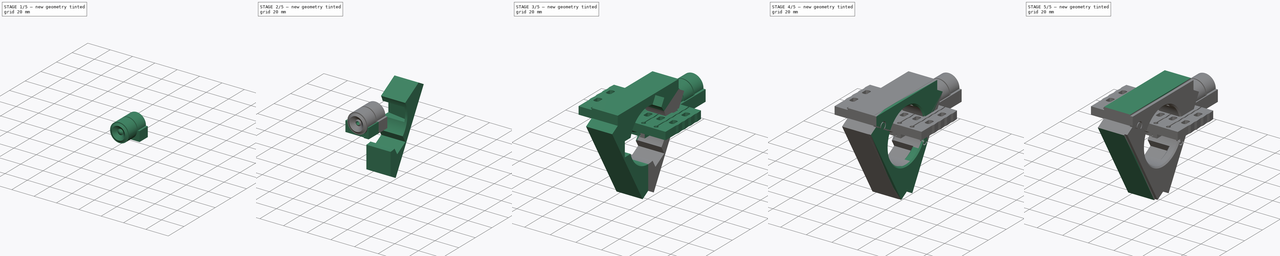
[diagram: build sequence overview — one tinted view per stage of 5, left to right]
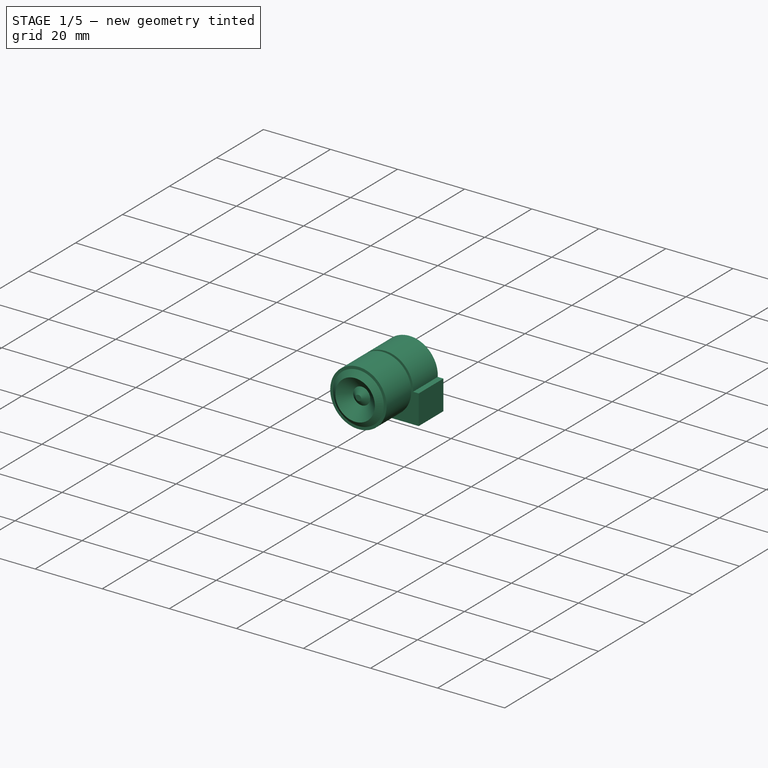
[diagram: stage 1 of 5 — iso view after this stage's code; geometry added in this stage tinted green]
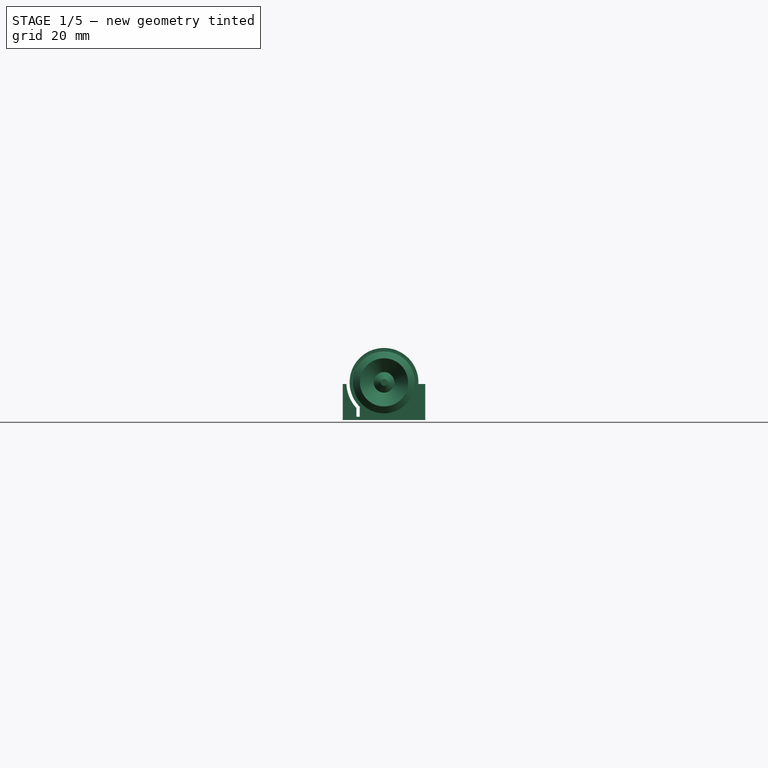
[diagram: stage 1 of 5 — front view after this stage's code; geometry added in this stage tinted green]
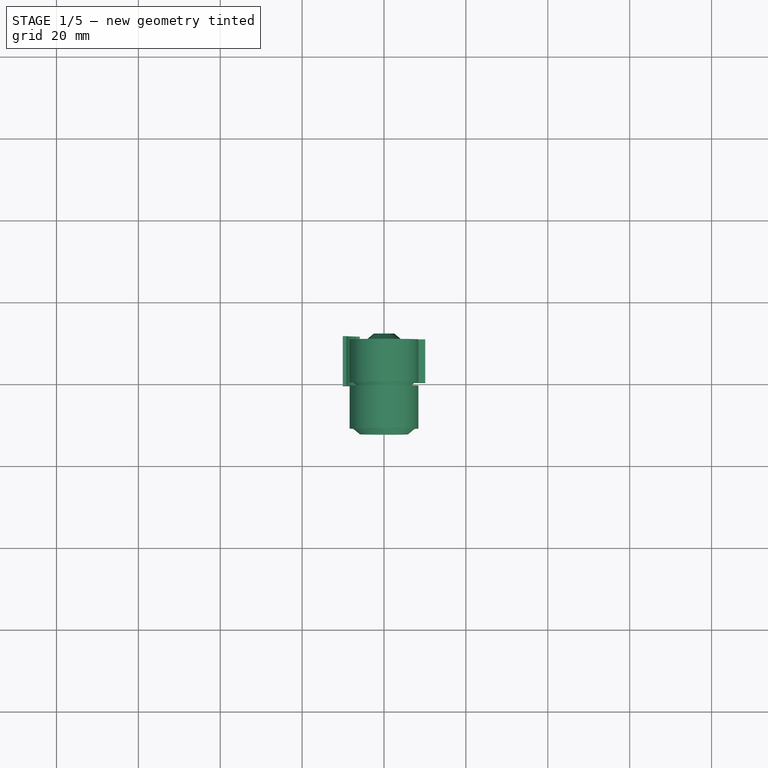
[diagram: stage 1 of 5 — top view after this stage's code; geometry added in this stage tinted green]
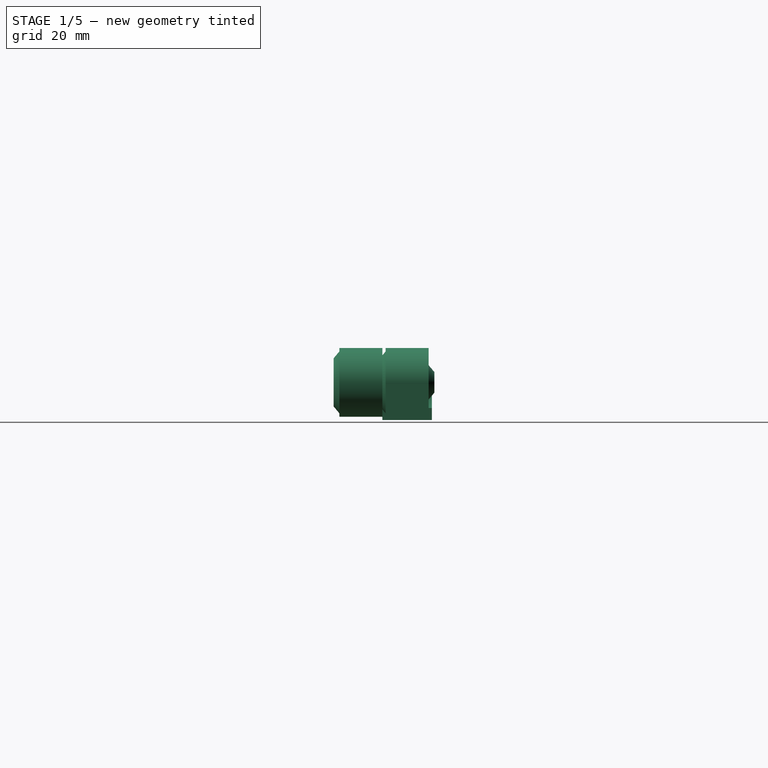
[diagram: stage 1 of 5 — right view after this stage's code; geometry added in this stage tinted green]
FCSTD DOCUMENT  (FreeCAD 0.21R33771 (Git))
Label: BaseHingeModel_ver1.2_Transmission
License: All rights reserved
LicenseURL: http://en.wikipedia.org/wiki/All_rights_reserved
objects: Sketcher::SketchObject×25, PartDesign::CoordinateSystem×12, PartDesign::Body×9, App::Part×9, PartDesign::Pad×8, App::Link×7, PartDesign::Pocket×6, PartDesign::Chamfer×5, PartDesign::SubtractiveLoft×3, PartDesign::PolarPattern×3, PartDesign::Revolution×2, Spreadsheet::Sheet×1, PartDesign::AdditiveLoft×1, PartDesign::Fillet×1, PartDesign::LinearPattern×1, App::DocumentObjectGroup×1
note: 102 computed .brp shape members not serialized (recipe doc carries the construction recipe); baked Part::Feature solids carry a one-line shape summary decoded from their .brp

FEATURE [Spreadsheet::Sheet] Spreadsheet
  cells = A2='mmHingeRadius; B2(mmHingeRadius)==mmCellHight + 2 * mmCellWall + mmAirSpace; D2='TAN(Alpha); E2=1; A3='mmHoleRadius; B3(mmHoleRadius)=1.5; D3='SIN(Betta); E3=0.707106781186547; A4='mmDiskLedge; B4(mmDiskLedge)==B2 / 6 / E2; A5='nHingeHightDiskCnt; B5(nHingeHightDiskCnt)=4; A6='mmDiskHight; B6(mmDiskHight)==mmHingeHight / (nHingeHightDiskCnt - 1) / 2 - mmAirSpace; A7='mmHingeHight; B7(mmHingeHight)==B21; A8='mmLedgeStep; B8(mmLedgeStep)==B2 / 5; A9='mmAirSpace; B9(mmAirSpace)=0.8; A10='mmBodyWidth; B10(mmBodyWidth)==(B2 + B9) * E3 * 2; A11='angWideAngle; B11(angWideAngle)=30; A12='angNarrAngle; B12(angNarrAngle)=45; A13='mmUpperWing; B13(mmUpperWing)==B2 * 4; A14='mmLowerWing; B14(mmLowerWing)==B2 * 2; A15='mmCellWidth; B15(mmCellWidth)=9; C15='Beam Fixator; A16='mmCellHight; B16(mmCellHight)=6; A17='mmCellWall; B17(mmCellWall)=0.8; A18='nCellCnt; B18(nCellCnt)=7; A19='mmSideBeemBase; B19(mmSideBeemBase)=5; A20='mmSideBeemEnd; B20(mmSideBeemEnd)=1; A21='mmBaseWidth; B21(mmBaseWidth)==mmCellWidth * nCellCnt + mmCellWall * (nCellCnt - 1); A22='mmBaseEnd; B22(mmBaseEnd)==mmCellWidth * nCellCnt + mmCellWall * (nCellCnt - 1); A23='mmCommonBaseLenght; B23(mmCommonBaseLenght)==mmFirstCircleArcToBase * 3; A24='mmToothStep; B24(mmToothStep)=7; A25='mmFirstCircleArcToBase; B25(mmFirstCircleArcToBase)=1.5; A26='mmAxisTubeDia; B26(mmAxisTubeDia)==40 + mmAirSpace; A27='mmTwoSideTapeThick; B27(mmTwoSideTapeThick)=0.1; A28='mmPetalHightMax; B28(mmPetalHightMax)==mmAxisTubeDia * 0.15; A29='mmPetalHightMin; B29(mmPetalHightMin)==mmPetalHightMax / 2; A30='mmPetalLength; B30(mmPetalLength)==B32 - B28; A31='mmFixatorThick; B31(mmFixatorThick)==mmPetalHightMax + mmTwoSideTapeThick; A32='mmFixatorHight; B32(mmFixatorHight)==B26 / 2; A33='angPetal; B33(angPetal)=30; A34='mmCellPierceWidth; B34(mmCellPierceWidth)=4; A35='mmPetalWidth; B35(mmPetalWidth)==mmAxisTubeDia * sin(angPetal / 2); A36='mmPetalPocketWidth; B36(mmPetalPocketWidth)==mmPetalWidth + mmAirSpace; A37='mmTemplatePartsConnectorDia; B37(mmTemplatePartsConnectorDia)==mmFixatorThick
FEATURE [Sketcher::SketchObject] Sketch007  label="RightCylinderScatch"
  FullyConstrained = true
  MapMode = 5
  Support = -> [XY_Plane002]
  expr: Constraints[10] = Spreadsheet.mmDiskHight
  expr: Constraints[11] = Spreadsheet.mmLedgeStep
  expr: Constraints[12] = Spreadsheet.mmLedgeStep * 2
  expr: Constraints[13] = Spreadsheet.mmLedgeStep
  expr: Constraints[14] = Spreadsheet.mmLedgeStep / 2
  expr: Constraints[16] = Spreadsheet.mmDiskLedge
  expr: Constraints[20] = Spreadsheet.mmDiskLedge * 2
  expr: Constraints[21] = Spreadsheet.mmDiskLedge
  expr: Constraints[34] = Spreadsheet.mmAirSpace / 2
  expr: Constraints[35] = Spreadsheet.mmLedgeStep / 2
  sketch-geometry (12):
    g0: LineSegment StartX=0 StartY=10.9 StartZ=0 EndX=0.84 EndY=10.9 EndZ=0
    g1: LineSegment StartX=0.84 StartY=10.9 StartZ=0 EndX=2.52 EndY=12.3 EndZ=0
    g2: LineSegment StartX=2.52 StartY=12.3 StartZ=0 EndX=5.88 EndY=9.5 EndZ=0
    g3: LineSegment StartX=5.88 StartY=9.5 StartZ=0 EndX=7.56 EndY=10.9 EndZ=0
    g4: LineSegment StartX=7.56 StartY=10.9 StartZ=0 EndX=8.4 EndY=10.9 EndZ=0
    g5: LineSegment StartX=5.88 StartY=-1 StartZ=0 EndX=2.52 EndY=1.8 EndZ=0
    g6: LineSegment StartX=2.52 StartY=1.8 StartZ=0 EndX=0.84 EndY=0.4 EndZ=0
    g7: LineSegment StartX=0.84 StartY=0.4 StartZ=0 EndX=0 EndY=0.4 EndZ=0
    g8: LineSegment StartX=0 StartY=0.4 StartZ=0 EndX=0 EndY=10.9 EndZ=0
    g9: LineSegment StartX=8.4 StartY=0.4 StartZ=0 EndX=7.56 EndY=0.4 EndZ=0
    g10: LineSegment StartX=7.56 StartY=0.4 StartZ=0 EndX=5.88 EndY=-1 EndZ=0
    g11: LineSegment StartX=8.4 StartY=10.9 StartZ=0 EndX=8.4 EndY=0.4 EndZ=0
  constraints (38):
    c: PointOnObject(g0,g-2)
    c: Horizontal(g0)
    c: Coincident(g0,g1)
    c: Coincident(g1,g2)
    c: Coincident(g2,g3)
    c: Coincident(g3,g4)
    c: Horizontal(g4)
    c: Coincident(g5,g6)
    c: Horizontal(g7)
    c: Coincident(g7,g8)
    c: DistanceY(g7,g0) = 10.5
    c: DistanceX(g0,g1) = 1.68
    c: DistanceX(g1,g2) = 3.36
    c: DistanceX(g2,g3) = 1.68
    c: DistanceX(g3,g4) = 0.84
    c: Coincident(g6,g7)
    c: DistanceY(g0,g1) = 1.4
    c: Equal(g0,g7)
    c: Equal(g1,g6)
    c: Coincident(g0,g8)
    c: DistanceY(g2,g1) = 2.8
    c: DistanceY(g2,g3) = 1.4
    c: Parallel(g2,g5)
    c: Coincident(g9,g10)
    c: Coincident(g10,g5)
    c: Parallel(g3,g10)
    c: Equal(g4,g9)
    c: Horizontal(g9)
    c: Vertical(g2,g5)
    c: Parallel(g1,g6)
    c: Vertical(g8)
    c: Coincident(g11,g4)
    c: Coincident(g11,g9)
    c: Vertical(g11)
    c: DistanceY(g-1,g7) = 0.4
    c: DistanceX(g-1,g0) = 0.84
    c: DistanceX(g-1,g0) = 0
    c: Vertical(g1,g5)
FEATURE [Sketcher::SketchObject] Sketch011  label="LeftCylinderScatch"
  FullyConstrained = true
  MapMode = 5
  Support = -> [XY_Plane]
  expr: Constraints[10] = Spreadsheet.mmLedgeStep
  expr: Constraints[11] = Spreadsheet.mmLedgeStep * 2
  expr: Constraints[12] = Spreadsheet.mmLedgeStep
  expr: Constraints[13] = Spreadsheet.mmLedgeStep / 2
  expr: Constraints[15] = Spreadsheet.mmDiskLedge
  expr: Constraints[19] = Spreadsheet.mmDiskLedge * 2
  expr: Constraints[20] = Spreadsheet.mmDiskLedge
  expr: Constraints[33] = Spreadsheet.mmAirSpace / 2
  expr: Constraints[34] = Spreadsheet.mmLedgeStep / 2
  expr: Constraints[9] = Spreadsheet.mmDiskHight
  sketch-geometry (12):
    g0: LineSegment StartX=0 StartY=-0.4 StartZ=0 EndX=0.84 EndY=-0.4 EndZ=0
    g1: LineSegment StartX=0.84 StartY=-0.4 StartZ=0 EndX=2.52 EndY=1 EndZ=0
    g2: LineSegment StartX=2.52 StartY=1 StartZ=0 EndX=5.88 EndY=-1.8 EndZ=0
    g3: LineSegment StartX=5.88 StartY=-1.8 StartZ=0 EndX=7.56 EndY=-0.4 EndZ=0
    g4: LineSegment StartX=7.56 StartY=-0.4 StartZ=0 EndX=8.4 EndY=-0.4 EndZ=0
    g5: LineSegment StartX=5.88 StartY=-12.3 StartZ=0 EndX=2.52 EndY=-9.5 EndZ=0
    g6: LineSegment StartX=2.52 StartY=-9.5 StartZ=0 EndX=0.84 EndY=-10.9 EndZ=0
    g7: LineSegment StartX=0.84 StartY=-10.9 StartZ=0 EndX=0 EndY=-10.9 EndZ=0
    g8: LineSegment StartX=0 StartY=-10.9 StartZ=0 EndX=0 EndY=-0.4 EndZ=0
    g9: LineSegment StartX=8.4 StartY=-10.9 StartZ=0 EndX=7.56 EndY=-10.9 EndZ=0
    g10: LineSegment StartX=7.56 StartY=-10.9 StartZ=0 EndX=5.88 EndY=-12.3 EndZ=0
    g11: LineSegment StartX=8.4 StartY=-0.4 StartZ=0 EndX=8.4 EndY=-10.9 EndZ=0
  constraints (36):
    c: Horizontal(g0)
    c: Coincident(g0,g1)
    c: Coincident(g1,g2)
    c: Coincident(g2,g3)
    c: Coincident(g3,g4)
    c: Horizontal(g4)
    c: Coincident(g5,g6)
    c: Horizontal(g7)
    c: Coincident(g7,g8)
    c: DistanceY(g7,g0) = 10.5
    c: DistanceX(g0,g1) = 1.68
    c: DistanceX(g1,g2) = 3.36
    c: DistanceX(g2,g3) = 1.68
    c: DistanceX(g3,g4) = 0.84
    c: Coincident(g6,g7)
    c: DistanceY(g0,g1) = 1.4
    c: Equal(g0,g7)
    c: Equal(g1,g6)
    c: Coincident(g0,g8)
    c: DistanceY(g2,g1) = 2.8
    c: DistanceY(g2,g3) = 1.4
    c: Parallel(g2,g5)
    c: Coincident(g9,g10)
    c: Coincident(g10,g5)
    c: Parallel(g3,g10)
    c: Equal(g4,g9)
    c: Horizontal(g9)
    c: Vertical(g2,g5)
    c: Parallel(g1,g6)
    c: Vertical(g8)
    c: Coincident(g11,g4)
    c: Coincident(g11,g9)
    c: Vertical(g11)
    c: DistanceY(g0,g-1) = 0.4
    c: DistanceX(g-1,g0) = 0.84
    c: DistanceX(g-1,g0) = 0
FEATURE [PartDesign::Revolution] Revolution  label="RightCylinderRevolution"
  Angle = 360
  Axis = (0,1,0)
  Base = (0,0,0)
  Profile = -> Sketch007
  ReferenceAxis = -> Sketch007 [V_Axis]
  Reversed = true
FEATURE [PartDesign::Revolution] Revolution004  label="LeftCylinderRevolution"
  Angle = 360
  Axis = (0,1,0)
  Base = (0,0,0)
  Profile = -> Sketch011
  ReferenceAxis = -> Sketch011 [V_Axis]
  Reversed = true
FEATURE [Sketcher::SketchObject] Sketch013  label="RightCylinderAxisHoleScatch"
  AttachmentOffset = pos=(0,0,1) rot=(0,0,1;0rad)
  FullyConstrained = true
  MapMode = 5
  Placement = pos=(0,-1,-2e-16) rot=(1,0,0;1.5708rad)
  Support = -> [XZ_Plane002]
  expr: .AttachmentOffset.Base.z = Spreadsheet.mmDiskLedge - Spreadsheet.mmAirSpace / 2
  expr: Constraints[1] = Spreadsheet.mmHoleRadius * 2
  sketch-geometry (1):
    g0: Circle CenterX=0 CenterY=0 CenterZ=0 NormalX=0 NormalY=0 NormalZ=1 AngleXU=0 Radius=1.5
  constraints (2):
    c: Coincident(g0,g-1)
    c: Diameter(g0) = 3
FEATURE [PartDesign::Pocket] Pocket001  label="RightCylinderAxisHole"
  BaseFeature = -> Revolution
  Direction = (0,1,2e-16)
  Length = 23.8
  Length2 = 5
  Profile = -> Sketch013
  ReferenceAxis = -> Sketch013 [N_Axis]
  Type = 0
  expr: Length = 2 * Spreadsheet.mmDiskHight + 2 * Spreadsheet.mmDiskLedge
FEATURE [Sketcher::SketchObject] Sketch022  label="FixatorBodySketch"
  FullyConstrained = false
  MapMode = 5
  Support = -> [XY_Plane005]
  expr: Constraints[143] = Spreadsheet.mmCellWall
  expr: Constraints[144] = Spreadsheet.mmCellWall
  expr: Constraints[145] = Spreadsheet.mmCellWall
  expr: Constraints[146] = Spreadsheet.mmCellWidth
  expr: Constraints[147] = Spreadsheet.mmCellWidth
  expr: Constraints[148] = Spreadsheet.mmCellWidth
  expr: Constraints[169] = Spreadsheet.mmCommonBaseLenght
  expr: Constraints[170] = Spreadsheet.mmToothStep
  expr: Constraints[171] = Spreadsheet.mmToothStep
  expr: Constraints[172] = Spreadsheet.mmToothStep
  expr: Constraints[173] = Spreadsheet.mmToothStep
  expr: Constraints[174] = Spreadsheet.mmToothStep
  expr: Constraints[183] = Spreadsheet.mmCellWall * 3
  expr: Constraints[184] = Spreadsheet.mmCellWall * 3
  expr: Constraints[185] = Spreadsheet.mmCellWall * 3
  expr: Constraints[186] = Spreadsheet.mmCellWall * 3
  expr: Constraints[425] = Spreadsheet.mmFirstCircleArcToBase
  expr: Constraints[435] = Spreadsheet.mmCellWall / 2
  expr: Constraints[464] = Spreadsheet.mmCellWidth + Spreadsheet.mmCellWall
  expr: Constraints[5] = Spreadsheet.mmBaseWidth
  expr: Constraints[6] = Spreadsheet.mmBaseEnd
  sketch-geometry (155):
    g0: LineSegment StartX=-33.9 StartY=0 StartZ=0 EndX=-33.9 EndY=39.5 EndZ=0
    g1: LineSegment StartX=-33.9 StartY=39.5 StartZ=0 EndX=33.9 EndY=39.5 EndZ=0
    g2: LineSegment StartX=33.9 StartY=39.5 StartZ=0 EndX=33.9 EndY=0 EndZ=0
    g3: LineSegment StartX=-73.1099 StartY=25.5 StartZ=0 EndX=65.6354 EndY=25.5 EndZ=0
    g4: LineSegment StartX=-33.9 StartY=0 StartZ=0 EndX=-33.9 EndY=11.5 EndZ=0
    g5: LineSegment StartX=-33.9 StartY=11.5 StartZ=0 EndX=-34.3 EndY=13.9 EndZ=0
    g6: LineSegment StartX=-34.3 StartY=13.9 StartZ=0 EndX=-33.9 EndY=18.5 EndZ=0
    g7: LineSegment StartX=-33.9 StartY=18.5 StartZ=0 EndX=-34.3 EndY=20.9 EndZ=0
    g8: LineSegment StartX=-34.3 StartY=20.9 StartZ=0 EndX=-33.9 EndY=25.5 EndZ=0
    g9: LineSegment StartX=-33.9 StartY=25.5 StartZ=0 EndX=-34.3 EndY=27.9 EndZ=0
    g10: LineSegment StartX=-34.3 StartY=27.9 StartZ=0 EndX=-33.9 EndY=32.5 EndZ=0
    g11: LineSegment StartX=-33.9 StartY=32.5 StartZ=0 EndX=-34.3 EndY=34.9 EndZ=0
    g12: LineSegment StartX=-34.3 StartY=34.9 StartZ=0 EndX=-33.9 EndY=39.5 EndZ=0
    g13: LineSegment StartX=-33.9 StartY=39.5 StartZ=0 EndX=-24.9 EndY=39.5 EndZ=0
    g14: LineSegment StartX=-24.9 StartY=39.5 StartZ=0 EndX=-25.3 EndY=34.9 EndZ=0
    g15: LineSegment StartX=-25.3 StartY=34.9 StartZ=0 EndX=-24.9 EndY=32.5 EndZ=0
    g16: LineSegment StartX=-24.9 StartY=32.5 StartZ=0 EndX=-25.3 EndY=27.9 EndZ=0
    g17: LineSegment StartX=-25.3 StartY=27.9 StartZ=0 EndX=-24.9 EndY=25.5 EndZ=0
    g18: LineSegment StartX=-24.9 StartY=25.5 StartZ=0 EndX=-25.3 EndY=20.9 EndZ=0
    g19: LineSegment StartX=-25.3 StartY=20.9 StartZ=0 EndX=-24.9 EndY=18.5 EndZ=0
    g20: LineSegment StartX=-24.9 StartY=18.5 StartZ=0 EndX=-25.3 EndY=13.9 EndZ=0
    g21: LineSegment StartX=-25.3 StartY=13.9 StartZ=0 EndX=-24.9 EndY=11.5 EndZ=0
    g22: LineSegment StartX=-24.9 StartY=11.5 StartZ=0 EndX=-24.9 EndY=4.5 EndZ=0
    g23: LineSegment StartX=-24.1 StartY=4.5 StartZ=0 EndX=-24.1 EndY=11.5 EndZ=0
    g24: LineSegment StartX=-24.1 StartY=11.5 StartZ=0 EndX=-24.5 EndY=13.9 EndZ=0
    g25: LineSegment StartX=-24.5 StartY=13.9 StartZ=0 EndX=-24.1 EndY=18.5 EndZ=0
    g26: LineSegment StartX=-24.1 StartY=18.5 StartZ=0 EndX=-24.5 EndY=20.9 EndZ=0
    g27: LineSegment StartX=-24.5 StartY=20.9 StartZ=0 EndX=-24.1 EndY=25.5 EndZ=0
    g28: LineSegment StartX=-24.1 StartY=25.5 StartZ=0 EndX=-24.5 EndY=27.9 EndZ=0
    g29: LineSegment StartX=-24.5 StartY=27.9 StartZ=0 EndX=-24.1 EndY=32.5 EndZ=0
    g30: LineSegment StartX=-24.1 StartY=32.5 StartZ=0 EndX=-24.5 EndY=34.9 EndZ=0
    g31: LineSegment StartX=-24.5 StartY=34.9 StartZ=0 EndX=-24.1 EndY=39.5 EndZ=0
    g32: LineSegment StartX=-24.1 StartY=39.5 StartZ=0 EndX=-15.1 EndY=39.5 EndZ=0
    g33: LineSegment StartX=-15.1 StartY=39.5 StartZ=0 EndX=-15.5 EndY=34.9 EndZ=0
    g34: LineSegment StartX=-15.5 StartY=34.9 StartZ=0 EndX=-15.1 EndY=32.5 EndZ=0
    g35: LineSegment StartX=-15.1 StartY=32.5 StartZ=0 EndX=-15.5 EndY=27.9 EndZ=0
    g36: LineSegment StartX=-15.5 StartY=27.9 StartZ=0 EndX=-15.1 EndY=25.5 EndZ=0
    g37: LineSegment StartX=-15.1 StartY=25.5 StartZ=0 EndX=-15.5 EndY=20.9 EndZ=0
    g38: LineSegment StartX=-15.5 StartY=20.9 StartZ=0 EndX=-15.1 EndY=18.5 EndZ=0
    g39: LineSegment StartX=-15.1 StartY=18.5 StartZ=0 EndX=-15.5 EndY=13.9 EndZ=0
    g40: LineSegment StartX=-15.5 StartY=13.9 StartZ=0 EndX=-15.1 EndY=11.5 EndZ=0
    g41: LineSegment StartX=-15.1 StartY=11.5 StartZ=0 EndX=-15.1 EndY=4.5 EndZ=0
    g42: LineSegment StartX=-14.3 StartY=4.5 StartZ=0 EndX=-14.3 EndY=11.5 EndZ=0
    g43: LineSegment StartX=-14.3 StartY=11.5 StartZ=0 EndX=-14.7 EndY=13.9 EndZ=0
    g44: LineSegment StartX=-14.7 StartY=13.9 StartZ=0 EndX=-14.3 EndY=18.5 EndZ=0
    g45: LineSegment StartX=-14.3 StartY=18.5 StartZ=0 EndX=-14.7 EndY=20.9 EndZ=0
    g46: LineSegment StartX=-14.7 StartY=20.9 StartZ=0 EndX=-14.3 EndY=25.5 EndZ=0
    g47: LineSegment StartX=-14.3 StartY=25.5 StartZ=0 EndX=-14.7 EndY=27.9 EndZ=0
    g48: LineSegment StartX=-14.7 StartY=27.9 StartZ=0 EndX=-14.3 EndY=32.5 EndZ=0
    g49: LineSegment StartX=-14.3 StartY=32.5 StartZ=0 EndX=-14.7 EndY=34.9 EndZ=0
    g50: LineSegment StartX=-14.7 StartY=34.9 StartZ=0 EndX=-14.3 EndY=39.5 EndZ=0
    g51: LineSegment StartX=-14.3 StartY=39.5 StartZ=0 EndX=-5.3 EndY=39.5 EndZ=0
    g52: LineSegment StartX=-5.3 StartY=39.5 StartZ=0 EndX=-5.7 EndY=34.9 EndZ=0
    g53: LineSegment StartX=-5.7 StartY=34.9 StartZ=0 EndX=-5.3 EndY=32.5 EndZ=0
    g54: LineSegment StartX=-5.3 StartY=32.5 StartZ=0 EndX=-5.7 EndY=27.9 EndZ=0
    g55: LineSegment StartX=-5.7 StartY=27.9 StartZ=0 EndX=-5.3 EndY=25.5 EndZ=0
    g56: LineSegment StartX=-5.3 StartY=25.5 StartZ=0 EndX=-5.7 EndY=20.9 EndZ=0
    g57: LineSegment StartX=-5.7 StartY=20.9 StartZ=0 EndX=-5.3 EndY=18.5 EndZ=0
    g58: LineSegment StartX=-5.3 StartY=18.5 StartZ=0 EndX=-5.7 EndY=13.9 EndZ=0
    g59: LineSegment StartX=-5.7 StartY=13.9 StartZ=0 EndX=-5.3 EndY=11.5 EndZ=0
    g60: LineSegment StartX=-5.3 StartY=11.5 StartZ=0 EndX=-5.3 EndY=4.5 EndZ=0
    g61: LineSegment StartX=-4.5 StartY=4.5 StartZ=0 EndX=-4.5 EndY=11.5 EndZ=0
    g62: LineSegment StartX=-4.5 StartY=11.5 StartZ=0 EndX=-4.9 EndY=13.9 EndZ=0
    g63: LineSegment StartX=-4.9 StartY=13.9 StartZ=0 EndX=-4.5 EndY=18.5 EndZ=0
    g64: LineSegment StartX=-4.5 StartY=18.5 StartZ=0 EndX=-4.9 EndY=20.9 EndZ=0
    g65: LineSegment StartX=-4.9 StartY=20.9 StartZ=0 EndX=-4.5 EndY=25.5 EndZ=0
    g66: LineSegment StartX=-4.5 StartY=25.5 StartZ=0 EndX=-4.9 EndY=27.9 EndZ=0
    g67: LineSegment StartX=-4.9 StartY=27.9 StartZ=0 EndX=-4.5 EndY=32.5 EndZ=0
    g68: LineSegment StartX=-4.5 StartY=32.5 StartZ=0 EndX=-4.9 EndY=34.9 EndZ=0
    g69: LineSegment StartX=-4.9 StartY=34.9 StartZ=0 EndX=-4.5 EndY=39.5 EndZ=0
    g70: LineSegment StartX=-4.5 StartY=39.5 StartZ=0 EndX=4.5 EndY=39.5 EndZ=0
    g71: LineSegment StartX=4.5 StartY=39.5 StartZ=0 EndX=4.9 EndY=34.9 EndZ=0
    g72: LineSegment StartX=4.9 StartY=34.9 StartZ=0 EndX=4.5 EndY=32.5 EndZ=0
    g73: LineSegment StartX=4.5 StartY=32.5 StartZ=0 EndX=4.9 EndY=27.9 EndZ=0
    g74: LineSegment StartX=4.9 StartY=27.9 StartZ=0 EndX=4.5 EndY=25.5 EndZ=0
    g75: LineSegment StartX=4.5 StartY=25.5 StartZ=0 EndX=4.9 EndY=20.9 EndZ=0
    g76: LineSegment StartX=4.9 StartY=20.9 StartZ=0 EndX=4.5 EndY=18.5 EndZ=0
    g77: LineSegment StartX=4.5 StartY=18.5 StartZ=0 EndX=4.9 EndY=13.9 EndZ=0
    g78: LineSegment StartX=4.9 StartY=13.9 StartZ=0 EndX=4.5 EndY=11.5 EndZ=0
    g79: LineSegment StartX=4.5 StartY=11.5 StartZ=0 EndX=4.5 EndY=4.5 EndZ=0
    g80: LineSegment StartX=5.3 StartY=4.5 StartZ=0 EndX=5.3 EndY=11.5 EndZ=0
    g81: LineSegment StartX=5.3 StartY=11.5 StartZ=0 EndX=5.7 EndY=13.9 EndZ=0
    g82: LineSegment StartX=5.7 StartY=13.9 StartZ=0 EndX=5.3 EndY=18.5 EndZ=0
    g83: LineSegment StartX=5.3 StartY=18.5 StartZ=0 EndX=5.7 EndY=20.9 EndZ=0
    g84: LineSegment StartX=5.7 StartY=20.9 StartZ=0 EndX=5.3 EndY=25.5 EndZ=0
    g85: LineSegment StartX=5.3 StartY=25.5 StartZ=0 EndX=5.7 EndY=27.9 EndZ=0
    g86: LineSegment StartX=5.7 StartY=27.9 StartZ=0 EndX=5.3 EndY=32.5 EndZ=0
    g87: LineSegment StartX=5.3 StartY=32.5 StartZ=0 EndX=5.7 EndY=34.9 EndZ=0
    g88: LineSegment StartX=5.7 StartY=34.9 StartZ=0 EndX=5.3 EndY=39.5 EndZ=0
    g89: LineSegment StartX=5.3 StartY=39.5 StartZ=0 EndX=14.3 EndY=39.5 EndZ=0
    g90: LineSegment StartX=14.3 StartY=39.5 StartZ=0 EndX=14.7 EndY=34.9 EndZ=0
    g91: LineSegment StartX=14.7 StartY=34.9 StartZ=0 EndX=14.3 EndY=32.5 EndZ=0
    g92: LineSegment StartX=14.3 StartY=32.5 StartZ=0 EndX=14.7 EndY=27.9 EndZ=0
    g93: LineSegment StartX=14.7 StartY=27.9 StartZ=0 EndX=14.3 EndY=25.5 EndZ=0
    g94: LineSegment StartX=14.3 StartY=25.5 StartZ=0 EndX=14.7 EndY=20.9 EndZ=0
    g95: LineSegment StartX=14.7 StartY=20.9 StartZ=0 EndX=14.3 EndY=18.5 EndZ=0
    g96: LineSegment StartX=14.3 StartY=18.5 StartZ=0 EndX=14.7 EndY=13.9 EndZ=0
    g97: LineSegment StartX=14.7 StartY=13.9 StartZ=0 EndX=14.3 EndY=11.5 EndZ=0
    g98: LineSegment StartX=14.3 StartY=11.5 StartZ=0 EndX=14.3 EndY=4.5 EndZ=0
    g99: LineSegment StartX=15.1 StartY=4.5 StartZ=0 EndX=15.1 EndY=11.5 EndZ=0
    g100: LineSegment StartX=15.1 StartY=11.5 StartZ=0 EndX=15.5 EndY=13.9 EndZ=0
    g101: LineSegment StartX=15.5 StartY=13.9 StartZ=0 EndX=15.1 EndY=18.5 EndZ=0
    g102: LineSegment StartX=15.1 StartY=18.5 StartZ=0 EndX=15.5 EndY=20.9 EndZ=0
    g103: LineSegment StartX=15.5 StartY=20.9 StartZ=0 EndX=15.1 EndY=25.5 EndZ=0
    g104: LineSegment StartX=15.1 StartY=25.5 StartZ=0 EndX=15.5 EndY=27.9 EndZ=0
    g105: LineSegment StartX=15.5 StartY=27.9 StartZ=0 EndX=15.1 EndY=32.5 EndZ=0
    g106: LineSegment StartX=15.1 StartY=32.5 StartZ=0 EndX=15.5 EndY=34.9 EndZ=0
    g107: LineSegment StartX=15.5 StartY=34.9 StartZ=0 EndX=15.1 EndY=39.5 EndZ=0
    g108: LineSegment StartX=15.1 StartY=39.5 StartZ=0 EndX=24.1 EndY=39.5 EndZ=0
    g109: LineSegment StartX=24.1 StartY=39.5 StartZ=0 EndX=24.5 EndY=34.9 EndZ=0
    g110: LineSegment StartX=24.5 StartY=34.9 StartZ=0 EndX=24.1 EndY=32.5 EndZ=0
    g111: LineSegment StartX=24.1 StartY=32.5 StartZ=0 EndX=24.5 EndY=27.9 EndZ=0
    g112: LineSegment StartX=24.5 StartY=27.9 StartZ=0 EndX=24.1 EndY=25.5 EndZ=0
    g113: LineSegment StartX=24.1 StartY=25.5 StartZ=0 EndX=24.5 EndY=20.9 EndZ=0
    g114: LineSegment StartX=24.5 StartY=20.9 StartZ=0 EndX=24.1 EndY=18.5 EndZ=0
    g115: LineSegment StartX=24.1 StartY=18.5 StartZ=0 EndX=24.5 EndY=13.9 EndZ=0
    g116: LineSegment StartX=24.5 StartY=13.9 StartZ=0 EndX=24.1 EndY=11.5 EndZ=0
    g117: LineSegment StartX=24.1 StartY=11.5 StartZ=0 EndX=24.1 EndY=4.5 EndZ=0
    g118: LineSegment StartX=24.9 StartY=4.5 StartZ=0 EndX=24.9 EndY=11.5 EndZ=0
    g119: LineSegment StartX=24.9 StartY=11.5 StartZ=0 EndX=25.3 EndY=13.9 EndZ=0
    g120: LineSegment StartX=25.3 StartY=13.9 StartZ=0 EndX=24.9 EndY=18.5 EndZ=0
    g121: LineSegment StartX=24.9 StartY=18.5 StartZ=0 EndX=25.3 EndY=20.9 EndZ=0
    g122: LineSegment StartX=25.3 StartY=20.9 StartZ=0 EndX=24.9 EndY=25.5 EndZ=0
    g123: LineSegment StartX=24.9 StartY=25.5 StartZ=0 EndX=25.3 EndY=27.9 EndZ=0
    g124: LineSegment StartX=25.3 StartY=27.9 StartZ=0 EndX=24.9 EndY=32.5 EndZ=0
    g125: LineSegment StartX=24.9 StartY=32.5 StartZ=0 EndX=25.3 EndY=34.9 EndZ=0
    g126: LineSegment StartX=25.3 StartY=34.9 StartZ=0 EndX=24.9 EndY=39.5 EndZ=0
    g127: LineSegment StartX=24.9 StartY=39.5 StartZ=0 EndX=33.9 EndY=39.5 EndZ=0
    g128: LineSegment StartX=33.9 StartY=39.5 StartZ=0 EndX=34.3 EndY=34.9 EndZ=0
    g129: LineSegment StartX=34.3 StartY=34.9 StartZ=0 EndX=33.9 EndY=32.5 EndZ=0
    g130: LineSegment StartX=33.9 StartY=32.5 StartZ=0 EndX=34.3 EndY=27.9 EndZ=0
    g131: LineSegment StartX=34.3 StartY=27.9 StartZ=0 EndX=33.9 EndY=25.5 EndZ=0
    g132: LineSegment StartX=33.9 StartY=25.5 StartZ=0 EndX=34.3 EndY=20.9 EndZ=0
    g133: LineSegment StartX=34.3 StartY=20.9 StartZ=0 EndX=33.9 EndY=18.5 EndZ=0
    g134: LineSegment StartX=33.9 StartY=18.5 StartZ=0 EndX=34.3 EndY=13.9 EndZ=0
    g135: LineSegment StartX=34.3 StartY=13.9 StartZ=0 EndX=33.9 EndY=11.5 EndZ=0
    g136: LineSegment StartX=33.9 StartY=11.5 StartZ=0 EndX=33.9 EndY=0 EndZ=0
    g137: LineSegment StartX=33.9 StartY=0 StartZ=0 EndX=-33.9 EndY=0 EndZ=0
    g138: LineSegment StartX=-73.1099 StartY=18.5 StartZ=0 EndX=65.6354 EndY=18.5 EndZ=0
    g139: LineSegment StartX=-73.1099 StartY=34.9 StartZ=0 EndX=65.6354 EndY=34.9 EndZ=0
    g140: LineSegment StartX=-73.1099 StartY=32.5 StartZ=0 EndX=65.6354 EndY=32.5 EndZ=0
    g141: LineSegment StartX=-73.1099 StartY=27.9 StartZ=0 EndX=65.6354 EndY=27.9 EndZ=0
    g142: LineSegment StartX=-73.1099 StartY=20.9 StartZ=0 EndX=65.6354 EndY=20.9 EndZ=0
    g143: LineSegment StartX=-73.1099 StartY=11.5 StartZ=0 EndX=65.6354 EndY=11.5 EndZ=0
    g144: LineSegment StartX=-34.3 StartY=8.59208 StartZ=0 EndX=-34.3 EndY=49.4346 EndZ=0
    g145: LineSegment StartX=-73.1099 StartY=13.9 StartZ=0 EndX=65.6354 EndY=13.9 EndZ=0
    g146: LineSegment StartX=-33.9 StartY=0 StartZ=0 EndX=33.9 EndY=0 EndZ=0
    g147: LineSegment StartX=-73.1099 StartY=4.5 StartZ=0 EndX=65.6354 EndY=4.5 EndZ=0
    g148: ArcOfCircle CenterX=-24.5 CenterY=3 CenterZ=0 NormalX=0 NormalY=0 NormalZ=1 AngleXU=0 Radius=1.55242 StartAngle=1.8314 EndAngle=7.59338
    g149: ArcOfCircle CenterX=-14.7 CenterY=3 CenterZ=0 NormalX=0 NormalY=0 NormalZ=1 AngleXU=0 Radius=1.55242 StartAngle=1.8314 EndAngle=7.59338
    g150: ArcOfCircle CenterX=-4.9 CenterY=3 CenterZ=0 NormalX=0 NormalY=0 NormalZ=1 AngleXU=0 Radius=1.55242 StartAngle=1.8314 EndAngle=7.59338
    g151: ArcOfCircle CenterX=4.9 CenterY=3 CenterZ=0 NormalX=0 NormalY=0 NormalZ=1 AngleXU=0 Radius=1.55242 StartAngle=1.8314 EndAngle=7.59338
    g152: ArcOfCircle CenterX=14.7 CenterY=3 CenterZ=0 NormalX=0 NormalY=0 NormalZ=1 AngleXU=0 Radius=1.55242 StartAngle=1.8314 EndAngle=7.59338
    g153: ArcOfCircle CenterX=24.5 CenterY=3 CenterZ=0 NormalX=0 NormalY=0 NormalZ=1 AngleXU=0 Radius=1.55242 StartAngle=1.8314 EndAngle=7.59338
    g154: LineSegment StartX=-73.1099 StartY=3 StartZ=0 EndX=65.6354 EndY=3 EndZ=0
  constraints (469):
    c: Coincident(g0,g1)
    c: Coincident(g1,g2)
    c: Horizontal(g3)
    c: Symmetric(g0,g2,g-2)
    c: Symmetric(g1,g0,g-2)
    c: DistanceX(g0,g2) = 67.8
    c: DistanceX(g0,g1) = 67.8
    c: Coincident(g4,g5)
    c: Coincident(g5,g6)
    c: Coincident(g6,g7)
    c: Coincident(g7,g8)
    c: Coincident(g8,g9)
    c: Coincident(g9,g10)
    c: Coincident(g10,g11)
    c: Coincident(g11,g12)
    c: Coincident(g12,g13)
    c: Horizontal(g13)
    c: Coincident(g13,g14)
    c: Coincident(g14,g15)
    c: Coincident(g15,g16)
    c: Coincident(g16,g17)
    c: Coincident(g17,g18)
    c: Coincident(g18,g19)
    c: Coincident(g19,g20)
    c: Coincident(g20,g21)
    c: Coincident(g21,g22)
    c: Coincident(g23,g24)
    c: Coincident(g24,g25)
    c: Coincident(g25,g26)
    c: Coincident(g26,g27)
    c: Coincident(g27,g28)
    c: Coincident(g28,g29)
    c: Coincident(g29,g30)
    c: Coincident(g30,g31)
    c: Coincident(g31,g32)
    c: Horizontal(g32)
    c: Coincident(g32,g33)
    c: Coincident(g33,g34)
    c: Coincident(g34,g35)
    c: Coincident(g35,g36)
    c: Coincident(g36,g37)
    c: Coincident(g37,g38)
    c: Coincident(g38,g39)
    c: Coincident(g39,g40)
    c: Coincident(g40,g41)
    c: Coincident(g42,g43)
    c: Coincident(g43,g44)
    c: Coincident(g44,g45)
    c: Coincident(g45,g46)
    c: Coincident(g46,g47)
    c: Coincident(g47,g48)
    c: Coincident(g48,g49)
    c: Coincident(g49,g50)
    c: Coincident(g50,g51)
    c: Coincident(g51,g52)
    c: Coincident(g52,g53)
    c: Coincident(g53,g54)
    c: Coincident(g54,g55)
    c: Coincident(g55,g56)
    c: Coincident(g56,g57)
    c: Coincident(g57,g58)
    c: Coincident(g58,g59)
    c: Coincident(g59,g60)
    c: Coincident(g61,g62)
    c: Coincident(g62,g63)
    c: Coincident(g63,g64)
    c: Coincident(g64,g65)
    c: Coincident(g65,g66)
    c: Coincident(g66,g67)
    c: Coincident(g67,g68)
    c: Coincident(g68,g69)
    c: Coincident(g69,g70)
    c: Coincident(g70,g71)
    c: Coincident(g71,g72)
    c: Coincident(g72,g73)
    c: Coincident(g73,g74)
    c: Coincident(g74,g75)
    c: Coincident(g75,g76)
    c: Coincident(g76,g77)
    c: Coincident(g77,g78)
    c: Coincident(g78,g79)
    c: Coincident(g80,g81)
    c: Coincident(g81,g82)
    c: Coincident(g82,g83)
    c: Coincident(g83,g84)
    c: Coincident(g84,g85)
    c: Coincident(g85,g86)
    c: Coincident(g86,g87)
    c: Coincident(g87,g88)
    c: Coincident(g88,g89)
    c: Horizontal(g89)
    c: Coincident(g89,g90)
    c: Coincident(g90,g91)
    c: Coincident(g91,g92)
    c: Coincident(g92,g93)
    c: Coincident(g93,g94)
    c: Coincident(g94,g95)
    c: Coincident(g95,g96)
    c: Coincident(g96,g97)
    c: Coincident(g97,g98)
    c: Coincident(g99,g100)
    c: Coincident(g100,g101)
    c: Coincident(g101,g102)
    c: Coincident(g102,g103)
    c: Coincident(g103,g104)
    c: Coincident(g104,g105)
    c: Coincident(g105,g106)
    c: Coincident(g106,g107)
    c: Coincident(g107,g108)
    c: Coincident(g108,g109)
    c: Coincident(g109,g110)
    c: Coincident(g110,g111)
    c: Coincident(g111,g112)
    c: Coincident(g112,g113)
    c: Coincident(g113,g114)
    c: Coincident(g114,g115)
    c: Coincident(g115,g116)
    c: Coincident(g116,g117)
    c: Coincident(g118,g119)
    c: Coincident(g119,g120)
    c: Coincident(g120,g121)
    c: Coincident(g121,g122)
    c: Coincident(g122,g123)
    c: Coincident(g123,g124)
    c: Coincident(g124,g125)
    c: Coincident(g125,g126)
    c: Coincident(g126,g127)
    c: Coincident(g127,g128)
    c: Coincident(g128,g129)
    c: Coincident(g129,g130)
    c: Coincident(g130,g131)
    c: Coincident(g131,g132)
    c: Coincident(g132,g133)
    c: Coincident(g133,g134)
    c: Coincident(g134,g135)
    c: Coincident(g135,g136)
    c: Symmetric(g69,g70,g-2)
    c: Symmetric(g51,g88,g-2)
    c: Symmetric(g50,g89,g-2)
    c: Symmetric(g32,g107,g-2)
    c: Symmetric(g31,g108,g-2)
    c: Symmetric(g13,g126,g-2)
    c: Symmetric(g12,g127,g-2)
    c: DistanceX(g13,g31) = 0.8
    c: DistanceX(g32,g50) = 0.8
    c: DistanceX(g51,g69) = 0.8
    c: DistanceX(g13,g13) = 9
    c: DistanceX(g32,g32) = 9
    c: DistanceX(g51,g51) = 9
    c: Horizontal(g139)
    c: Horizontal(g140)
    c: Horizontal(g141)
    c: Horizontal(g142)
    c: Horizontal(g143)
    c: Vertical(g8,g6)
    c: Vertical(g6,g4)
    c: Vertical(g144)
    c: Horizontal(g145)
    c: Coincident(g146,g0)
    c: Coincident(g146,g2)
    c: Coincident(g0,g137)
    c: Coincident(g2,g137)
    c: Horizontal(g147)
    c: PointOnObject(g11,g139)
    c: PointOnObject(g11,g144)
    c: PointOnObject(g10,g140)
    c: PointOnObject(g9,g144)
    c: PointOnObject(g7,g142)
    c: Horizontal(g138)
    c: DistanceY(g137,g147) = 4.5
    c: DistanceY(g147,g143) = 7
    c: DistanceY(g143,g138) = 7
    c: DistanceY(g138,g3) = 7
    c: DistanceY(g3,g140) = 7
    c: DistanceY(g140,g0) = 7
    c: Vertical(g139,g140)
    c: Vertical(g140,g141)
    c: Vertical(g141,g3)
    c: Vertical(g3,g142)
    c: Vertical(g142,g138)
    c: Vertical(g138,g145)
    c: Vertical(g145,g143)
    c: Vertical(g143,g147)
    c: DistanceY(g143,g145) = 2.4
    c: DistanceY(g138,g142) = 2.4
    c: DistanceY(g3,g141) = 2.4
    c: DistanceY(g140,g139) = 2.4
    c: Parallel(g12,g14)
    c: Parallel(g11,g15)
    c: PointOnObject(g14,g139)
    c: PointOnObject(g30,g139)
    c: PointOnObject(g15,g140)
    c: PointOnObject(g29,g140)
    c: Parallel(g14,g31)
    c: PointOnObject(g16,g141)
    c: PointOnObject(g28,g141)
    c: PointOnObject(g17,g3)
    c: PointOnObject(g27,g3)
    c: PointOnObject(g18,g142)
    c: PointOnObject(g26,g142)
    c: PointOnObject(g19,g138)
    c: PointOnObject(g25,g138)
    c: PointOnObject(g20,g145)
    c: PointOnObject(g24,g145)
    c: PointOnObject(g21,g143)
    c: PointOnObject(g23,g143)
    c: PointOnObject(g22,g147)
    c: PointOnObject(g23,g147)
    c: PointOnObject(g33,g139)
    c: PointOnObject(g49,g139)
    c: PointOnObject(g52,g139)
    c: PointOnObject(g71,g139)
    c: PointOnObject(g87,g139)
    c: PointOnObject(g90,g139)
    c: PointOnObject(g106,g139)
    c: PointOnObject(g109,g139)
    c: PointOnObject(g125,g139)
    c: PointOnObject(g128,g139)
    c: PointOnObject(g34,g140)
    c: PointOnObject(g48,g140)
    c: PointOnObject(g53,g140)
    c: PointOnObject(g67,g140)
    c: PointOnObject(g72,g140)
    c: PointOnObject(g86,g140)
    c: PointOnObject(g91,g140)
    c: PointOnObject(g105,g140)
    c: PointOnObject(g110,g140)
    c: PointOnObject(g124,g140)
    c: PointOnObject(g129,g140)
    c: Parallel(g33,g50)
    c: Parallel(g52,g69)
    c: Parallel(g71,g88)
    c: Parallel(g71,g90)
    c: Parallel(g90,g107)
    c: Parallel(g71,g109)
    c: Parallel(g109,g126)
    c: Parallel(g126,g128)
    c: Symmetric(g71,g68,g-2)
    c: Symmetric(g72,g67,g-2)
    c: Vertical(g139,g140)
    c: Vertical(g140,g141)
    c: Vertical(g141,g3)
    c: Vertical(g3,g142)
    c: Vertical(g142,g138)
    c: Vertical(g138,g145)
    c: Vertical(g145,g143)
    c: Vertical(g143,g147)
    c: Parallel(g34,g49)
    c: Parallel(g49,g53)
    c: Parallel(g53,g68)
    c: Parallel(g35,g48)
    c: Parallel(g48,g54)
    c: Parallel(g54,g67)
    c: PointOnObject(g35,g141)
    c: PointOnObject(g47,g141)
    c: PointOnObject(g54,g141)
    c: PointOnObject(g66,g141)
    c: PointOnObject(g85,g141)
    c: PointOnObject(g92,g141)
    c: PointOnObject(g104,g141)
    c: PointOnObject(g111,g141)
    c: PointOnObject(g123,g141)
    c: PointOnObject(g130,g141)
    c: Symmetric(g66,g73,g-2)
    c: Symmetric(g65,g74,g-2)
    c: PointOnObject(g36,g3)
    c: PointOnObject(g46,g3)
    c: PointOnObject(g55,g3)
    c: PointOnObject(g65,g3)
    c: Parallel(g36,g47)
    c: Parallel(g47,g55)
    c: Parallel(g55,g66)
    c: Symmetric(g64,g75,g-2)
    c: Symmetric(g79,g61,g-2)
    c: Symmetric(g61,g78,g-2)
    c: Symmetric(g62,g77,g-2)
    c: Symmetric(g63,g76,g-2)
    c: Parallel(g37,g46)
    c: Parallel(g46,g56)
    c: Parallel(g56,g65)
    c: PointOnObject(g37,g142)
    c: PointOnObject(g45,g142)
    c: PointOnObject(g56,g142)
    c: PointOnObject(g64,g142)
    c: PointOnObject(g38,g138)
    c: PointOnObject(g44,g138)
    c: PointOnObject(g57,g138)
    c: PointOnObject(g63,g138)
    c: Parallel(g38,g45)
    c: Parallel(g45,g57)
    c: Parallel(g57,g64)
    c: PointOnObject(g39,g145)
    c: PointOnObject(g43,g145)
    c: PointOnObject(g58,g145)
    c: PointOnObject(g62,g145)
    c: Parallel(g39,g44)
    c: Parallel(g44,g58)
    c: Parallel(g58,g63)
    c: Parallel(g40,g43)
    c: Parallel(g43,g59)
    c: Parallel(g59,g62)
    c: PointOnObject(g40,g143)
    c: PointOnObject(g42,g143)
    c: PointOnObject(g59,g143)
    c: PointOnObject(g61,g143)
    c: PointOnObject(g41,g147)
    c: PointOnObject(g42,g147)
    c: PointOnObject(g60,g147)
    c: PointOnObject(g61,g147)
    c: Parallel(g41,g42)
    c: Parallel(g42,g60)
    c: Parallel(g60,g61)
    c: PointOnObject(g80,g147)
    c: PointOnObject(g98,g147)
    c: PointOnObject(g99,g147)
    c: PointOnObject(g117,g147)
    c: PointOnObject(g118,g147)
    c: PointOnObject(g80,g143)
    c: PointOnObject(g97,g143)
    c: PointOnObject(g99,g143)
    c: PointOnObject(g116,g143)
    c: PointOnObject(g118,g143)
    c: PointOnObject(g135,g143)
    c: Parallel(g79,g80)
    c: Parallel(g80,g98)
    c: Parallel(g98,g99)
    c: Parallel(g99,g117)
    c: Parallel(g117,g118)
    c: Parallel(g118,g136)
    c: Parallel(g72,g87)
    c: Parallel(g87,g91)
    c: Parallel(g91,g106)
    c: Parallel(g106,g110)
    c: Parallel(g110,g125)
    c: Parallel(g125,g129)
    c: Parallel(g73,g86)
    c: Parallel(g86,g92)
    c: Parallel(g92,g105)
    c: Parallel(g105,g111)
    c: Parallel(g111,g124)
    c: Parallel(g124,g130)
    c: PointOnObject(g84,g3)
    c: PointOnObject(g93,g3)
    c: PointOnObject(g103,g3)
    c: PointOnObject(g112,g3)
    c: PointOnObject(g122,g3)
    c: PointOnObject(g131,g3)
    c: Parallel(g74,g85)
    c: Parallel(g85,g93)
    c: Parallel(g93,g104)
    c: Parallel(g104,g112)
    c: Parallel(g112,g123)
    c: Parallel(g123,g131)
    c: PointOnObject(g83,g142)
    c: PointOnObject(g94,g142)
    c: PointOnObject(g102,g142)
    c: PointOnObject(g113,g142)
    c: PointOnObject(g121,g142)
    c: PointOnObject(g132,g142)
    c: Parallel(g75,g84)
    c: Parallel(g84,g94)
    c: Parallel(g94,g103)
    c: Parallel(g103,g113)
    c: Parallel(g113,g122)
    c: Parallel(g122,g132)
    c: PointOnObject(g82,g138)
    c: PointOnObject(g95,g138)
    c: PointOnObject(g101,g138)
    c: PointOnObject(g114,g138)
    c: PointOnObject(g120,g138)
    c: PointOnObject(g133,g138)
    c: PointOnObject(g81,g145)
    c: PointOnObject(g96,g145)
    c: PointOnObject(g100,g145)
    c: PointOnObject(g115,g145)
    c: PointOnObject(g119,g145)
    c: PointOnObject(g134,g145)
    c: Parallel(g76,g83)
    c: Parallel(g83,g95)
    c: Parallel(g95,g102)
    c: Parallel(g102,g114)
    c: Parallel(g114,g121)
    c: Parallel(g121,g133)
    c: Parallel(g77,g82)
    c: Parallel(g82,g96)
    c: Parallel(g96,g101)
    c: Parallel(g101,g115)
    c: Parallel(g115,g120)
    c: Parallel(g120,g134)
    c: Parallel(g78,g81)
    c: Parallel(g81,g97)
    c: Parallel(g97,g100)
    c: Parallel(g100,g116)
    c: Parallel(g116,g119)
    c: Parallel(g119,g135)
    c: DistanceY(g137,g-1) = 0
    c: PointOnObject(g148,g154)
    c: PointOnObject(g149,g154)
    c: PointOnObject(g150,g154)
    c: PointOnObject(g151,g154)
    c: PointOnObject(g152,g154)
    c: PointOnObject(g153,g154)
    c: PointOnObject(g22,g148)
    c: PointOnObject(g23,g148)
    c: PointOnObject(g41,g149)
    c: PointOnObject(g42,g149)
    c: PointOnObject(g60,g150)
    c: PointOnObject(g61,g150)
    c: PointOnObject(g79,g151)
    c: PointOnObject(g98,g152)
    c: PointOnObject(g99,g152)
    c: PointOnObject(g117,g153)
    c: PointOnObject(g118,g153)
    c: PointOnObject(g153,g147)
    c: PointOnObject(g153,g147)
    c: PointOnObject(g152,g147)
    c: PointOnObject(g152,g147)
    c: PointOnObject(g151,g147)
    c: PointOnObject(g151,g147)
    c: PointOnObject(g150,g147)
    c: PointOnObject(g150,g147)
    c: PointOnObject(g149,g147)
    c: PointOnObject(g149,g147)
    c: PointOnObject(g148,g147)
    c: PointOnObject(g148,g147)
    c: DistanceY(g154,g147) = 1.5
    c: Vertical(g147,g154)
    c: Vertical(g147,g154)
    c: Coincident(g136,g137)
    c: Coincident(g4,g137)
    c: Coincident(g0,g12)
    c: PointOnObject(g31,g1)
    c: PointOnObject(g50,g1)
    c: PointOnObject(g69,g1)
    c: PointOnObject(g6,g0)
    c: DistanceX(g144,g12) = 0.4
    c: PointOnObject(g9,g141)
    c: PointOnObject(g8,g3)
    c: PointOnObject(g7,g144)
    c: PointOnObject(g6,g138)
    c: PointOnObject(g5,g145)
    c: PointOnObject(g5,g144)
    c: PointOnObject(g4,g143)
    c: Parallel(g12,g33)
    c: Parallel(g12,g52)
    c: Parallel(g15,g30)
    c: Parallel(g11,g34)
    c: PointOnObject(g10,g0)
    c: Parallel(g16,g29)
    c: Parallel(g10,g16)
    c: Parallel(g10,g35)
    c: Parallel(g9,g17)
    c: Parallel(g17,g28)
    c: Parallel(g9,g36)
    c: Parallel(g18,g27)
    c: Parallel(g8,g18)
    c: Parallel(g8,g37)
    c: Parallel(g7,g19)
    c: Parallel(g19,g26)
    c: Parallel(g6,g20)
    c: Parallel(g20,g25)
    c: Parallel(g7,g38)
    c: Parallel(g6,g39)
    c: Symmetric(g150,g151,g-2)
    c: DistanceX(g150,g151) = 9.8
    c: Parallel(g23,g22)
    c: Parallel(g21,g24)
    c: Parallel(g5,g21)
    c: Parallel(g41,g23)
FEATURE [Sketcher::SketchObject] Sketch023  label="RightCylinderConnectedWingScatch"
  AttachmentOffset = pos=(0,0,-0.4) rot=(0,0,1;0rad)
  FullyConstrained = false
  MapMode = 5
  Placement = pos=(0,0.4,1e-16) rot=(1,0,0;1.5708rad)
  Support = -> [XZ_Plane002]
  expr: .AttachmentOffset.Base.z = -Spreadsheet.mmAirSpace / 2
  expr: Constraints[11] = Spreadsheet.mmHingeRadius + Spreadsheet.mmAirSpace
  expr: Constraints[17] = Spreadsheet.mmHingeRadius + Spreadsheet.mmAirSpace
  expr: Constraints[4] = Spreadsheet.mmHingeRadius * 2
  expr: Constraints[7] = Spreadsheet.mmHingeRadius / 5
  expr: Constraints[8] = Spreadsheet.mmAirSpace / 2
  sketch-geometry (9):
    g0: LineSegment StartX=-5.9397 StartY=-9.2 StartZ=0 EndX=10.0705 EndY=-9.2 EndZ=0
    g1: LineSegment StartX=10.0705 StartY=-9.2 StartZ=0 EndX=10.0705 EndY=-0.4 EndZ=0
    g2: LineSegment StartX=10.0705 StartY=-0.4 StartZ=0 EndX=8.39047 EndY=-0.4 EndZ=0
    g3: ArcOfCircle CenterX=0 CenterY=9e-16 CenterZ=0 NormalX=0 NormalY=0 NormalZ=1 AngleXU=0 Radius=8.4 StartAngle=3.92699 EndAngle=6.23555
    g4: LineSegment StartX=-10.8949 StartY=25.2528 StartZ=0 EndX=-10.8949 EndY=-29.472 EndZ=0
    g5: LineSegment StartX=0 StartY=0 StartZ=0 EndX=8.39047 EndY=-0.4 EndZ=0
    g6: LineSegment StartX=-5.9397 StartY=-5.9397 StartZ=0 EndX=-5.9397 EndY=-9.2 EndZ=0
    g7: LineSegment StartX=0 StartY=9e-16 StartZ=0 EndX=-20.2547 EndY=-20.2547 EndZ=0
    g8: LineSegment StartX=-5.9397 StartY=-5.9397 StartZ=0 EndX=-5.9397 EndY=-9.42884 EndZ=0
  constraints (24):
    c: Coincident(g0,g1)
    c: Vertical(g1)
    c: Horizontal(g2)
    c: Vertical(g4)
    c: Diameter(g3) = 16.8
    c: Coincident(g2,g1)
    c: Coincident(g5,g2)
    c: DistanceX(g2,g2) = 1.68
    c: DistanceY(g1,g-1) = 0.4
    c: Coincident(g3,g6)
    c: Coincident(g3,g2)
    c: DistanceY(g0,g3) = 9.2
    c: PointOnObject(g3,g7)
    c: Coincident(g7,g3)
    c: Angle(g-2,g7) = 2.35619
    c: PointOnObject(g3,g-2)
    c: Horizontal(g0)
    c: DistanceY(g0,g-1) = 9.2
    c: Vertical(g8)
    c: PointOnObject(g8,g7)
    c: PointOnObject(g8,g3)
    c: PointOnObject(g6,g8)
    c: PointOnObject(g0,g8)
    c: PointOnObject(g6,g0)
FEATURE [PartDesign::Pad] Pad008  label="RightCylinderConnectedWingBody"
  BaseFeature = -> Pocket001
  Direction = (0,-1,-2e-16)
  Length = 10.5
  Length2 = 10
  Profile = -> Sketch023
  ReferenceAxis = -> Sketch023 [N_Axis]
  Reversed = true
  Type = 0
  expr: Length = Spreadsheet.mmDiskHight
FEATURE [Sketcher::SketchObject] Sketch024  label="RightCylinderDisconnectedWingScatch"
  AttachmentOffset = pos=(0,0,0.4) rot=(0,0,1;0rad)
  FullyConstrained = false
  MapMode = 5
  Placement = pos=(0,-0.4,-1e-16) rot=(1,0,0;1.5708rad)
  Support = -> [XZ_Plane002]
  expr: .AttachmentOffset.Base.z = Spreadsheet.mmAirSpace / 2
  expr: Constraints[10] = Spreadsheet.mmHingeRadius * 6 / 5
  expr: Constraints[14] = (Spreadsheet.mmHingeRadius + Spreadsheet.mmAirSpace) * 2
  expr: Constraints[18] = Spreadsheet.mmAirSpace
  expr: Constraints[26] = Spreadsheet.mmAirSpace
  expr: Constraints[29] = Spreadsheet.mmHingeRadius * 2
  expr: Constraints[2] = (Spreadsheet.mmHingeRadius + Spreadsheet.mmAirSpace) * 2
  expr: Constraints[8] = Spreadsheet.mmHingeRadius + Spreadsheet.mmAirSpace
  expr: Constraints[9] = Spreadsheet.mmAirSpace / 2
  sketch-geometry (12):
    g0: Circle CenterX=0 CenterY=0 CenterZ=0 NormalX=0 NormalY=0 NormalZ=1 AngleXU=0 Radius=9.2
    g1: LineSegment StartX=-5.9397 StartY=-5.9397 StartZ=0 EndX=-5.9397 EndY=-9.59435 EndZ=0
    g2: LineSegment StartX=-10.08 StartY=-0.4 StartZ=0 EndX=-10.08 EndY=-9.2 EndZ=0
    g3: LineSegment StartX=-10.08 StartY=-9.2 StartZ=0 EndX=-5.9397 EndY=-9.2 EndZ=0
    g4: LineSegment StartX=-6.7397 StartY=-8.4 StartZ=0 EndX=-6.7397 EndY=-6.26231 EndZ=0
    g5: LineSegment StartX=-9.1913 StartY=-0.4 StartZ=0 EndX=-10.08 EndY=-0.4 EndZ=0
    g6: LineSegment StartX=0 StartY=0 StartZ=0 EndX=-7.18968 EndY=-7.18968 EndZ=0
    g7: ArcOfCircle CenterX=0 CenterY=0 CenterZ=0 NormalX=0 NormalY=0 NormalZ=1 AngleXU=0 Radius=9.2 StartAngle=3.18508 EndAngle=3.89029
    g8: LineSegment StartX=-6.7397 StartY=-9.55843 StartZ=0 EndX=-6.7397 EndY=-4.9559 EndZ=0
    g9: LineSegment StartX=-6.7397 StartY=-8.4 StartZ=0 EndX=-5.9397 EndY=-8.4 EndZ=0
    g10: LineSegment StartX=-5.9397 StartY=-8.4 StartZ=0 EndX=-5.9397 EndY=-9.2 EndZ=0
    g11: Circle CenterX=0 CenterY=0 CenterZ=0 NormalX=0 NormalY=0 NormalZ=1 AngleXU=0 Radius=8.4
  constraints (33):
    c: Coincident(g0,g-1)
    c: Vertical(g1)
    c: Diameter(g0) = 18.4
    c: Vertical(g2)
    c: Coincident(g2,g3)
    c: Horizontal(g3)
    c: Coincident(g5,g2)
    c: Horizontal(g5)
    c: DistanceY(g2,g-1) = 9.2
    c: DistanceY(g2,g-1) = 0.4
    c: DistanceX(g2,g0) = 10.08
    c: Coincident(g6,g0)
    c: Angle(g-2,g6) = 2.35619
    c: Coincident(g7,g0)
    c: Diameter(g7) = 18.4
    c: Coincident(g7,g4)
    c: Coincident(g7,g5)
    c: Vertical(g8)
    c: DistanceX(g8,g1) = 0.8
    c: Coincident(g4,g9)
    c: PointOnObject(g9,g1)
    c: Horizontal(g9)
    c: Coincident(g9,g10)
    c: PointOnObject(g10,g1)
    c: PointOnObject(g3,g1)
    c: PointOnObject(g10,g3)
    c: DistanceY(g3,g9) = 0.8
    c: PointOnObject(g4,g8)
    c: Coincident(g11,g7)
    c: Diameter(g11) = 16.8
    c: PointOnObject(g1,g11)
    c: PointOnObject(g1,g6)
    c: PointOnObject(g4,g8)
FEATURE [PartDesign::Pad] Pad009  label="RightCylinderDisconnectedWingBody"
  BaseFeature = -> Pad008
  Direction = (0,-1,-2e-16)
  Length = 12.1
  Length2 = 10
  Profile = -> Sketch024
  ReferenceAxis = -> Sketch024 [N_Axis]
  Reversed = true
  Type = 0
  expr: Length = Spreadsheet.mmDiskHight + Spreadsheet.mmAirSpace * 2
FEATURE [PartDesign::Body] Body  label="LeftCylinder"
  Group = -> [Sketch011,Revolution004,Sketch014,Pocket002,Sketch025,Pad010,Sketch026,Pad011,Sketch046,Pocket004]
  Origin = -> Origin
  Tip = -> Pocket004
FEATURE [Sketcher::SketchObject] Sketch047  label="RightCylinderSeparatorScatch"
  AttachmentOffset = pos=(0,0,0.4) rot=(0,0,1;0rad)
  FullyConstrained = false
  MapMode = 5
  Placement = pos=(0,-0.4,-1e-16) rot=(1,0,0;1.5708rad)
  Support = -> [XZ_Plane002]
  expr: .AttachmentOffset.Base.z = Spreadsheet.mmAirSpace / 2
  expr: Constraints[15] = Spreadsheet.mmAirSpace
  expr: Constraints[17] = Spreadsheet.mmHingeRadius * 2
  expr: Constraints[2] = (Spreadsheet.mmHingeRadius + Spreadsheet.mmAirSpace) * 2
  expr: Constraints[4] = Spreadsheet.mmHingeRadius + Spreadsheet.mmAirSpace
  expr: Constraints[8] = Spreadsheet.mmAirSpace
  sketch-geometry (9):
    g0: Circle CenterX=0 CenterY=0 CenterZ=0 NormalX=0 NormalY=0 NormalZ=1 AngleXU=0 Radius=9.2
    g1: LineSegment StartX=-5.9397 StartY=-5.9397 StartZ=0 EndX=-5.9397 EndY=-9.59435 EndZ=0
    g2: LineSegment StartX=-6.7397 StartY=-9.2 StartZ=0 EndX=-5.9397 EndY=-9.2 EndZ=0
    g3: LineSegment StartX=0 StartY=0 StartZ=0 EndX=-7.19425 EndY=-7.19425 EndZ=0
    g4: LineSegment StartX=-6.7397 StartY=-9.55843 StartZ=0 EndX=-6.7397 EndY=-4.9559 EndZ=0
    g5: LineSegment StartX=-6.7397 StartY=-8.4 StartZ=0 EndX=-5.9397 EndY=-8.4 EndZ=0
    g6: LineSegment StartX=-5.9397 StartY=-8.4 StartZ=0 EndX=-5.9397 EndY=-9.2 EndZ=0
    g7: Circle CenterX=0 CenterY=0 CenterZ=0 NormalX=0 NormalY=0 NormalZ=1 AngleXU=0 Radius=8.4
    g8: LineSegment StartX=-6.7397 StartY=-8.4 StartZ=0 EndX=-6.7397 EndY=-9.2 EndZ=0
  constraints (24):
    c: Coincident(g0,g-1)
    c: Vertical(g1)
    c: Diameter(g0) = 18.4
    c: Horizontal(g2)
    c: DistanceY(g2,g-1) = 9.2
    c: Coincident(g3,g0)
    c: Angle(g-2,g3) = 2.35619
    c: Vertical(g4)
    c: DistanceX(g4,g1) = 0.8
    c: PointOnObject(g5,g1)
    c: Horizontal(g5)
    c: Coincident(g5,g6)
    c: PointOnObject(g6,g1)
    c: PointOnObject(g2,g1)
    c: PointOnObject(g6,g2)
    c: DistanceY(g2,g5) = 0.8
    c: PointOnObject(g5,g4)
    c: Diameter(g7) = 16.8
    c: PointOnObject(g1,g7)
    c: PointOnObject(g1,g3)
    c: PointOnObject(g2,g4)
    c: Coincident(g8,g5)
    c: Coincident(g8,g2)
    c: Coincident(g0,g7)
FEATURE [PartDesign::Pocket] Pocket005  label="RightCylinderSeparator"
  BaseFeature = -> Pad009
  Direction = (0,1,2e-16)
  Length = 10.5
  Length2 = 5
  Profile = -> Sketch047
  ReferenceAxis = -> Sketch047 [N_Axis]
  Type = 0
  expr: Length = Spreadsheet.mmDiskHight
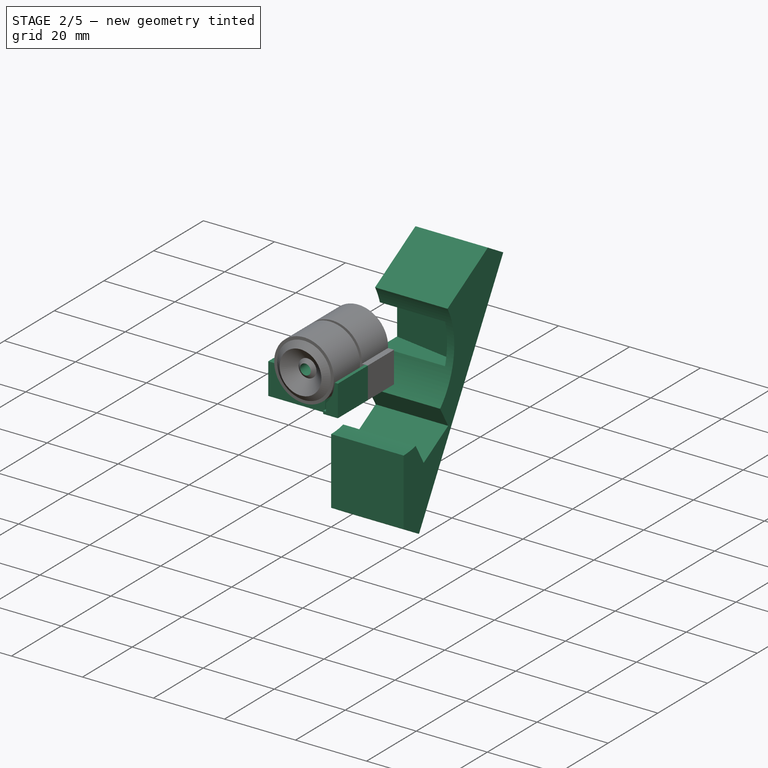
[diagram: stage 2 of 5 — iso view after this stage's code; geometry added in this stage tinted green]
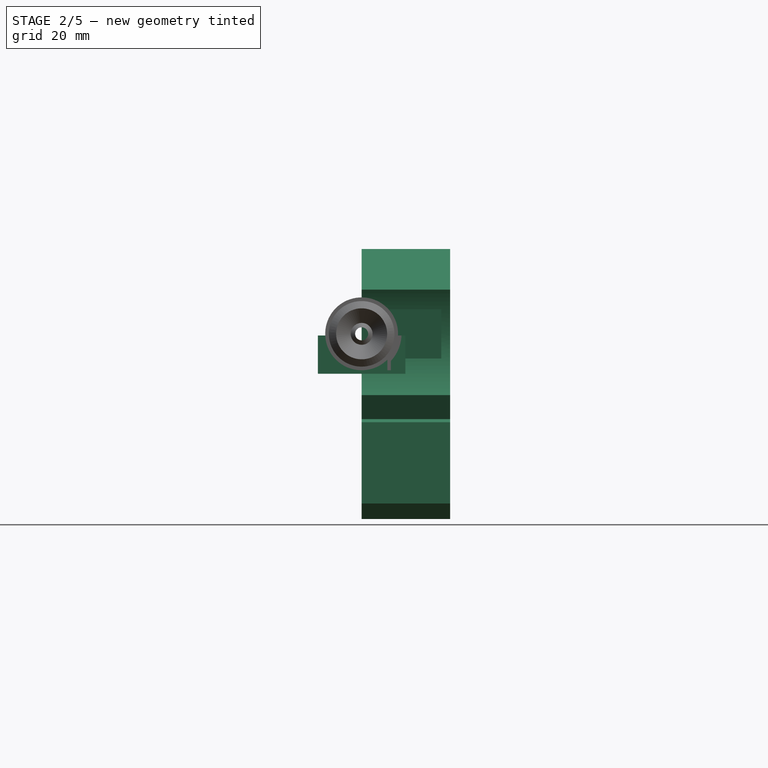
[diagram: stage 2 of 5 — front view after this stage's code; geometry added in this stage tinted green]
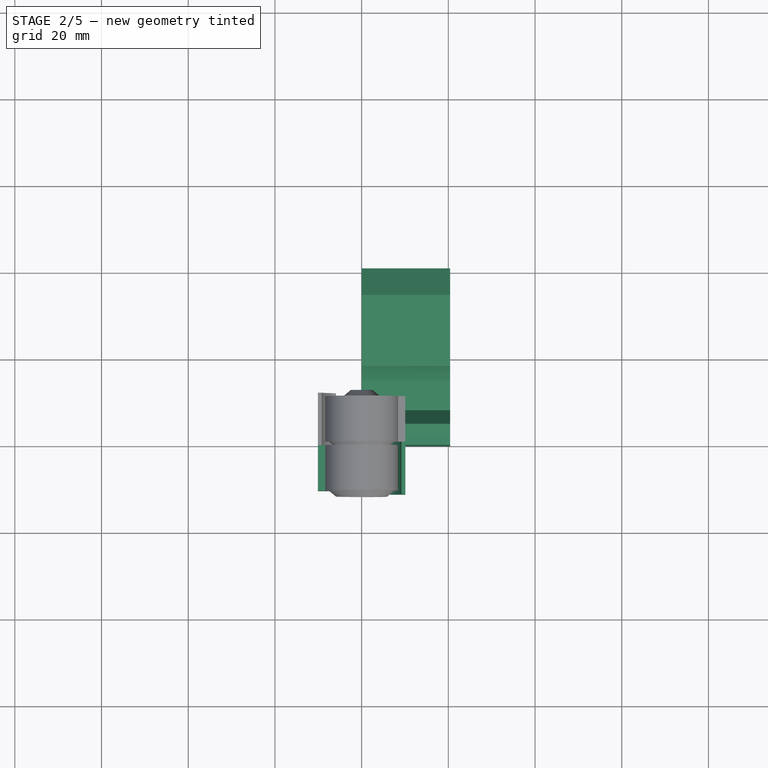
[diagram: stage 2 of 5 — top view after this stage's code; geometry added in this stage tinted green]
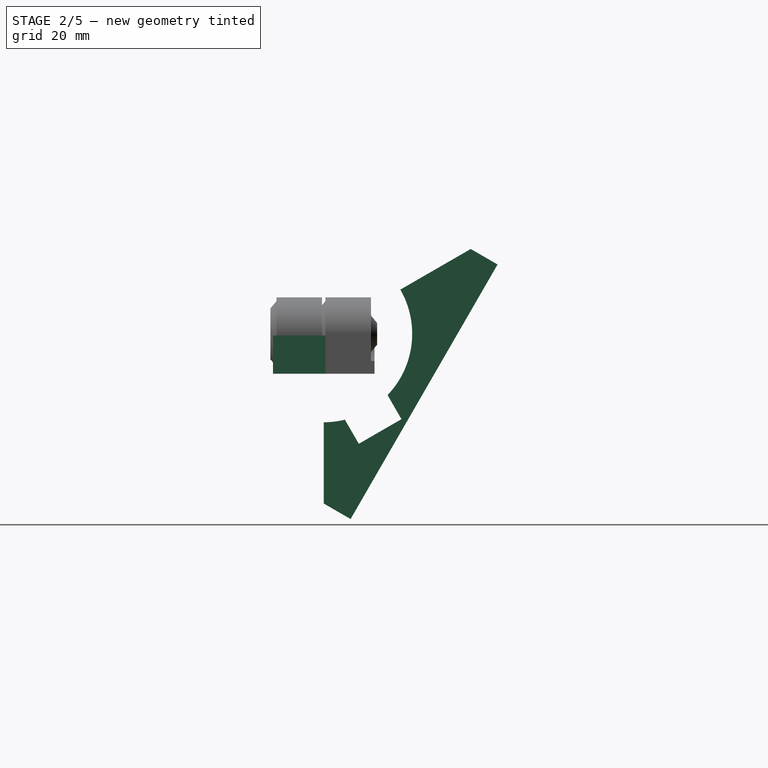
[diagram: stage 2 of 5 — right view after this stage's code; geometry added in this stage tinted green]
FEATURE [Sketcher::SketchObject] Sketch014  label="LeftCylinderAxisHoleScatch"
  AttachmentOffset = pos=(0,0,-1) rot=(0,0,1;0rad)
  FullyConstrained = true
  MapMode = 5
  Placement = pos=(0,1,2e-16) rot=(1,0,0;1.5708rad)
  Support = -> [XZ_Plane]
  expr: .AttachmentOffset.Base.z = -(Spreadsheet.mmDiskLedge - Spreadsheet.mmAirSpace / 2)
  expr: Constraints[1] = Spreadsheet.mmHoleRadius * 2
  sketch-geometry (1):
    g0: Circle CenterX=0 CenterY=0 CenterZ=0 NormalX=0 NormalY=0 NormalZ=1 AngleXU=0 Radius=1.5
  constraints (2):
    c: Coincident(g0,g-1)
    c: Diameter(g0) = 3
FEATURE [PartDesign::Pocket] Pocket002  label="LeftCylinderAxisHole"
  BaseFeature = -> Revolution004
  Direction = (0,1,2e-16)
  Length = 21
  Length2 = 5
  Profile = -> Sketch014
  ReferenceAxis = -> Sketch014 [N_Axis]
  Reversed = true
  Type = 0
  expr: Length = Spreadsheet.mmDiskHight * 2
FEATURE [Sketcher::SketchObject] Sketch025  label="LeftCylinderConnectedWingScatch"
  AttachmentOffset = pos=(0,0,0.4) rot=(0,0,1;0rad)
  FullyConstrained = false
  MapMode = 5
  Placement = pos=(0,-0.4,-1e-16) rot=(1,0,0;1.5708rad)
  Support = -> [XZ_Plane]
  expr: .AttachmentOffset.Base.z = Spreadsheet.mmAirSpace / 2
  expr: Constraints[10] = Spreadsheet.mmAirSpace / 2
  expr: Constraints[11] = Spreadsheet.mmHingeRadius + Spreadsheet.mmAirSpace
  expr: Constraints[15] = Spreadsheet.mmHingeRadius * 2
  expr: Constraints[2] = Spreadsheet.mmHingeRadius * 2
  expr: Constraints[9] = Spreadsheet.mmHingeRadius * 6 / 5
  sketch-geometry (8):
    g0: LineSegment StartX=0 StartY=0 StartZ=0 EndX=8.8497 EndY=-8.8497 EndZ=0
    g1: Circle CenterX=0 CenterY=0 CenterZ=0 NormalX=0 NormalY=0 NormalZ=1 AngleXU=0 Radius=8.4
    g2: LineSegment StartX=-10.08 StartY=-0.4 StartZ=0 EndX=-10.08 EndY=-9.2 EndZ=0
    g3: LineSegment StartX=-10.08 StartY=-9.2 StartZ=0 EndX=5.9397 EndY=-9.2 EndZ=0
    g4: LineSegment StartX=5.9397 StartY=-9.2 StartZ=0 EndX=5.9397 EndY=-5.9397 EndZ=0
    g5: LineSegment StartX=-8.39047 StartY=-0.4 StartZ=0 EndX=-10.08 EndY=-0.4 EndZ=0
    g6: ArcOfCircle CenterX=0 CenterY=0 CenterZ=0 NormalX=0 NormalY=0 NormalZ=1 AngleXU=0 Radius=8.4 StartAngle=3.18923 EndAngle=5.49779
    g7: LineSegment StartX=5.9397 StartY=-5.9397 StartZ=0 EndX=5.9397 EndY=-9.58153 EndZ=0
  constraints (24):
    c: Coincident(g0,g-1)
    c: Coincident(g1,g0)
    c: Diameter(g1) = 16.8
    c: Vertical(g2)
    c: Coincident(g2,g3)
    c: Horizontal(g3)
    c: Coincident(g5,g2)
    c: Horizontal(g5)
    c: PointOnObject(g5,g1)
    c: DistanceX(g2,g0) = 10.08
    c: DistanceY(g2,g-1) = 0.4
    c: DistanceY(g2,g-1) = 9.2
    c: Angle(g0,g-2) = 2.35619
    c: PointOnObject(g4,g0)
    c: Coincident(g6,g0)
    c: Diameter(g6) = 16.8
    c: Coincident(g6,g5)
    c: Coincident(g6,g4)
    c: Vertical(g7)
    c: PointOnObject(g7,g1)
    c: PointOnObject(g7,g0)
    c: PointOnObject(g4,g7)
    c: PointOnObject(g3,g7)
    c: PointOnObject(g4,g3)
FEATURE [PartDesign::Pad] Pad010  label="LeftCylinderConnectedWingBody"
  BaseFeature = -> Pocket002
  Direction = (0,-1,-2e-16)
  Length = 10.5
  Length2 = 10
  Profile = -> Sketch025
  ReferenceAxis = -> Sketch025 [N_Axis]
  Type = 0
  expr: Length = Spreadsheet.mmDiskHight
FEATURE [Sketcher::SketchObject] Sketch026  label="LeftCylinderDisconnectedWingScatch"
  AttachmentOffset = pos=(0,0,-0.4) rot=(0,0,1;0rad)
  FullyConstrained = false
  MapMode = 5
  Placement = pos=(0,0.4,1e-16) rot=(1,0,0;1.5708rad)
  Support = -> [XZ_Plane]
  expr: .AttachmentOffset.Base.z = -Spreadsheet.mmAirSpace / 2
  expr: Constraints[10] = Spreadsheet.mmHingeRadius + Spreadsheet.mmAirSpace
  expr: Constraints[16] = Spreadsheet.mmAirSpace
  expr: Constraints[18] = (Spreadsheet.mmHingeRadius + Spreadsheet.mmAirSpace) * 2
  expr: Constraints[26] = Spreadsheet.mmAirSpace
  expr: Constraints[29] = Spreadsheet.mmHingeRadius * 2
  expr: Constraints[2] = (Spreadsheet.mmHingeRadius + Spreadsheet.mmAirSpace) * 2
  expr: Constraints[8] = Spreadsheet.mmAirSpace / 2
  expr: Constraints[9] = Spreadsheet.mmHingeRadius / 5 * 6
  sketch-geometry (12):
    g0: LineSegment StartX=0 StartY=0 StartZ=0 EndX=9.28474 EndY=-9.28474 EndZ=0
    g1: ArcOfCircle CenterX=0 CenterY=0 CenterZ=0 NormalX=0 NormalY=0 NormalZ=1 AngleXU=0 Radius=9.2 StartAngle=5.53449 EndAngle=6.23969
    g2: LineSegment StartX=9.1913 StartY=-0.4 StartZ=0 EndX=10.08 EndY=-0.4 EndZ=0
    g3: LineSegment StartX=10.08 StartY=-0.4 StartZ=0 EndX=10.08 EndY=-9.2 EndZ=0
    g4: LineSegment StartX=10.08 StartY=-9.2 StartZ=0 EndX=5.9397 EndY=-9.2 EndZ=0
    g5: LineSegment StartX=6.7397 StartY=-8.4 StartZ=0 EndX=6.7397 EndY=-6.26231 EndZ=0
    g6: LineSegment StartX=5.9397 StartY=-5.9397 StartZ=0 EndX=5.9397 EndY=-9.17966 EndZ=0
    g7: LineSegment StartX=6.7397 StartY=-5.451 StartZ=0 EndX=6.7397 EndY=-9.15329 EndZ=0
    g8: Circle CenterX=0 CenterY=0 CenterZ=0 NormalX=0 NormalY=0 NormalZ=1 AngleXU=0 Radius=9.2
    g9: LineSegment StartX=6.7397 StartY=-8.4 StartZ=0 EndX=5.9397 EndY=-8.4 EndZ=0
    g10: LineSegment StartX=5.9397 StartY=-8.4 StartZ=0 EndX=5.9397 EndY=-9.2 EndZ=0
    g11: Circle CenterX=0 CenterY=0 CenterZ=0 NormalX=0 NormalY=0 NormalZ=1 AngleXU=0 Radius=8.4
  constraints (33):
    c: Coincident(g0,g-1)
    c: Coincident(g1,g0)
    c: Diameter(g1) = 18.4
    c: Horizontal(g2)
    c: Coincident(g2,g3)
    c: Vertical(g3)
    c: Coincident(g3,g4)
    c: Horizontal(g4)
    c: DistanceY(g2,g-1) = 0.4
    c: DistanceX(g-1,g2) = 10.08
    c: DistanceY(g3,g-1) = 9.2
    c: Angle(g0,g-2) = 2.35619
    c: Coincident(g1,g2)
    c: Coincident(g1,g5)
    c: Vertical(g6)
    c: Vertical(g7)
    c: DistanceX(g6,g7) = 0.8
    c: Coincident(g8,g1)
    c: Diameter(g8) = 18.4
    c: PointOnObject(g5,g7)
    c: Coincident(g5,g9)
    c: PointOnObject(g9,g6)
    c: Horizontal(g9)
    c: Coincident(g9,g10)
    c: PointOnObject(g10,g6)
    c: PointOnObject(g4,g6)
    c: DistanceY(g4,g9) = 0.8
    c: PointOnObject(g10,g4)
    c: Coincident(g11,g1)
    c: Diameter(g11) = 16.8
    c: PointOnObject(g6,g11)
    c: PointOnObject(g6,g0)
    c: PointOnObject(g1,g7)
FEATURE [PartDesign::Pad] Pad011  label="LeftCylinderDisconnectedWingBody"
  BaseFeature = -> Pad010
  Direction = (0,-1,-2e-16)
  Length = 12.1
  Length2 = 10
  Profile = -> Sketch026
  ReferenceAxis = -> Sketch026 [N_Axis]
  Type = 0
  expr: Length = Spreadsheet.mmDiskHight + Spreadsheet.mmAirSpace * 2
FEATURE [PartDesign::Body] Body008  label="PetalBodyPart"
  Group = -> [Sketch029,Sketch030,AdditiveLoft,Chamfer]
  Origin = -> Origin015
  Tip = -> Chamfer
FEATURE [App::Part] PitelPart  label="PetalPart"
  Group = -> [LCS_Origin,Body008]
  Origin = -> Origin014
FEATURE [Sketcher::SketchObject] Sketch027  label="CommonFixatorScatch"
  FullyConstrained = false
  MapMode = 5
  Placement = pos=(0,0,0) rot=(0.57735,0.57735,0.57735;2.0944rad)
  Support = -> [YZ_Plane013]
  expr: Constraints[0] = Spreadsheet.mmAxisTubeDia + 2 * Spreadsheet.mmFixatorThick + 2 * Spreadsheet.mmTwoSideTapeThick
  expr: Constraints[17] = Spreadsheet.mmAxisTubeDia / 2 + Spreadsheet.mmPetalHightMax + Spreadsheet.mmTwoSideTapeThick
  expr: Constraints[18] = Spreadsheet.mmAxisTubeDia / 2 + Spreadsheet.mmPetalHightMax + Spreadsheet.mmTwoSideTapeThick
  expr: Constraints[32] = Spreadsheet.mmPetalPocketWidth
  expr: Constraints[33] = Spreadsheet.mmBaseWidth
  expr: Constraints[3] = Spreadsheet.mmAxisTubeDia
  sketch-geometry (14):
    g0: Circle CenterX=0 CenterY=0 CenterZ=0 NormalX=0 NormalY=0 NormalZ=1 AngleXU=0 Radius=26.72
    g1: LineSegment StartX=0 StartY=0 StartZ=0 EndX=32.2586 EndY=18.6245 EndZ=0
    g2: ArcOfCircle CenterX=0 CenterY=0 CenterZ=0 NormalX=0 NormalY=0 NormalZ=1 AngleXU=0 Radius=20.4 StartAngle=5.32461 EndAngle=6.86682
    g3: LineSegment StartX=0 StartY=-20.4 StartZ=0 EndX=0 EndY=-39.1443 EndZ=0
    g4: LineSegment StartX=0 StartY=-39.1443 StartZ=0 EndX=6.1902 EndY=-42.7183 EndZ=0
    g5: LineSegment StartX=6.1902 StartY=-42.7183 StartZ=0 EndX=40.0902 EndY=15.9983 EndZ=0
    g6: LineSegment StartX=40.0902 StartY=15.9983 StartZ=0 EndX=33.9 EndY=19.5722 EndZ=0
    g7: LineSegment StartX=33.9 StartY=19.5722 StartZ=0 EndX=17.6669 EndY=10.2 EndZ=0
    g8: LineSegment StartX=14.7156 StartY=-14.1284 StartZ=0 EndX=17.9224 EndY=-19.6828 EndZ=0
    g9: LineSegment StartX=17.9224 StartY=-19.6828 StartZ=0 EndX=8.08455 EndY=-25.3627 EndZ=0
    g10: LineSegment StartX=8.08455 StartY=-25.3627 StartZ=0 EndX=4.87772 EndY=-19.8083 EndZ=0
    g11: ArcOfCircle CenterX=0 CenterY=0 CenterZ=0 NormalX=0 NormalY=0 NormalZ=1 AngleXU=0 Radius=20.4 StartAngle=4.71239 EndAngle=4.95383
    g12: ArcOfCircle CenterX=0 CenterY=0 CenterZ=0 NormalX=0 NormalY=0 NormalZ=1 AngleXU=0 Radius=20.4 StartAngle=5.51814 EndAngle=6.80678
    g13: LineSegment StartX=0 StartY=0 StartZ=0 EndX=18.7992 EndY=-32.5612 EndZ=0
  constraints (39):
    c: Diameter(g0) = 53.44
    c: Angle(g-1,g1) = 0.523599
    c: PointOnObject(g6,g1)
    c: Diameter(g2) = 40.8
    c: Vertical(g3)
    c: Coincident(g3,g4)
    c: Coincident(g4,g5)
    c: Coincident(g5,g6)
    c: Coincident(g6,g7)
    c: Coincident(g8,g9)
    c: Coincident(g9,g10)
    c: Equal(g2,g11)
    c: Coincident(g2,g11)
    c: PointOnObject(g3,g-2)
    c: Parallel(g4,g6)
    c: Perpendicular(g5,g4)
    c: Tangent(g0,g5)
    c: Distance(g8,g11) = 26.62
    c: Distance(g9,g11) = 26.62
    c: Coincident(g11,g12)
    c: PointOnObject(g7,g1)
    c: Coincident(g10,g11)
    c: Coincident(g11,g3)
    c: Coincident(g12,g8)
    c: PointOnObject(g12,g1)
    c: Coincident(g12,g7)
    c: PointOnObject(g7,g1)
    c: Perpendicular(g10,g9)
    c: Perpendicular(g9,g8)
    c: Coincident(g13,g11)
    c: Angle(g13,g-1) = 1.0472
    c: Symmetric(g10,g8,g13)
    c: Distance(g10,g8) = 11.3598
    c: Distance(g4,g5) = 67.8
    c: Equal(g4,g6)
    c: Equal(g3,g7)
    c: Coincident(g-1,g0)
    c: Coincident(g0,g11)
    c: Coincident(g11,g1)
FEATURE [PartDesign::Pad] Pad012  label="AxisFixatorBodyPad"
  Direction = (1,-2e-16,3e-16)
  Length = 20.4
  Length2 = 10
  Placement = pos=(0,0,0) rot=(0.57735,0.57735,0.57735;2.0944rad)
  Profile = -> Sketch027
  ReferenceAxis = -> Sketch027 [N_Axis]
  Type = 0
  expr: Length = Spreadsheet.mmFixatorHight
FEATURE [Sketcher::SketchObject] Sketch031  label="MaxPetalBase001"
  FullyConstrained = false
  MapMode = 5
  Placement = pos=(0,0,0) rot=(0.57735,0.57735,0.57735;2.0944rad)
  Support = -> [YZ_Plane013]
  expr: Constraints[0] = Spreadsheet.mmAxisTubeDia + 2 * Spreadsheet.mmFixatorThick
  expr: Constraints[10] = Spreadsheet.mmAxisTubeDia
  expr: Constraints[12] = Spreadsheet.mmPetalPocketWidth
  expr: Constraints[1] = Spreadsheet.mmAxisTubeDia
  expr: Constraints[6] = Spreadsheet.mmAxisTubeDia / 2 + Spreadsheet.mmPetalHightMax
  sketch-geometry (7):
    g0: Circle CenterX=0 CenterY=2.5e-15 CenterZ=0 NormalX=0 NormalY=0 NormalZ=1 AngleXU=0 Radius=39.855
    g1: Circle CenterX=0 CenterY=2.5e-15 CenterZ=0 NormalX=0 NormalY=0 NormalZ=1 AngleXU=0 Radius=26.62
    g2: ArcOfCircle CenterX=0 CenterY=2.5e-15 CenterZ=0 NormalX=0 NormalY=0 NormalZ=1 AngleXU=0 Radius=20.4 StartAngle=5.86056 EndAngle=6.76902
    g3: LineSegment StartX=19.5933 StartY=5.67991 StartZ=0 EndX=26.52 EndY=5.67991 EndZ=0
    g4: LineSegment StartX=26.52 StartY=5.67991 StartZ=0 EndX=26.52 EndY=-5.67991 EndZ=0
    g5: LineSegment StartX=26.52 StartY=-5.67991 StartZ=0 EndX=19.5933 EndY=-5.67991 EndZ=0
    g6: ArcOfCircle CenterX=0 CenterY=2.5e-15 CenterZ=0 NormalX=0 NormalY=0 NormalZ=1 AngleXU=0 Radius=20.4 StartAngle=6.00103 EndAngle=6.56534
  constraints (17):
    c: Diameter(g1) = 53.24
    c: Diameter(g2) = 40.8
    c: Coincident(g3,g4)
    c: Coincident(g4,g5)
    c: Coincident(g0,g2)
    c: Vertical(g4)
    c: DistanceX(g-1,g4) = 26.52
    c: Coincident(g6,g0)
    c: Coincident(g6,g3)
    c: Coincident(g6,g5)
    c: Diameter(g6) = 40.8
    c: Symmetric(g3,g5,g-1)
    c: DistanceY(g5,g3) = 11.3598
    c: Horizontal(g3)
    c: Horizontal(g5)
    c: Coincident(g1,g6)
    c: Coincident(g-1,g6)
FEATURE [Sketcher::SketchObject] Sketch032  label="MinPetalBase001"
  AttachmentOffset = pos=(0,0,18.36) rot=(0,0,1;0rad)
  FullyConstrained = false
  MapMode = 5
  Placement = pos=(18.36,-4.1e-15,4.1e-15) rot=(0.57735,0.57735,0.57735;2.0944rad)
  Support = -> [YZ_Plane013]
  expr: .AttachmentOffset.Base.z = Spreadsheet.mmFixatorHight * 0.9
  expr: Constraints[0] = Spreadsheet.mmAxisTubeDia + 2 * Spreadsheet.mmFixatorThick
  expr: Constraints[10] = Spreadsheet.mmAxisTubeDia
  expr: Constraints[12] = Spreadsheet.mmPetalPocketWidth
  expr: Constraints[1] = Spreadsheet.mmAxisTubeDia
  expr: Constraints[6] = Spreadsheet.mmAxisTubeDia / 2 + Spreadsheet.mmPetalHightMin
  sketch-geometry (7):
    g0: Circle CenterX=0 CenterY=2e-15 CenterZ=0 NormalX=0 NormalY=0 NormalZ=1 AngleXU=0 Radius=39.844
    g1: Circle CenterX=0 CenterY=2e-15 CenterZ=0 NormalX=0 NormalY=0 NormalZ=1 AngleXU=0 Radius=26.62
    g2: ArcOfCircle CenterX=0 CenterY=2e-15 CenterZ=0 NormalX=0 NormalY=0 NormalZ=1 AngleXU=0 Radius=20.4 StartAngle=3.89517 EndAngle=6.7757
    g3: LineSegment StartX=19.5933 StartY=5.67991 StartZ=0 EndX=23.46 EndY=5.67991 EndZ=0
    g4: LineSegment StartX=23.46 StartY=5.67991 StartZ=0 EndX=23.46 EndY=-5.67991 EndZ=0
    g5: LineSegment StartX=23.46 StartY=-5.67991 StartZ=0 EndX=19.5933 EndY=-5.67991 EndZ=0
    g6: ArcOfCircle CenterX=0 CenterY=2e-15 CenterZ=0 NormalX=0 NormalY=0 NormalZ=1 AngleXU=0 Radius=20.4 StartAngle=6.00103 EndAngle=6.56534
  constraints (17):
    c: Diameter(g1) = 53.24
    c: Diameter(g2) = 40.8
    c: Coincident(g3,g4)
    c: Coincident(g4,g5)
    c: Coincident(g0,g2)
    c: Vertical(g4)
    c: DistanceX(g-1,g4) = 23.46
    c: Coincident(g6,g0)
    c: Coincident(g6,g3)
    c: Coincident(g6,g5)
    c: Diameter(g6) = 40.8
    c: Symmetric(g3,g5,g-1)
    c: DistanceY(g5,g3) = 11.3598
    c: Horizontal(g5)
    c: Horizontal(g3)
    c: Coincident(g1,g6)
    c: Coincident(g-1,g6)
FEATURE [PartDesign::SubtractiveLoft] SubtractiveLoft  label="PetalBodySubtractiveLoft"
  BaseFeature = -> Pad012
  Closed = false
  Placement = pos=(0,0,0) rot=(0.57735,0.57735,0.57735;2.0944rad)
  Profile = -> Sketch031
  Ruled = false
  Sections = -> [Sketch032]
FEATURE [PartDesign::Body] Body010  label="AxisFixatorTemplate"
  Group = -> [Sketch035,Pad013,Sketch038,Sketch039,SubtractiveLoft001,PolarPattern001,Sketch040,Pocket003,Chamfer002,Chamfer003,Chamfer004,Fillet]
  Origin = -> Origin019
  Tip = -> Fillet
FEATURE [App::Part] Part005  label="PetalMountingTemplate"
  Group = -> [Body010]
  Origin = -> Origin017
FEATURE [PartDesign::CoordinateSystem] LCS_Origin001
  AttacherType = Attacher::AttachEngine3D
  MapMode = 2
  Support = -> [X_Axis018]
FEATURE [PartDesign::CoordinateSystem] CentralAxisBottm
  AttacherType = Attacher::AttachEngine3D
  AttachmentOffset = pos=(0,0,-20.4) rot=(-0.57735,-0.57735,-0.57735;2.0944rad)
  MapMode = 45
  Placement = pos=(-7.1e-15,-4e-16,1.5e-14) rot=(0,0,1;0rad)
  Support = -> [Chamfer001]
  expr: .AttachmentOffset.Base.z = -Spreadsheet.mmFixatorHight
FEATURE [App::Part] Part004  label="AxisFixatorPart"
  Group = -> [Body007,BottomCenterSide_1,BottomCenterSide_2,BottomCenterSide_3,CentralAxisBottm]
  Origin = -> Origin012
FEATURE [App::Link] AxisFixatorPart  label="AxisFixatorPart001"
  AttachedBy = #CentralAxisBottm
  AttachedTo = Parent Assembly#LCS_Origin001
  LinkPlacement = pos=(7.1e-15,9e-16,-1.9e-15) rot=(0,0,1;0rad)
  LinkedObject = -> Part004
  Placement = pos=(7.1e-15,9e-16,-1.9e-15) rot=(0,0,1;0rad)
  SolverId = Asm4EE
  expr: Placement = LCS_Origin001.Placement * AttachmentOffset * CentralAxisBottm.Placement ^ -1
FEATURE [App::Link] HingePart  label="HingePart001"
  AttachedBy = #LeftCentralBottom
  AttachedTo = AxisFixatorPart#BottomCenterSide_1
  AttachmentOffset = pos=(-0.2,-0.3,0) rot=(0,0,1;0rad)
  LinkPlacement = pos=(9.2,45.5,36.6) rot=(0.707107,0,0.707107;3.14159rad)
  LinkedObject = -> Part002
  Placement = pos=(9.2,45.5,36.6) rot=(0.707107,0,0.707107;3.14159rad)
  SolverId = Asm4EE
  expr: Placement = AxisFixatorPart.Placement * BottomCenterSide_1.Placement * AttachmentOffset * LeftCentralBottom.Placement ^ -1
FEATURE [App::Link] HingePart001  label="HingePart002"
  AttachedBy = #LeftCentralBottom
  AttachedTo = AxisFixatorPart#BottomCenterSide_2
  AttachmentOffset = pos=(-0.2,-0.3,0) rot=(0,0,1;0rad)
  LinkPlacement = pos=(9.2,-54.4465,21.1042) rot=(-0.447214,0.774597,-0.447214;1.82348rad)
  LinkedObject = -> Part002
  Placement = pos=(9.2,-54.4465,21.1042) rot=(-0.447214,0.774597,-0.447214;1.82348rad)
  SolverId = Asm4EE
  expr: Placement = AxisFixatorPart.Placement * BottomCenterSide_2.Placement * AttachmentOffset * LeftCentralBottom.Placement ^ -1
FEATURE [App::Link] HingePart002  label="HingePart003"
  AttachedBy = #LeftCentralBottom
  AttachedTo = AxisFixatorPart#BottomCenterSide_3
  AttachmentOffset = pos=(-0.2,-0.3,0) rot=(0,0,1;0rad)
  LinkPlacement = pos=(9.2,8.94653,-57.7042) rot=(-0.447214,-0.774597,-0.447214;4.45971rad)
  LinkedObject = -> Part002
  Placement = pos=(9.2,8.94653,-57.7042) rot=(-0.447214,-0.774597,-0.447214;4.45971rad)
  SolverId = Asm4EE
  expr: Placement = AxisFixatorPart.Placement * BottomCenterSide_3.Placement * AttachmentOffset * LeftCentralBottom.Placement ^ -1
FEATURE [App::Link] BeamFixatoPart  label="BeamFixatoPart001"
  AttachedBy = #FixatorCenterBase
  AttachedTo = HingePart#FronCentralBottom
  AttachmentOffset = pos=(-0.2,-0.3,0) rot=(0,0,1;0rad)
  LinkPlacement = pos=(-2.96e-14,0.6,46.48) rot=(0.57735,0.57735,0.57735;2.0944rad)
  LinkedObject = -> Part001
  Placement = pos=(-2.96e-14,0.6,46.48) rot=(0.57735,0.57735,0.57735;2.0944rad)
  SolverId = Asm4EE
  expr: Placement = HingePart.Placement * FronCentralBottom.Placement * AttachmentOffset * FixatorCenterBase.Placement ^ -1
FEATURE [App::Link] BeamFixatoPart001  label="BeamFixatoPart002"
  AttachedBy = #FixatorCenterBase
  AttachedTo = HingePart001#FronCentralBottom
  AttachmentOffset = pos=(-0.2,-0.3,0) rot=(0,0,1;0rad)
  LinkPlacement = pos=(-2.51e-14,-40.5529,-22.7204) rot=(-0.694747,0.186157,-0.694747;2.77349rad)
  LinkedObject = -> Part001
  Placement = pos=(-2.51e-14,-40.5529,-22.7204) rot=(-0.694747,0.186157,-0.694747;2.77349rad)
  SolverId = Asm4EE
  expr: Placement = HingePart001.Placement * FronCentralBottom.Placement * AttachmentOffset * FixatorCenterBase.Placement ^ -1
FEATURE [App::Link] BeamFixatoPart002  label="BeamFixatoPart003"
  AttachedBy = #FixatorCenterBase
  AttachedTo = HingePart002#FronCentralBottom
  AttachmentOffset = pos=(-0.2,-0.3,0) rot=(0,0,1;0rad)
  LinkPlacement = pos=(8.69e-14,39.9529,-23.7596) rot=(0.250563,-0.935113,0.250563;4.64535rad)
  LinkedObject = -> Part001
  Placement = pos=(8.69e-14,39.9529,-23.7596) rot=(0.250563,-0.935113,0.250563;4.64535rad)
  SolverId = Asm4EE
  expr: Placement = HingePart002.Placement * FronCentralBottom.Placement * AttachmentOffset * FixatorCenterBase.Placement ^ -1
FEATURE [App::Part] Assembly
  AssemblyType = Part::Link
  Group = -> [LCS_Origin001,AxisFixatorPart,HingePart,HingePart001,HingePart002,BeamFixatoPart,BeamFixatoPart001,BeamFixatoPart002]
  Origin = -> Origin022
  Type = Assembly
FEATURE [Sketcher::SketchObject] Sketch046  label="LeftCylinderSeparatorScatch"
  AttachmentOffset = pos=(0,0,-0.4) rot=(0,0,1;0rad)
  FullyConstrained = false
  MapMode = 5
  Placement = pos=(0,0.4,1e-16) rot=(1,0,0;1.5708rad)
  Support = -> [XZ_Plane]
  expr: .AttachmentOffset.Base.z = -Spreadsheet.mmAirSpace / 2
  expr: Constraints[14] = Spreadsheet.mmAirSpace
  expr: Constraints[15] = Spreadsheet.mmHingeRadius * 2
  expr: Constraints[2] = Spreadsheet.mmHingeRadius + Spreadsheet.mmAirSpace
  expr: Constraints[6] = Spreadsheet.mmAirSpace
  expr: Constraints[7] = (Spreadsheet.mmHingeRadius + Spreadsheet.mmAirSpace) * 2
  sketch-geometry (9):
    g0: LineSegment StartX=0 StartY=0 StartZ=0 EndX=9.28922 EndY=-9.28922 EndZ=0
    g1: LineSegment StartX=6.7397 StartY=-9.2 StartZ=0 EndX=5.9397 EndY=-9.2 EndZ=0
    g2: LineSegment StartX=6.7397 StartY=-8.4 StartZ=0 EndX=6.7397 EndY=-9.2 EndZ=0
    g3: LineSegment StartX=5.9397 StartY=-5.9397 StartZ=0 EndX=5.9397 EndY=-8.88748 EndZ=0
    g4: LineSegment StartX=6.7397 StartY=-5.40605 StartZ=0 EndX=6.7397 EndY=-8.88997 EndZ=0
    g5: Circle CenterX=0 CenterY=0 CenterZ=0 NormalX=0 NormalY=0 NormalZ=1 AngleXU=0 Radius=9.2
    g6: LineSegment StartX=6.7397 StartY=-8.4 StartZ=0 EndX=5.9397 EndY=-8.4 EndZ=0
    g7: LineSegment StartX=5.9397 StartY=-8.4 StartZ=0 EndX=5.9397 EndY=-9.2 EndZ=0
    g8: Circle CenterX=0 CenterY=0 CenterZ=0 NormalX=0 NormalY=0 NormalZ=1 AngleXU=0 Radius=8.4
  constraints (23):
    c: Coincident(g0,g-1)
    c: Horizontal(g1)
    c: DistanceY(g1,g-1) = 9.2
    c: Angle(g0,g-2) = 2.35619
    c: Vertical(g3)
    c: Vertical(g4)
    c: DistanceX(g3,g4) = 0.8
    c: Diameter(g5) = 18.4
    c: PointOnObject(g2,g4)
    c: Coincident(g2,g6)
    c: PointOnObject(g6,g3)
    c: Horizontal(g6)
    c: Coincident(g6,g7)
    c: PointOnObject(g7,g3)
    c: DistanceY(g1,g6) = 0.8
    c: Diameter(g8) = 16.8
    c: PointOnObject(g3,g8)
    c: PointOnObject(g3,g0)
    c: PointOnObject(g1,g4)
    c: Coincident(g2,g1)
    c: Coincident(g0,g8)
    c: Coincident(g0,g5)
    c: Coincident(g7,g1)
FEATURE [PartDesign::Pocket] Pocket004  label="LeftCylinderSeparator"
  BaseFeature = -> Pad011
  Direction = (0,1,2e-16)
  Length = 10.5
  Length2 = 5
  Profile = -> Sketch046
  ReferenceAxis = -> Sketch046 [N_Axis]
  Reversed = true
  Type = 0
  expr: Length = Spreadsheet.mmDiskHight
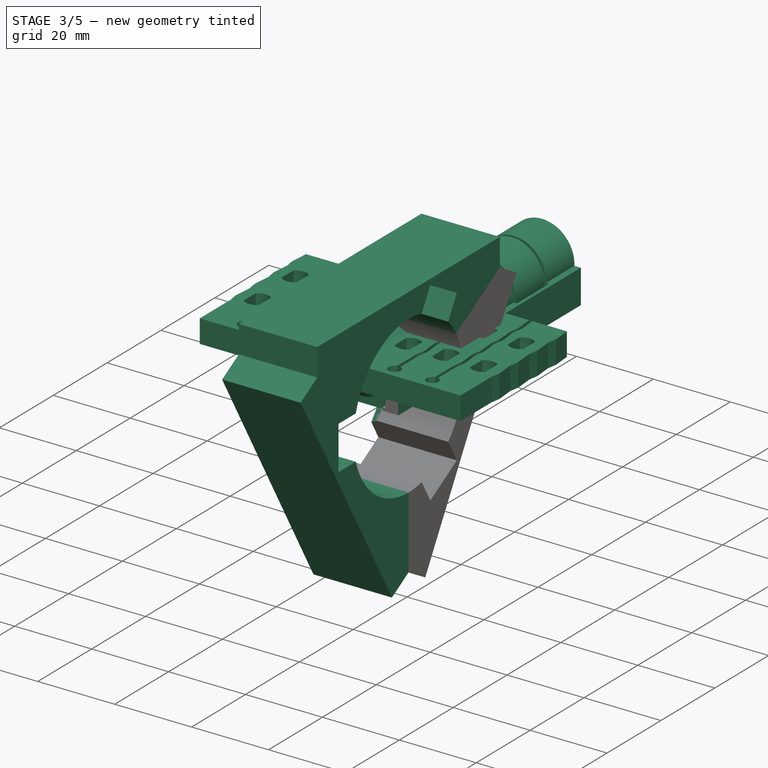
[diagram: stage 3 of 5 — iso view after this stage's code; geometry added in this stage tinted green]
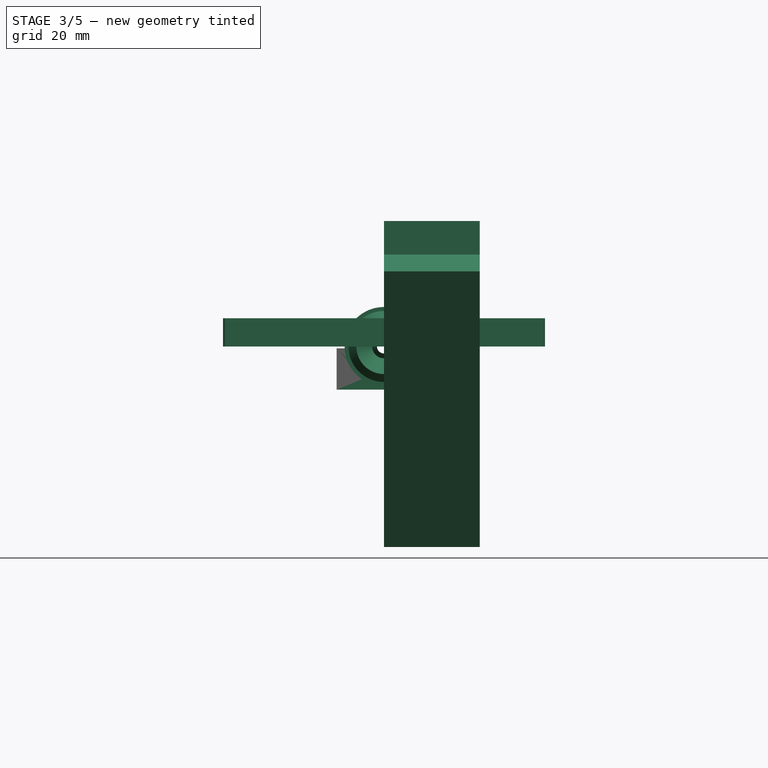
[diagram: stage 3 of 5 — front view after this stage's code; geometry added in this stage tinted green]
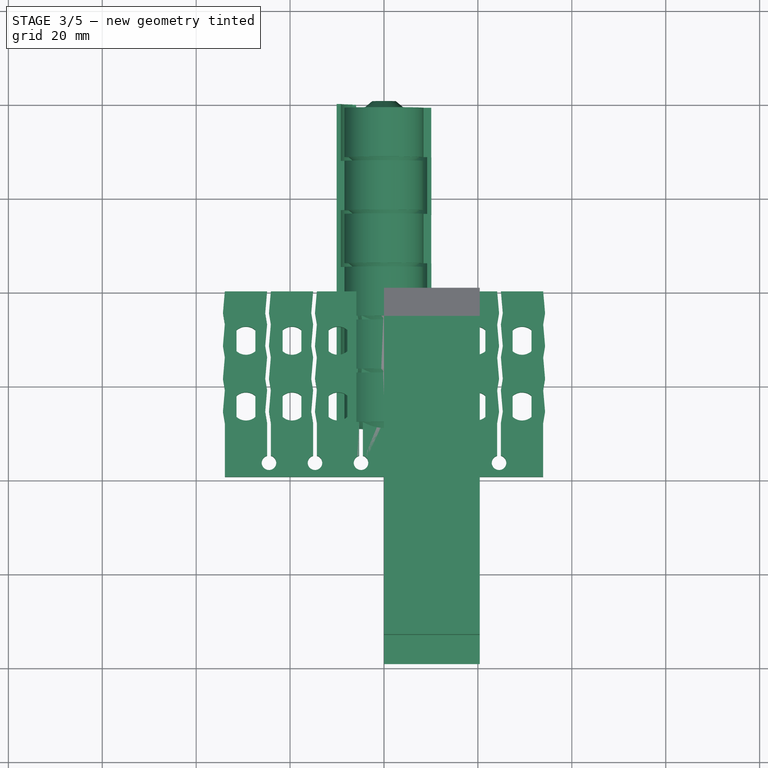
[diagram: stage 3 of 5 — top view after this stage's code; geometry added in this stage tinted green]
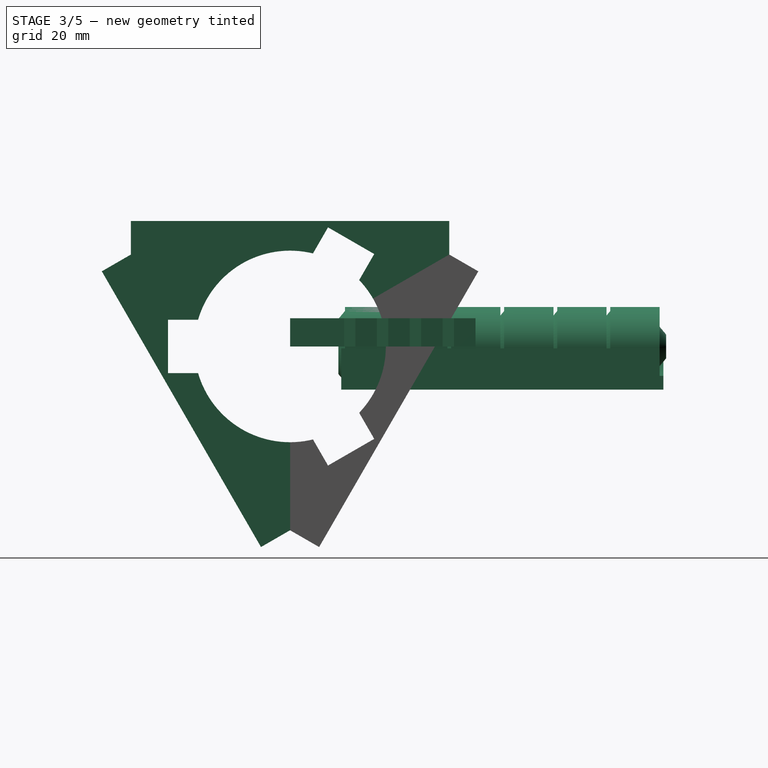
[diagram: stage 3 of 5 — right view after this stage's code; geometry added in this stage tinted green]
FEATURE [PartDesign::Pad] Pad  label="FixatorPadBody"
  Direction = (0,0,1)
  Length = 6
  Length2 = 10
  Profile = -> Sketch022
  ReferenceAxis = -> Sketch022 [N_Axis]
  Type = 0
  expr: Length = Spreadsheet.mmCellHight
FEATURE [Sketcher::SketchObject] Sketch  label="PiercesPocketSketch"
  AttachmentOffset = pos=(0,0,0) rot=(1,0,0;1.5708rad)
  FullyConstrained = true
  MapMode = 2
  Placement = pos=(0,0,0) rot=(0.707107,0.707107,0;3.14159rad)
  Support = -> [YZ_Plane005]
  expr: Constraints[108] = Spreadsheet.mmCellPierceWidth
  expr: Constraints[118] = Spreadsheet.mmCellPierceWidth
  expr: Constraints[128] = Spreadsheet.mmCellPierceWidth
  expr: Constraints[138] = Spreadsheet.mmCellPierceWidth
  expr: Constraints[148] = Spreadsheet.mmCellPierceWidth
  expr: Constraints[158] = Spreadsheet.mmCellPierceWidth
  expr: Constraints[171] = Spreadsheet.mmCellWidth + Spreadsheet.mmCellWall
  expr: Constraints[172] = Spreadsheet.mmCellWidth + Spreadsheet.mmCellWall
  expr: Constraints[173] = Spreadsheet.mmCellWidth + Spreadsheet.mmCellWall
  expr: Constraints[174] = Spreadsheet.mmCellWidth + Spreadsheet.mmCellWall
  expr: Constraints[175] = Spreadsheet.mmCellWidth + Spreadsheet.mmCellWall
  expr: Constraints[176] = Spreadsheet.mmCellWidth + Spreadsheet.mmCellWall
  expr: Constraints[178] = Spreadsheet.mmCellWidth / 2
  expr: Constraints[179] = Spreadsheet.mmCellWidth / 2
  expr: Constraints[180] = Spreadsheet.mmCommonBaseLenght + Spreadsheet.mmToothStep * 1.5
  expr: Constraints[181] = Spreadsheet.mmToothStep * 2
  expr: Constraints[19] = Spreadsheet.mmCellPierceWidth
  expr: Constraints[29] = Spreadsheet.mmCellPierceWidth
  expr: Constraints[39] = Spreadsheet.mmCellPierceWidth
  expr: Constraints[49] = Spreadsheet.mmCellPierceWidth
  expr: Constraints[59] = Spreadsheet.mmCellPierceWidth
  expr: Constraints[69] = Spreadsheet.mmCellPierceWidth
  expr: Constraints[82] = Spreadsheet.mmCellWidth + Spreadsheet.mmCellWall
  expr: Constraints[83] = Spreadsheet.mmCellWidth + Spreadsheet.mmCellWall
  expr: Constraints[84] = Spreadsheet.mmCellWidth + Spreadsheet.mmCellWall
  expr: Constraints[85] = Spreadsheet.mmCellWidth + Spreadsheet.mmCellWall
  expr: Constraints[86] = Spreadsheet.mmCellWidth + Spreadsheet.mmCellWall
  expr: Constraints[87] = Spreadsheet.mmCellWidth + Spreadsheet.mmCellWall
  expr: Constraints[98] = Spreadsheet.mmCellPierceWidth
  expr: Constraints[9] = Spreadsheet.mmCellPierceWidth
  sketch-geometry (56):
    g0: ArcOfCircle CenterX=29 CenterY=0 CenterZ=0 NormalX=0 NormalY=0 NormalZ=1 AngleXU=0 Radius=3.0104 StartAngle=2.41495 EndAngle=3.86823
    g1: LineSegment StartX=26.75 StartY=2 StartZ=0 EndX=31.25 EndY=2 EndZ=0
    g2: LineSegment StartX=26.75 StartY=-2 StartZ=0 EndX=31.25 EndY=-2 EndZ=0
    g3: ArcOfCircle CenterX=29 CenterY=0 CenterZ=0 NormalX=0 NormalY=0 NormalZ=1 AngleXU=0 Radius=3.0104 StartAngle=5.55654 EndAngle=7.00983
    g4: ArcOfCircle CenterX=29 CenterY=9.8 CenterZ=0 NormalX=0 NormalY=0 NormalZ=1 AngleXU=0 Radius=3.0104 StartAngle=2.41495 EndAngle=3.86823
    g5: LineSegment StartX=26.75 StartY=11.8 StartZ=0 EndX=31.25 EndY=11.8 EndZ=0
    g6: LineSegment StartX=26.75 StartY=7.8 StartZ=0 EndX=31.25 EndY=7.8 EndZ=0
    g7: ArcOfCircle CenterX=29 CenterY=9.8 CenterZ=0 NormalX=0 NormalY=0 NormalZ=1 AngleXU=0 Radius=3.0104 StartAngle=5.55654 EndAngle=7.00983
    g8: ArcOfCircle CenterX=29 CenterY=19.6 CenterZ=0 NormalX=0 NormalY=0 NormalZ=1 AngleXU=0 Radius=3.0104 StartAngle=2.41495 EndAngle=3.86823
    g9: LineSegment StartX=26.75 StartY=21.6 StartZ=0 EndX=31.25 EndY=21.6 EndZ=0
    g10: LineSegment StartX=26.75 StartY=17.6 StartZ=0 EndX=31.25 EndY=17.6 EndZ=0
    g11: ArcOfCircle CenterX=29 CenterY=19.6 CenterZ=0 NormalX=0 NormalY=0 NormalZ=1 AngleXU=0 Radius=3.0104 StartAngle=5.55654 EndAngle=7.00983
    g12: ArcOfCircle CenterX=29 CenterY=29.4 CenterZ=0 NormalX=0 NormalY=0 NormalZ=1 AngleXU=0 Radius=3.0104 StartAngle=2.41495 EndAngle=3.86823
    g13: LineSegment StartX=26.75 StartY=31.4 StartZ=0 EndX=31.25 EndY=31.4 EndZ=0
    g14: LineSegment StartX=26.75 StartY=27.4 StartZ=0 EndX=31.25 EndY=27.4 EndZ=0
    g15: ArcOfCircle CenterX=29 CenterY=29.4 CenterZ=0 NormalX=0 NormalY=0 NormalZ=1 AngleXU=0 Radius=3.0104 StartAngle=5.55654 EndAngle=7.00983
    g16: ArcOfCircle CenterX=29 CenterY=-9.8 CenterZ=0 NormalX=0 NormalY=0 NormalZ=1 AngleXU=0 Radius=3.0104 StartAngle=2.41495 EndAngle=3.86823
    g17: LineSegment StartX=26.75 StartY=-7.8 StartZ=0 EndX=31.25 EndY=-7.8 EndZ=0
    g18: LineSegment StartX=26.75 StartY=-11.8 StartZ=0 EndX=31.25 EndY=-11.8 EndZ=0
    g19: ArcOfCircle CenterX=29 CenterY=-9.8 CenterZ=0 NormalX=0 NormalY=0 NormalZ=1 AngleXU=0 Radius=3.0104 StartAngle=5.55654 EndAngle=7.00983
    g20: ArcOfCircle CenterX=29 CenterY=-19.6 CenterZ=0 NormalX=0 NormalY=0 NormalZ=1 AngleXU=0 Radius=3.0104 StartAngle=2.41495 EndAngle=3.86823
    g21: LineSegment StartX=26.75 StartY=-17.6 StartZ=0 EndX=31.25 EndY=-17.6 EndZ=0
    g22: LineSegment StartX=26.75 StartY=-21.6 StartZ=0 EndX=31.25 EndY=-21.6 EndZ=0
    g23: ArcOfCircle CenterX=29 CenterY=-19.6 CenterZ=0 NormalX=0 NormalY=0 NormalZ=1 AngleXU=0 Radius=3.0104 StartAngle=5.55654 EndAngle=7.00983
    g24: ArcOfCircle CenterX=29 CenterY=-29.4 CenterZ=0 NormalX=0 NormalY=0 NormalZ=1 AngleXU=0 Radius=3.0104 StartAngle=2.41495 EndAngle=3.86823
    g25: LineSegment StartX=26.75 StartY=-27.4 StartZ=0 EndX=31.25 EndY=-27.4 EndZ=0
    g26: LineSegment StartX=26.75 StartY=-31.4 StartZ=0 EndX=31.25 EndY=-31.4 EndZ=0
    g27: ArcOfCircle CenterX=29 CenterY=-29.4 CenterZ=0 NormalX=0 NormalY=0 NormalZ=1 AngleXU=0 Radius=3.0104 StartAngle=5.55654 EndAngle=7.00983
    g28: ArcOfCircle CenterX=15 CenterY=0 CenterZ=0 NormalX=0 NormalY=0 NormalZ=1 AngleXU=0 Radius=3.0104 StartAngle=2.41495 EndAngle=3.86823
    g29: LineSegment StartX=12.75 StartY=2 StartZ=0 EndX=17.25 EndY=2 EndZ=0
    g30: LineSegment StartX=12.75 StartY=-2 StartZ=0 EndX=17.25 EndY=-2 EndZ=0
    g31: ArcOfCircle CenterX=15 CenterY=0 CenterZ=0 NormalX=0 NormalY=0 NormalZ=1 AngleXU=0 Radius=3.0104 StartAngle=5.55654 EndAngle=7.00983
    g32: ArcOfCircle CenterX=15 CenterY=9.8 CenterZ=0 NormalX=0 NormalY=0 NormalZ=1 AngleXU=0 Radius=3.0104 StartAngle=2.41495 EndAngle=3.86823
    g33: LineSegment StartX=12.75 StartY=11.8 StartZ=0 EndX=17.25 EndY=11.8 EndZ=0
    g34: LineSegment StartX=12.75 StartY=7.8 StartZ=0 EndX=17.25 EndY=7.8 EndZ=0
    g35: ArcOfCircle CenterX=15 CenterY=9.8 CenterZ=0 NormalX=0 NormalY=0 NormalZ=1 AngleXU=0 Radius=3.0104 StartAngle=5.55654 EndAngle=7.00983
    g36: ArcOfCircle CenterX=15 CenterY=19.6 CenterZ=0 NormalX=0 NormalY=0 NormalZ=1 AngleXU=0 Radius=3.0104 StartAngle=2.41495 EndAngle=3.86823
    g37: LineSegment StartX=12.75 StartY=21.6 StartZ=0 EndX=17.25 EndY=21.6 EndZ=0
    g38: LineSegment StartX=12.75 StartY=17.6 StartZ=0 EndX=17.25 EndY=17.6 EndZ=0
    g39: ArcOfCircle CenterX=15 CenterY=19.6 CenterZ=0 NormalX=0 NormalY=0 NormalZ=1 AngleXU=0 Radius=3.0104 StartAngle=5.55654 EndAngle=7.00983
    g40: ArcOfCircle CenterX=15 CenterY=29.4 CenterZ=0 NormalX=0 NormalY=0 NormalZ=1 AngleXU=0 Radius=3.0104 StartAngle=2.41495 EndAngle=3.86823
    g41: LineSegment StartX=12.75 StartY=31.4 StartZ=0 EndX=17.25 EndY=31.4 EndZ=0
    g42: LineSegment StartX=12.75 StartY=27.4 StartZ=0 EndX=17.25 EndY=27.4 EndZ=0
    g43: ArcOfCircle CenterX=15 CenterY=29.4 CenterZ=0 NormalX=0 NormalY=0 NormalZ=1 AngleXU=0 Radius=3.0104 StartAngle=5.55654 EndAngle=7.00983
    g44: ArcOfCircle CenterX=15 CenterY=-9.8 CenterZ=0 NormalX=0 NormalY=0 NormalZ=1 AngleXU=0 Radius=3.0104 StartAngle=2.41495 EndAngle=3.86823
    g45: LineSegment StartX=12.75 StartY=-7.8 StartZ=0 EndX=17.25 EndY=-7.8 EndZ=0
    g46: LineSegment StartX=12.75 StartY=-11.8 StartZ=0 EndX=17.25 EndY=-11.8 EndZ=0
    g47: ArcOfCircle CenterX=15 CenterY=-9.8 CenterZ=0 NormalX=0 NormalY=0 NormalZ=1 AngleXU=0 Radius=3.0104 StartAngle=5.55654 EndAngle=7.00983
    g48: ArcOfCircle CenterX=15 CenterY=-19.6 CenterZ=0 NormalX=0 NormalY=0 NormalZ=1 AngleXU=0 Radius=3.0104 StartAngle=2.41495 EndAngle=3.86823
    g49: LineSegment StartX=12.75 StartY=-17.6 StartZ=0 EndX=17.25 EndY=-17.6 EndZ=0
    g50: LineSegment StartX=12.75 StartY=-21.6 StartZ=0 EndX=17.25 EndY=-21.6 EndZ=0
    g51: ArcOfCircle CenterX=15 CenterY=-19.6 CenterZ=0 NormalX=0 NormalY=0 NormalZ=1 AngleXU=0 Radius=3.0104 StartAngle=5.55654 EndAngle=7.00983
    g52: ArcOfCircle CenterX=15 CenterY=-29.4 CenterZ=0 NormalX=0 NormalY=0 NormalZ=1 AngleXU=0 Radius=3.0104 StartAngle=2.41495 EndAngle=3.86823
    g53: LineSegment StartX=12.75 StartY=-27.4 StartZ=0 EndX=17.25 EndY=-27.4 EndZ=0
    g54: LineSegment StartX=12.75 StartY=-31.4 StartZ=0 EndX=17.25 EndY=-31.4 EndZ=0
    g55: ArcOfCircle CenterX=15 CenterY=-29.4 CenterZ=0 NormalX=0 NormalY=0 NormalZ=1 AngleXU=0 Radius=3.0104 StartAngle=5.55654 EndAngle=7.00983
  constraints (182):
    c: Horizontal(g1)
    c: Horizontal(g2)
    c: PointOnObject(g1,g0)
    c: Coincident(g0,g3)
    c: Coincident(g0,g2)
    c: Coincident(g3,g2)
    c: Coincident(g1,g0)
    c: Coincident(g3,g1)
    c: Equal(g2,g1)
    c: DistanceY(g2,g1) = 4
    c: Horizontal(g5)
    c: Horizontal(g6)
    c: PointOnObject(g5,g4)
    c: Coincident(g4,g7)
    c: Coincident(g4,g6)
    c: Coincident(g7,g6)
    c: Coincident(g5,g4)
    c: Coincident(g7,g5)
    c: Equal(g6,g5)
    c: DistanceY(g6,g5) = 4
    c: Horizontal(g9)
    c: Horizontal(g10)
    c: PointOnObject(g9,g8)
    c: Coincident(g8,g11)
    c: Coincident(g8,g10)
    c: Coincident(g11,g10)
    c: Coincident(g9,g8)
    c: Coincident(g11,g9)
    c: Equal(g10,g9)
    c: DistanceY(g10,g9) = 4
    c: Horizontal(g13)
    c: Horizontal(g14)
    c: PointOnObject(g13,g12)
    c: Coincident(g12,g15)
    c: Coincident(g12,g14)
    c: Coincident(g15,g14)
    c: Coincident(g13,g12)
    c: Coincident(g15,g13)
    c: Equal(g14,g13)
    c: DistanceY(g14,g13) = 4
    c: Horizontal(g17)
    c: Horizontal(g18)
    c: PointOnObject(g17,g16)
    c: Coincident(g16,g19)
    c: Coincident(g16,g18)
    c: Coincident(g19,g18)
    c: Coincident(g17,g16)
    c: Coincident(g19,g17)
    c: Equal(g18,g17)
    c: DistanceY(g18,g17) = 4
    c: Horizontal(g21)
    c: Horizontal(g22)
    c: PointOnObject(g21,g20)
    c: Coincident(g20,g23)
    c: Coincident(g20,g22)
    c: Coincident(g23,g22)
    c: Coincident(g21,g20)
    c: Coincident(g23,g21)
    c: Equal(g22,g21)
    c: DistanceY(g22,g21) = 4
    c: Horizontal(g25)
    c: Horizontal(g26)
    c: PointOnObject(g25,g24)
    c: Coincident(g24,g27)
    c: Coincident(g24,g26)
    c: Coincident(g27,g26)
    c: Coincident(g25,g24)
    c: Coincident(g27,g25)
    c: Equal(g26,g25)
    c: DistanceY(g26,g25) = 4
    c: Vertical(g0,g4)
    c: Vertical(g4,g8)
    c: Vertical(g8,g12)
    c: Vertical(g12,g16)
    c: Vertical(g16,g20)
    c: Vertical(g20,g24)
    c: Equal(g2,g18)
    c: Equal(g18,g22)
    c: Equal(g22,g26)
    c: Equal(g1,g5)
    c: Equal(g5,g9)
    c: Equal(g9,g13)
    c: DistanceY(g8,g12) = 9.8
    c: DistanceY(g4,g8) = 9.8
    c: DistanceY(g0,g4) = 9.8
    c: DistanceY(g16,g0) = 9.8
    c: DistanceY(g20,g16) = 9.8
    c: DistanceY(g24,g20) = 9.8
    c: PointOnObject(g0,g-1)
    c: Horizontal(g29)
    c: Horizontal(g30)
    c: PointOnObject(g29,g28)
    c: Coincident(g28,g31)
    c: Coincident(g28,g30)
    c: Coincident(g31,g30)
    c: Coincident(g29,g28)
    c: Coincident(g31,g29)
    c: Equal(g30,g29)
    c: DistanceY(g30,g29) = 4
    c: Horizontal(g33)
    c: Horizontal(g34)
    c: PointOnObject(g33,g32)
    c: Coincident(g32,g35)
    c: Coincident(g32,g34)
    c: Coincident(g35,g34)
    c: Coincident(g33,g32)
    c: Coincident(g35,g33)
    c: Equal(g34,g33)
    c: DistanceY(g34,g33) = 4
    c: Horizontal(g37)
    c: Horizontal(g38)
    c: PointOnObject(g37,g36)
    c: Coincident(g36,g39)
    c: Coincident(g36,g38)
    c: Coincident(g39,g38)
    c: Coincident(g37,g36)
    c: Coincident(g39,g37)
    c: Equal(g38,g37)
    c: DistanceY(g38,g37) = 4
    c: Horizontal(g41)
    c: Horizontal(g42)
    c: PointOnObject(g41,g40)
    c: Coincident(g40,g43)
    c: Coincident(g40,g42)
    c: Coincident(g43,g42)
    c: Coincident(g41,g40)
    c: Coincident(g43,g41)
    c: Equal(g42,g41)
    c: DistanceY(g42,g41) = 4
    c: Horizontal(g45)
    c: Horizontal(g46)
    c: PointOnObject(g45,g44)
    c: Coincident(g44,g47)
    c: Coincident(g44,g46)
    c: Coincident(g47,g46)
    c: Coincident(g45,g44)
    c: Coincident(g47,g45)
    c: Equal(g46,g45)
    c: DistanceY(g46,g45) = 4
    c: Horizontal(g49)
    c: Horizontal(g50)
    c: PointOnObject(g49,g48)
    c: Coincident(g48,g51)
    c: Coincident(g48,g50)
    c: Coincident(g51,g50)
    c: Coincident(g49,g48)
    c: Coincident(g51,g49)
    c: Equal(g50,g49)
    c: DistanceY(g50,g49) = 4
    c: Horizontal(g53)
    c: Horizontal(g54)
    c: PointOnObject(g53,g52)
    c: Coincident(g52,g55)
    c: Coincident(g52,g54)
    c: Coincident(g55,g54)
    c: Coincident(g53,g52)
    c: Coincident(g55,g53)
    c: Equal(g54,g53)
    c: DistanceY(g54,g53) = 4
    c: Vertical(g28,g32)
    c: Vertical(g32,g36)
    c: Vertical(g36,g40)
    c: Vertical(g40,g44)
    c: Vertical(g44,g48)
    c: Vertical(g48,g52)
    c: Equal(g30,g46)
    c: Equal(g46,g50)
    c: Equal(g50,g54)
    c: Equal(g29,g33)
    c: Equal(g33,g37)
    c: Equal(g37,g41)
    c: DistanceY(g36,g40) = 9.8
    c: DistanceY(g32,g36) = 9.8
    c: DistanceY(g28,g32) = 9.8
    c: DistanceY(g44,g28) = 9.8
    c: DistanceY(g48,g44) = 9.8
    c: DistanceY(g52,g48) = 9.8
    c: PointOnObject(g28,g-1)
    c: DistanceX(g24,g26) = 4.5
    c: DistanceX(g52,g54) = 4.5
    c: DistanceX(g-1,g28) = 15
    c: DistanceX(g28,g0) = 14
FEATURE [PartDesign::Pocket] Pocket  label="PiercesPocket"
  BaseFeature = -> Pad
  Direction = (-2e-16,2e-16,1)
  Length = 69.4
  Length2 = 5
  Midplane = true
  Profile = -> Sketch
  ReferenceAxis = -> Sketch [N_Axis]
  Type = 0
  expr: Length = Spreadsheet.mmBaseWidth + Spreadsheet.mmCellWall * 2
FEATURE [PartDesign::Body] Body004  label="BeamFixator"
  Group = -> [Sketch022,Pad,Sketch,Pocket]
  Origin = -> Origin005
  Tip = -> Pocket
FEATURE [PartDesign::CoordinateSystem] FixatorCenterBase
  AttacherType = Attacher::AttachEngine3D
  AttachmentOffset = pos=(0,0,0) rot=(-0.57735,0.57735,0.57735;2.0944rad)
  MapMode = 5
  Placement = pos=(0,0,0) rot=(0,0,1;1.5708rad)
  Support = -> [Pocket]
FEATURE [App::Part] Part001  label="BeamFixatoPart"
  Group = -> [Body004,FixatorCenterBase]
  Origin = -> Origin006
FEATURE [Sketcher::SketchObject] Sketch028  label="SideBeamFixatorScatch"
  FullyConstrained = false
  MapMode = 5
  Support = -> [XY_Plane011]
  expr: Constraints[171] = Spreadsheet.mmCellWall
  expr: Constraints[172] = Spreadsheet.mmCellWall
  expr: Constraints[173] = Spreadsheet.mmCellWall
  expr: Constraints[174] = Spreadsheet.mmCellWall
  expr: Constraints[175] = Spreadsheet.mmSideBeemEnd
  expr: Constraints[176] = Spreadsheet.mmCellWidth
  expr: Constraints[177] = Spreadsheet.mmCellWidth
  expr: Constraints[178] = Spreadsheet.mmCellWidth
  expr: Constraints[231] = Spreadsheet.mmCommonBaseLenght
  expr: Constraints[233] = Spreadsheet.mmToothStep
  expr: Constraints[234] = Spreadsheet.mmToothStep
  expr: Constraints[235] = Spreadsheet.mmToothStep
  expr: Constraints[236] = Spreadsheet.mmToothStep
  expr: Constraints[237] = Spreadsheet.mmToothStep
  expr: Constraints[246] = Spreadsheet.mmCellWall
  expr: Constraints[247] = Spreadsheet.mmCellWall
  expr: Constraints[248] = Spreadsheet.mmCellWall
  expr: Constraints[249] = Spreadsheet.mmCellWall
  expr: Constraints[257] = Spreadsheet.mmCellWall / 2
  expr: Constraints[545] = Spreadsheet.mmFirstCircleArcToBase
  expr: Constraints[5] = Spreadsheet.mmBaseWidth
  expr: Constraints[6] = Spreadsheet.mmBaseEnd
  sketch-geometry (180):
    g0: LineSegment StartX=-33.9 StartY=0 StartZ=0 EndX=-33.9 EndY=39.5 EndZ=0
    g1: LineSegment StartX=-33.9 StartY=39.5 StartZ=0 EndX=33.9 EndY=39.5 EndZ=0
    g2: LineSegment StartX=33.9 StartY=39.5 StartZ=0 EndX=33.9 EndY=0 EndZ=0
    g3: LineSegment StartX=-73.11 StartY=25.5 StartZ=0 EndX=65.6354 EndY=25.5 EndZ=0
    g4: LineSegment StartX=-33.9 StartY=0 StartZ=0 EndX=-33.9 EndY=39.5 EndZ=0
    g5: LineSegment StartX=-33.9 StartY=39.5 StartZ=0 EndX=-32.9 EndY=39.5 EndZ=0
    g6: LineSegment StartX=-32.9 StartY=39.5 StartZ=0 EndX=-32.5 EndY=33.3 EndZ=0
    g7: LineSegment StartX=-32.5 StartY=33.3 StartZ=0 EndX=-32.9 EndY=32.5 EndZ=0
    g8: LineSegment StartX=-32.9 StartY=32.5 StartZ=0 EndX=-32.5 EndY=26.3 EndZ=0
    g9: LineSegment StartX=-32.5 StartY=26.3 StartZ=0 EndX=-32.9 EndY=25.5 EndZ=0
    g10: LineSegment StartX=-32.9 StartY=25.5 StartZ=0 EndX=-32.5 EndY=19.3 EndZ=0
    g11: LineSegment StartX=-32.5 StartY=19.3 StartZ=0 EndX=-32.9 EndY=18.5 EndZ=0
    g12: LineSegment StartX=-32.9 StartY=18.5 StartZ=0 EndX=-32.5 EndY=12.3 EndZ=0
    g13: LineSegment StartX=-32.5 StartY=12.3 StartZ=0 EndX=-32.9 EndY=11.5 EndZ=0
    g14: LineSegment StartX=-32.9 StartY=11.5 StartZ=0 EndX=-32.5 EndY=4.5 EndZ=0
    g15: LineSegment StartX=-31.7 StartY=4.5 StartZ=0 EndX=-32.1 EndY=11.5 EndZ=0
    g16: LineSegment StartX=-32.1 StartY=11.5 StartZ=0 EndX=-31.7 EndY=12.3 EndZ=0
    g17: LineSegment StartX=-31.7 StartY=12.3 StartZ=0 EndX=-32.1 EndY=18.5 EndZ=0
    g18: LineSegment StartX=-32.1 StartY=18.5 StartZ=0 EndX=-31.7 EndY=19.3 EndZ=0
    g19: LineSegment StartX=-31.7 StartY=19.3 StartZ=0 EndX=-32.1 EndY=25.5 EndZ=0
    g20: LineSegment StartX=-32.1 StartY=25.5 StartZ=0 EndX=-31.7 EndY=26.3 EndZ=0
    g21: LineSegment StartX=-31.7 StartY=26.3 StartZ=0 EndX=-32.1 EndY=32.5 EndZ=0
    g22: LineSegment StartX=-32.1 StartY=32.5 StartZ=0 EndX=-31.7 EndY=33.3 EndZ=0
    g23: LineSegment StartX=-31.7 StartY=33.3 StartZ=0 EndX=-32.1 EndY=39.5 EndZ=0
    g24: LineSegment StartX=-32.1 StartY=39.5 StartZ=0 EndX=-23.1 EndY=39.5 EndZ=0
    g25: LineSegment StartX=-23.1 StartY=39.5 StartZ=0 EndX=-22.7 EndY=33.3 EndZ=0
    g26: LineSegment StartX=-22.7 StartY=33.3 StartZ=0 EndX=-23.1 EndY=32.5 EndZ=0
    g27: LineSegment StartX=-23.1 StartY=32.5 StartZ=0 EndX=-22.7 EndY=26.3 EndZ=0
    g28: LineSegment StartX=-22.7 StartY=26.3 StartZ=0 EndX=-23.1 EndY=25.5 EndZ=0
    g29: LineSegment StartX=-23.1 StartY=25.5 StartZ=0 EndX=-22.7 EndY=19.3 EndZ=0
    g30: LineSegment StartX=-22.7 StartY=19.3 StartZ=0 EndX=-23.1 EndY=18.5 EndZ=0
    g31: LineSegment StartX=-23.1 StartY=18.5 StartZ=0 EndX=-22.7 EndY=12.3 EndZ=0
    g32: LineSegment StartX=-22.7 StartY=12.3 StartZ=0 EndX=-23.1 EndY=11.5 EndZ=0
    g33: LineSegment StartX=-23.1 StartY=11.5 StartZ=0 EndX=-22.7 EndY=4.5 EndZ=0
    g34: LineSegment StartX=-21.9 StartY=4.5 StartZ=0 EndX=-22.3 EndY=11.5 EndZ=0
    g35: LineSegment StartX=-22.3 StartY=11.5 StartZ=0 EndX=-21.9 EndY=12.3 EndZ=0
    g36: LineSegment StartX=-21.9 StartY=12.3 StartZ=0 EndX=-22.3 EndY=18.5 EndZ=0
    g37: LineSegment StartX=-22.3 StartY=18.5 StartZ=0 EndX=-21.9 EndY=19.3 EndZ=0
    g38: LineSegment StartX=-21.9 StartY=19.3 StartZ=0 EndX=-22.3 EndY=25.5 EndZ=0
    g39: LineSegment StartX=-22.3 StartY=25.5 StartZ=0 EndX=-21.9 EndY=26.3 EndZ=0
    g40: LineSegment StartX=-21.9 StartY=26.3 StartZ=0 EndX=-22.3 EndY=32.5 EndZ=0
    g41: LineSegment StartX=-22.3 StartY=32.5 StartZ=0 EndX=-21.9 EndY=33.3 EndZ=0
    g42: LineSegment StartX=-21.9 StartY=33.3 StartZ=0 EndX=-22.3 EndY=39.5 EndZ=0
    g43: LineSegment StartX=-22.3 StartY=39.5 StartZ=0 EndX=-13.3 EndY=39.5 EndZ=0
    g44: LineSegment StartX=-13.3 StartY=39.5 StartZ=0 EndX=-12.9 EndY=33.3 EndZ=0
    g45: LineSegment StartX=-12.9 StartY=33.3 StartZ=0 EndX=-13.3 EndY=32.5 EndZ=0
    g46: LineSegment StartX=-13.3 StartY=32.5 StartZ=0 EndX=-12.9 EndY=26.3 EndZ=0
    g47: LineSegment StartX=-12.9 StartY=26.3 StartZ=0 EndX=-13.3 EndY=25.5 EndZ=0
    g48: LineSegment StartX=-13.3 StartY=25.5 StartZ=0 EndX=-12.9 EndY=19.3 EndZ=0
    g49: LineSegment StartX=-12.9 StartY=19.3 StartZ=0 EndX=-13.3 EndY=18.5 EndZ=0
    g50: LineSegment StartX=-13.3 StartY=18.5 StartZ=0 EndX=-12.9 EndY=12.3 EndZ=0
    g51: LineSegment StartX=-12.9 StartY=12.3 StartZ=0 EndX=-13.3 EndY=11.5 EndZ=0
    g52: LineSegment StartX=-13.3 StartY=11.5 StartZ=0 EndX=-12.9 EndY=4.5 EndZ=0
    g53: LineSegment StartX=-12.1 StartY=4.5 StartZ=0 EndX=-12.5 EndY=11.5 EndZ=0
    g54: LineSegment StartX=-12.5 StartY=11.5 StartZ=0 EndX=-12.1 EndY=12.3 EndZ=0
    g55: LineSegment StartX=-12.1 StartY=12.3 StartZ=0 EndX=-12.5 EndY=18.5 EndZ=0
    g56: LineSegment StartX=-12.5 StartY=18.5 StartZ=0 EndX=-12.1 EndY=19.3 EndZ=0
    g57: LineSegment StartX=-12.1 StartY=19.3 StartZ=0 EndX=-12.5 EndY=25.5 EndZ=0
    g58: LineSegment StartX=-12.5 StartY=25.5 StartZ=0 EndX=-12.1 EndY=26.3 EndZ=0
    g59: LineSegment StartX=-12.1 StartY=26.3 StartZ=0 EndX=-12.5 EndY=32.5 EndZ=0
    g60: LineSegment StartX=-12.5 StartY=32.5 StartZ=0 EndX=-12.1 EndY=33.3 EndZ=0
    g61: LineSegment StartX=-12.1 StartY=33.3 StartZ=0 EndX=-12.5 EndY=39.5 EndZ=0
    g62: LineSegment StartX=-12.5 StartY=39.5 StartZ=0 EndX=-3.5 EndY=39.5 EndZ=0
    g63: LineSegment StartX=-3.5 StartY=39.5 StartZ=0 EndX=-3.1 EndY=33.3 EndZ=0
    g64: LineSegment StartX=-3.1 StartY=33.3 StartZ=0 EndX=-3.5 EndY=32.5 EndZ=0
    g65: LineSegment StartX=-3.5 StartY=32.5 StartZ=0 EndX=-3.1 EndY=26.3 EndZ=0
    g66: LineSegment StartX=-3.1 StartY=26.3 StartZ=0 EndX=-3.5 EndY=25.5 EndZ=0
    g67: LineSegment StartX=-3.5 StartY=25.5 StartZ=0 EndX=-3.1 EndY=19.3 EndZ=0
    g68: LineSegment StartX=-3.1 StartY=19.3 StartZ=0 EndX=-3.5 EndY=18.5 EndZ=0
    g69: LineSegment StartX=-3.5 StartY=18.5 StartZ=0 EndX=-3.1 EndY=12.3 EndZ=0
    g70: LineSegment StartX=-3.1 StartY=12.3 StartZ=0 EndX=-3.5 EndY=11.5 EndZ=0
    g71: LineSegment StartX=-3.5 StartY=11.5 StartZ=0 EndX=-3.1 EndY=4.5 EndZ=0
    g72: LineSegment StartX=-2.3 StartY=4.5 StartZ=0 EndX=-2.7 EndY=11.5 EndZ=0
    g73: LineSegment StartX=-2.7 StartY=11.5 StartZ=0 EndX=-2.3 EndY=12.3 EndZ=0
    g74: LineSegment StartX=-2.3 StartY=12.3 StartZ=0 EndX=-2.7 EndY=18.5 EndZ=0
    g75: LineSegment StartX=-2.7 StartY=18.5 StartZ=0 EndX=-2.3 EndY=19.3 EndZ=0
    g76: LineSegment StartX=-2.3 StartY=19.3 StartZ=0 EndX=-2.7 EndY=25.5 EndZ=0
    g77: LineSegment StartX=-2.7 StartY=25.5 StartZ=0 EndX=-2.3 EndY=26.3 EndZ=0
    g78: LineSegment StartX=-2.3 StartY=26.3 StartZ=0 EndX=-2.7 EndY=32.5 EndZ=0
    g79: LineSegment StartX=-2.7 StartY=32.5 StartZ=0 EndX=-2.3 EndY=33.3 EndZ=0
    g80: LineSegment StartX=-2.3 StartY=33.3 StartZ=0 EndX=-2.7 EndY=39.5 EndZ=0
    g81: LineSegment StartX=-2.7 StartY=39.5 StartZ=0 EndX=2.7 EndY=39.5 EndZ=0
    g82: LineSegment StartX=2.7 StartY=39.5 StartZ=0 EndX=2.3 EndY=33.3 EndZ=0
    g83: LineSegment StartX=2.3 StartY=33.3 StartZ=0 EndX=2.7 EndY=32.5 EndZ=0
    g84: LineSegment StartX=2.7 StartY=32.5 StartZ=0 EndX=2.3 EndY=26.3 EndZ=0
    g85: LineSegment StartX=2.3 StartY=26.3 StartZ=0 EndX=2.7 EndY=25.5 EndZ=0
    g86: LineSegment StartX=2.7 StartY=25.5 StartZ=0 EndX=2.3 EndY=19.3 EndZ=0
    g87: LineSegment StartX=2.3 StartY=19.3 StartZ=0 EndX=2.7 EndY=18.5 EndZ=0
    g88: LineSegment StartX=2.7 StartY=18.5 StartZ=0 EndX=2.3 EndY=12.3 EndZ=0
    g89: LineSegment StartX=2.3 StartY=12.3 StartZ=0 EndX=2.7 EndY=11.5 EndZ=0
    g90: LineSegment StartX=2.7 StartY=11.5 StartZ=0 EndX=2.3 EndY=4.5 EndZ=0
    g91: LineSegment StartX=3.1 StartY=4.5 StartZ=0 EndX=3.5 EndY=11.5 EndZ=0
    g92: LineSegment StartX=3.5 StartY=11.5 StartZ=0 EndX=3.1 EndY=12.3 EndZ=0
    g93: LineSegment StartX=3.1 StartY=12.3 StartZ=0 EndX=3.5 EndY=18.5 EndZ=0
    g94: LineSegment StartX=3.5 StartY=18.5 StartZ=0 EndX=3.1 EndY=19.3 EndZ=0
    g95: LineSegment StartX=3.1 StartY=19.3 StartZ=0 EndX=3.5 EndY=25.5 EndZ=0
    g96: LineSegment StartX=3.5 StartY=25.5 StartZ=0 EndX=3.1 EndY=26.3 EndZ=0
    g97: LineSegment StartX=3.1 StartY=26.3 StartZ=0 EndX=3.5 EndY=32.5 EndZ=0
    g98: LineSegment StartX=3.5 StartY=32.5 StartZ=0 EndX=3.1 EndY=33.3 EndZ=0
    g99: LineSegment StartX=3.1 StartY=33.3 StartZ=0 EndX=3.5 EndY=39.5 EndZ=0
    g100: LineSegment StartX=3.5 StartY=39.5 StartZ=0 EndX=12.5 EndY=39.5 EndZ=0
    g101: LineSegment StartX=12.5 StartY=39.5 StartZ=0 EndX=12.1 EndY=33.3 EndZ=0
    g102: LineSegment StartX=12.1 StartY=33.3 StartZ=0 EndX=12.5 EndY=32.5 EndZ=0
    g103: LineSegment StartX=12.5 StartY=32.5 StartZ=0 EndX=12.1 EndY=26.3 EndZ=0
    g104: LineSegment StartX=12.1 StartY=26.3 StartZ=0 EndX=12.5 EndY=25.5 EndZ=0
    g105: LineSegment StartX=12.5 StartY=25.5 StartZ=0 EndX=12.1 EndY=19.3 EndZ=0
    g106: LineSegment StartX=12.1 StartY=19.3 StartZ=0 EndX=12.5 EndY=18.5 EndZ=0
    g107: LineSegment StartX=12.5 StartY=18.5 StartZ=0 EndX=12.1 EndY=12.3 EndZ=0
    g108: LineSegment StartX=12.1 StartY=12.3 StartZ=0 EndX=12.5 EndY=11.5 EndZ=0
    g109: LineSegment StartX=12.5 StartY=11.5 StartZ=0 EndX=12.1 EndY=4.5 EndZ=0
    g110: LineSegment StartX=12.9 StartY=4.5 StartZ=0 EndX=13.3 EndY=11.5 EndZ=0
    g111: LineSegment StartX=13.3 StartY=11.5 StartZ=0 EndX=12.9 EndY=12.3 EndZ=0
    g112: LineSegment StartX=12.9 StartY=12.3 StartZ=0 EndX=13.3 EndY=18.5 EndZ=0
    g113: LineSegment StartX=13.3 StartY=18.5 StartZ=0 EndX=12.9 EndY=19.3 EndZ=0
    g114: LineSegment StartX=12.9 StartY=19.3 StartZ=0 EndX=13.3 EndY=25.5 EndZ=0
    g115: LineSegment StartX=13.3 StartY=25.5 StartZ=0 EndX=12.9 EndY=26.3 EndZ=0
    g116: LineSegment StartX=12.9 StartY=26.3 StartZ=0 EndX=13.3 EndY=32.5 EndZ=0
    g117: LineSegment StartX=13.3 StartY=32.5 StartZ=0 EndX=12.9 EndY=33.3 EndZ=0
    g118: LineSegment StartX=12.9 StartY=33.3 StartZ=0 EndX=13.3 EndY=39.5 EndZ=0
    g119: LineSegment StartX=13.3 StartY=39.5 StartZ=0 EndX=22.3 EndY=39.5 EndZ=0
    g120: LineSegment StartX=22.3 StartY=39.5 StartZ=0 EndX=21.9 EndY=33.3 EndZ=0
    g121: LineSegment StartX=21.9 StartY=33.3 StartZ=0 EndX=22.3 EndY=32.5 EndZ=0
    g122: LineSegment StartX=22.3 StartY=32.5 StartZ=0 EndX=21.9 EndY=26.3 EndZ=0
    g123: LineSegment StartX=21.9 StartY=26.3 StartZ=0 EndX=22.3 EndY=25.5 EndZ=0
    g124: LineSegment StartX=22.3 StartY=25.5 StartZ=0 EndX=21.9 EndY=19.3 EndZ=0
    g125: LineSegment StartX=21.9 StartY=19.3 StartZ=0 EndX=22.3 EndY=18.5 EndZ=0
    g126: LineSegment StartX=22.3 StartY=18.5 StartZ=0 EndX=21.9 EndY=12.3 EndZ=0
    g127: LineSegment StartX=21.9 StartY=12.3 StartZ=0 EndX=22.3 EndY=11.5 EndZ=0
    g128: LineSegment StartX=22.3 StartY=11.5 StartZ=0 EndX=21.9 EndY=4.5 EndZ=0
    g129: LineSegment StartX=22.7 StartY=4.5 StartZ=0 EndX=23.1 EndY=11.5 EndZ=0
    g130: LineSegment StartX=23.1 StartY=11.5 StartZ=0 EndX=22.7 EndY=12.3 EndZ=0
    g131: LineSegment StartX=22.7 StartY=12.3 StartZ=0 EndX=23.1 EndY=18.5 EndZ=0
    g132: LineSegment StartX=23.1 StartY=18.5 StartZ=0 EndX=22.7 EndY=19.3 EndZ=0
    g133: LineSegment StartX=22.7 StartY=19.3 StartZ=0 EndX=23.1 EndY=25.5 EndZ=0
    g134: LineSegment StartX=23.1 StartY=25.5 StartZ=0 EndX=22.7 EndY=26.3 EndZ=0
    g135: LineSegment StartX=22.7 StartY=26.3 StartZ=0 EndX=23.1 EndY=32.5 EndZ=0
    g136: LineSegment StartX=23.1 StartY=32.5 StartZ=0 EndX=22.7 EndY=33.3 EndZ=0
    g137: LineSegment StartX=22.7 StartY=33.3 StartZ=0 EndX=23.1 EndY=39.5 EndZ=0
    g138: LineSegment StartX=23.1 StartY=39.5 StartZ=0 EndX=32.1 EndY=39.5 EndZ=0
    g139: LineSegment StartX=32.1 StartY=39.5 StartZ=0 EndX=31.7 EndY=33.3 EndZ=0
    g140: LineSegment StartX=31.7 StartY=33.3 StartZ=0 EndX=32.1 EndY=32.5 EndZ=0
    g141: LineSegment StartX=32.1 StartY=32.5 StartZ=0 EndX=31.7 EndY=26.3 EndZ=0
    g142: LineSegment StartX=31.7 StartY=26.3 StartZ=0 EndX=32.1 EndY=25.5 EndZ=0
    g143: LineSegment StartX=32.1 StartY=25.5 StartZ=0 EndX=31.7 EndY=19.3 EndZ=0
    g144: LineSegment StartX=31.7 StartY=19.3 StartZ=0 EndX=32.1 EndY=18.5 EndZ=0
    g145: LineSegment StartX=32.1 StartY=18.5 StartZ=0 EndX=31.7 EndY=12.3 EndZ=0
    g146: LineSegment StartX=31.7 StartY=12.3 StartZ=0 EndX=32.1 EndY=11.5 EndZ=0
    g147: LineSegment StartX=32.1 StartY=11.5 StartZ=0 EndX=31.7 EndY=4.5 EndZ=0
    g148: LineSegment StartX=32.5 StartY=4.5 StartZ=0 EndX=32.9 EndY=11.5 EndZ=0
    g149: LineSegment StartX=32.9 StartY=11.5 StartZ=0 EndX=32.5 EndY=12.3 EndZ=0
    g150: LineSegment StartX=32.5 StartY=12.3 StartZ=0 EndX=32.9 EndY=18.5 EndZ=0
    g151: LineSegment StartX=32.9 StartY=18.5 StartZ=0 EndX=32.5 EndY=19.3 EndZ=0
    g152: LineSegment StartX=32.5 StartY=19.3 StartZ=0 EndX=32.9 EndY=25.5 EndZ=0
    g153: LineSegment StartX=32.9 StartY=25.5 StartZ=0 EndX=32.5 EndY=26.3 EndZ=0
    g154: LineSegment StartX=32.5 StartY=26.3 StartZ=0 EndX=32.9 EndY=32.5 EndZ=0
    g155: LineSegment StartX=32.9 StartY=32.5 StartZ=0 EndX=32.5 EndY=33.3 EndZ=0
    g156: LineSegment StartX=32.5 StartY=33.3 StartZ=0 EndX=32.9 EndY=39.5 EndZ=0
    g157: LineSegment StartX=32.9 StartY=39.5 StartZ=0 EndX=33.9 EndY=39.5 EndZ=0
    g158: LineSegment StartX=33.9 StartY=39.5 StartZ=0 EndX=33.9 EndY=0 EndZ=0
    g159: LineSegment StartX=33.9 StartY=0 StartZ=0 EndX=-33.9 EndY=0 EndZ=0
    g160: LineSegment StartX=-73.11 StartY=18.5 StartZ=0 EndX=65.6354 EndY=18.5 EndZ=0
    g161: LineSegment StartX=-73.11 StartY=33.3 StartZ=0 EndX=65.6354 EndY=33.3 EndZ=0
    g162: LineSegment StartX=-73.11 StartY=32.5 StartZ=0 EndX=65.6354 EndY=32.5 EndZ=0
    g163: LineSegment StartX=-73.11 StartY=26.3 StartZ=0 EndX=65.6354 EndY=26.3 EndZ=0
    g164: LineSegment StartX=-73.11 StartY=19.3 StartZ=0 EndX=65.6354 EndY=19.3 EndZ=0
    g165: LineSegment StartX=-73.11 StartY=11.5 StartZ=0 EndX=65.6354 EndY=11.5 EndZ=0
    g166: LineSegment StartX=-32.5 StartY=9.16258 StartZ=0 EndX=-32.5 EndY=64.9383 EndZ=0
    g167: LineSegment StartX=-31.7 StartY=9.16258 StartZ=0 EndX=-31.7 EndY=65.2304 EndZ=0
    g168: LineSegment StartX=-73.11 StartY=12.3 StartZ=0 EndX=65.6354 EndY=12.3 EndZ=0
    g169: LineSegment StartX=-33.9 StartY=0 StartZ=0 EndX=33.9 EndY=0 EndZ=0
    g170: LineSegment StartX=-73.11 StartY=4.5 StartZ=0 EndX=65.6354 EndY=4.5 EndZ=0
    g171: ArcOfCircle CenterX=-32.1 CenterY=3 CenterZ=0 NormalX=0 NormalY=0 NormalZ=1 AngleXU=0 Radius=1.55242 StartAngle=1.8314 EndAngle=7.59338
    g172: ArcOfCircle CenterX=-22.3 CenterY=3 CenterZ=0 NormalX=0 NormalY=0 NormalZ=1 AngleXU=0 Radius=1.55242 StartAngle=1.8314 EndAngle=7.59338
    g173: ArcOfCircle CenterX=-12.5 CenterY=3 CenterZ=0 NormalX=0 NormalY=0 NormalZ=1 AngleXU=0 Radius=1.55242 StartAngle=1.8314 EndAngle=7.59338
    g174: ArcOfCircle CenterX=-2.7 CenterY=3 CenterZ=0 NormalX=0 NormalY=0 NormalZ=1 AngleXU=0 Radius=1.55242 StartAngle=1.8314 EndAngle=7.59338
    g175: ArcOfCircle CenterX=2.7 CenterY=3 CenterZ=0 NormalX=0 NormalY=0 NormalZ=1 AngleXU=0 Radius=1.55242 StartAngle=1.8314 EndAngle=7.59338
    g176: ArcOfCircle CenterX=12.5 CenterY=3 CenterZ=0 NormalX=0 NormalY=0 NormalZ=1 AngleXU=0 Radius=1.55242 StartAngle=1.8314 EndAngle=7.59338
    g177: ArcOfCircle CenterX=22.3 CenterY=3 CenterZ=0 NormalX=0 NormalY=0 NormalZ=1 AngleXU=0 Radius=1.55242 StartAngle=1.8314 EndAngle=7.59338
    g178: ArcOfCircle CenterX=32.1 CenterY=3 CenterZ=0 NormalX=0 NormalY=0 NormalZ=1 AngleXU=0 Radius=1.55242 StartAngle=1.8314 EndAngle=7.59338
    g179: LineSegment StartX=-73.11 StartY=3 StartZ=0 EndX=65.6354 EndY=3 EndZ=0
  constraints (548):
    c: Coincident(g0,g1)
    c: Coincident(g1,g2)
    c: Horizontal(g3)
    c: Symmetric(g0,g2,g-2)
    c: Symmetric(g1,g0,g-2)
    c: DistanceX(g0,g2) = 67.8
    c: DistanceX(g0,g1) = 67.8
    c: Coincident(g4,g0)
    c: Coincident(g4,g5)
    c: Coincident(g5,g6)
    c: Coincident(g6,g7)
    c: Coincident(g7,g8)
    c: Coincident(g8,g9)
    c: Coincident(g9,g10)
    c: Coincident(g10,g11)
    c: Coincident(g11,g12)
    c: Coincident(g12,g13)
    c: Coincident(g13,g14)
    c: Coincident(g15,g16)
    c: Coincident(g16,g17)
    c: Coincident(g17,g18)
    c: Coincident(g18,g19)
    c: Coincident(g19,g20)
    c: Coincident(g20,g21)
    c: Coincident(g21,g22)
    c: Coincident(g22,g23)
    c: Coincident(g23,g24)
    c: Horizontal(g24)
    c: Coincident(g24,g25)
    c: Coincident(g25,g26)
    c: Coincident(g26,g27)
    c: Coincident(g27,g28)
    c: Coincident(g28,g29)
    c: Coincident(g29,g30)
    c: Coincident(g30,g31)
    c: Coincident(g31,g32)
    c: Coincident(g32,g33)
    c: Coincident(g34,g35)
    c: Coincident(g35,g36)
    c: Coincident(g36,g37)
    c: Coincident(g37,g38)
    c: Coincident(g38,g39)
    c: Coincident(g39,g40)
    c: Coincident(g40,g41)
    c: Coincident(g41,g42)
    c: Coincident(g42,g43)
    c: Horizontal(g43)
    c: Coincident(g43,g44)
    c: Coincident(g44,g45)
    c: Coincident(g45,g46)
    c: Coincident(g46,g47)
    c: Coincident(g47,g48)
    c: Coincident(g48,g49)
    c: Coincident(g49,g50)
    c: Coincident(g50,g51)
    c: Coincident(g51,g52)
    c: Coincident(g53,g54)
    c: Coincident(g54,g55)
    c: Coincident(g55,g56)
    c: Coincident(g56,g57)
    c: Coincident(g57,g58)
    c: Coincident(g58,g59)
    c: Coincident(g59,g60)
    c: Coincident(g60,g61)
    c: Coincident(g61,g62)
    c: Coincident(g62,g63)
    c: Coincident(g63,g64)
    c: Coincident(g64,g65)
    c: Coincident(g65,g66)
    c: Coincident(g66,g67)
    c: Coincident(g67,g68)
    c: Coincident(g68,g69)
    c: Coincident(g69,g70)
    c: Coincident(g70,g71)
    c: Coincident(g72,g73)
    c: Coincident(g73,g74)
    c: Coincident(g74,g75)
    c: Coincident(g75,g76)
    c: Coincident(g76,g77)
    c: Coincident(g77,g78)
    c: Coincident(g78,g79)
    c: Coincident(g79,g80)
    c: Coincident(g80,g81)
    c: Coincident(g81,g82)
    c: Coincident(g82,g83)
    c: Coincident(g83,g84)
    c: Coincident(g84,g85)
    c: Coincident(g85,g86)
    c: Coincident(g86,g87)
    c: Coincident(g87,g88)
    c: Coincident(g88,g89)
    c: Coincident(g89,g90)
    c: Coincident(g91,g92)
    c: Coincident(g92,g93)
    c: Coincident(g93,g94)
    c: Coincident(g94,g95)
    c: Coincident(g95,g96)
    c: Coincident(g96,g97)
    c: Coincident(g97,g98)
    c: Coincident(g98,g99)
    c: Coincident(g99,g100)
    c: Horizontal(g100)
    c: Coincident(g100,g101)
    c: Coincident(g101,g102)
    c: Coincident(g102,g103)
    c: Coincident(g103,g104)
    c: Coincident(g104,g105)
    c: Coincident(g105,g106)
    c: Coincident(g106,g107)
    c: Coincident(g107,g108)
    c: Coincident(g108,g109)
    c: Coincident(g110,g111)
    c: Coincident(g111,g112)
    c: Coincident(g112,g113)
    c: Coincident(g113,g114)
    c: Coincident(g114,g115)
    c: Coincident(g115,g116)
    c: Coincident(g116,g117)
    c: Coincident(g117,g118)
    c: Coincident(g118,g119)
    c: Coincident(g119,g120)
    c: Coincident(g120,g121)
    c: Coincident(g121,g122)
    c: Coincident(g122,g123)
    c: Coincident(g123,g124)
    c: Coincident(g124,g125)
    c: Coincident(g125,g126)
    c: Coincident(g126,g127)
    c: Coincident(g127,g128)
    c: Coincident(g129,g130)
    c: Coincident(g130,g131)
    c: Coincident(g131,g132)
    c: Coincident(g132,g133)
    c: Coincident(g133,g134)
    c: Coincident(g134,g135)
    c: Coincident(g135,g136)
    c: Coincident(g136,g137)
    c: Coincident(g137,g138)
    c: Coincident(g138,g139)
    c: Coincident(g139,g140)
    c: Coincident(g140,g141)
    c: Coincident(g141,g142)
    c: Coincident(g142,g143)
    c: Coincident(g143,g144)
    c: Coincident(g144,g145)
    c: Coincident(g145,g146)
    c: Coincident(g146,g147)
    c: Coincident(g148,g149)
    c: Coincident(g149,g150)
    c: Coincident(g150,g151)
    c: Coincident(g151,g152)
    c: Coincident(g152,g153)
    c: Coincident(g153,g154)
    c: Coincident(g154,g155)
    c: Coincident(g155,g156)
    c: Coincident(g156,g157)
    c: Coincident(g157,g1)
    c: Coincident(g157,g158)
    c: Coincident(g158,g159)
    c: Symmetric(g80,g81,g-2)
    c: Symmetric(g62,g99,g-2)
    c: Symmetric(g61,g100,g-2)
    c: Symmetric(g43,g118,g-2)
    c: Symmetric(g42,g119,g-2)
    c: Symmetric(g24,g137,g-2)
    c: Symmetric(g23,g138,g-2)
    c: Symmetric(g5,g156,g-2)
    c: Horizontal(g4,g23)
    c: Horizontal(g4,g42)
    c: Horizontal(g4,g61)
    c: Horizontal(g4,g80)
    c: DistanceX(g5,g23) = 0.8
    c: DistanceX(g24,g42) = 0.8
    c: DistanceX(g43,g61) = 0.8
    c: DistanceX(g62,g80) = 0.8
    c: DistanceX(g4,g5) = 1
    c: DistanceX(g24,g24) = 9
    c: DistanceX(g43,g43) = 9
    c: DistanceX(g62,g62) = 9
    c: Horizontal(g161)
    c: Horizontal(g162)
    c: Horizontal(g163)
    c: Horizontal(g164)
    c: Horizontal(g165)
    c: Vertical(g5,g7)
    c: Vertical(g7,g9)
    c: Vertical(g9,g11)
    c: Vertical(g11,g13)
    c: Vertical(g23,g21)
    c: Vertical(g21,g19)
    c: Vertical(g19,g17)
    c: Vertical(g17,g15)
    c: Vertical(g166)
    c: Vertical(g167)
    c: Horizontal(g168)
    c: Parallel(g6,g23)
    c: Parallel(g7,g22)
    c: Parallel(g21,g8)
    c: Parallel(g9,g20)
    c: Parallel(g10,g19)
    c: Parallel(g11,g18)
    c: Parallel(g12,g17)
    c: Parallel(g13,g16)
    c: Parallel(g14,g15)
    c: Coincident(g4,g159)
    c: Coincident(g169,g0)
    c: Coincident(g169,g2)
    c: Coincident(g0,g4)
    c: Coincident(g2,g158)
    c: Horizontal(g170)
    c: PointOnObject(g14,g170)
    c: PointOnObject(g15,g170)
    c: PointOnObject(g14,g166)
    c: PointOnObject(g15,g167)
    c: PointOnObject(g6,g166)
    c: PointOnObject(g6,g161)
    c: PointOnObject(g22,g161)
    c: PointOnObject(g22,g167)
    c: PointOnObject(g7,g162)
    c: PointOnObject(g21,g162)
    c: PointOnObject(g8,g163)
    c: PointOnObject(g8,g166)
    c: PointOnObject(g20,g167)
    c: PointOnObject(g9,g3)
    c: PointOnObject(g10,g166)
    c: PointOnObject(g10,g164)
    c: PointOnObject(g18,g164)
    c: PointOnObject(g11,g160)
    c: Horizontal(g160)
    c: PointOnObject(g12,g168)
    c: PointOnObject(g12,g166)
    c: DistanceY(g4,g170) = 4.5
    c: PointOnObject(g13,g165)
    c: DistanceY(g170,g165) = 7
    c: DistanceY(g165,g160) = 7
    c: DistanceY(g160,g3) = 7
    c: DistanceY(g3,g162) = 7
    c: DistanceY(g162,g4) = 7
    c: Vertical(g161,g162)
    c: Vertical(g162,g163)
    c: Vertical(g163,g3)
    c: Vertical(g3,g164)
    c: Vertical(g164,g160)
    c: Vertical(g160,g168)
    c: Vertical(g168,g165)
    c: Vertical(g165,g170)
    c: DistanceY(g165,g168) = 0.8
    c: DistanceY(g160,g164) = 0.8
    c: DistanceY(g3,g163) = 0.8
    c: DistanceY(g162,g161) = 0.8
    c: Parallel(g23,g25)
    c: Parallel(g22,g26)
    c: PointOnObject(g25,g161)
    c: PointOnObject(g41,g161)
    c: PointOnObject(g26,g162)
    c: PointOnObject(g40,g162)
    c: Parallel(g25,g42)
    c: DistanceX(g5,g166) = 0.4
    c: Parallel(g7,g41)
    c: PointOnObject(g27,g163)
    c: PointOnObject(g39,g163)
    c: Parallel(g8,g27)
    c: Parallel(g8,g40)
    c: PointOnObject(g28,g3)
    c: PointOnObject(g38,g3)
    c: Parallel(g9,g28)
    c: Parallel(g9,g39)
    c: PointOnObject(g29,g164)
    c: PointOnObject(g37,g164)
    c: Parallel(g10,g29)
    c: Parallel(g10,g38)
    c: PointOnObject(g30,g160)
    c: PointOnObject(g36,g160)
    c: Parallel(g11,g30)
    c: Parallel(g11,g37)
    c: PointOnObject(g31,g168)
    c: PointOnObject(g35,g168)
    c: PointOnObject(g32,g165)
    c: PointOnObject(g34,g165)
    c: PointOnObject(g33,g170)
    c: PointOnObject(g34,g170)
    c: Parallel(g14,g33)
    c: Parallel(g14,g34)
    c: Parallel(g13,g32)
    c: Parallel(g13,g35)
    c: Parallel(g12,g31)
    c: Parallel(g12,g36)
    c: PointOnObject(g44,g161)
    c: PointOnObject(g60,g161)
    c: PointOnObject(g63,g161)
    c: PointOnObject(g82,g161)
    c: PointOnObject(g98,g161)
    c: PointOnObject(g101,g161)
    c: PointOnObject(g117,g161)
    c: PointOnObject(g120,g161)
    c: PointOnObject(g136,g161)
    c: PointOnObject(g139,g161)
    c: PointOnObject(g155,g161)
    c: PointOnObject(g45,g162)
    c: PointOnObject(g59,g162)
    c: PointOnObject(g64,g162)
    c: PointOnObject(g78,g162)
    c: PointOnObject(g83,g162)
    c: PointOnObject(g97,g162)
    c: PointOnObject(g102,g162)
    c: PointOnObject(g116,g162)
    c: PointOnObject(g121,g162)
    c: PointOnObject(g135,g162)
    c: PointOnObject(g140,g162)
    c: PointOnObject(g154,g162)
    c: Parallel(g6,g44)
    c: Parallel(g44,g61)
    c: Parallel(g6,g63)
    c: Parallel(g63,g80)
    c: Parallel(g82,g99)
    c: Parallel(g82,g101)
    c: Parallel(g101,g118)
    c: Parallel(g82,g120)
    c: Parallel(g120,g137)
    c: Parallel(g137,g139)
    c: Parallel(g139,g156)
    c: Symmetric(g82,g79,g-2)
    c: Symmetric(g83,g78,g-2)
    c: Vertical(g161,g162)
    c: Vertical(g162,g163)
    c: Vertical(g163,g3)
    c: Vertical(g3,g164)
    c: Vertical(g164,g160)
    c: Vertical(g160,g168)
    c: Vertical(g168,g165)
    c: Vertical(g165,g170)
    c: Parallel(g7,g45)
    c: Parallel(g45,g60)
    c: Parallel(g60,g64)
    c: Parallel(g64,g79)
    c: Parallel(g8,g46)
    c: Parallel(g46,g59)
    c: Parallel(g59,g65)
    c: Parallel(g65,g78)
    c: PointOnObject(g46,g163)
    c: PointOnObject(g58,g163)
    c: PointOnObject(g65,g163)
    c: PointOnObject(g77,g163)
    c: PointOnObject(g96,g163)
    c: PointOnObject(g103,g163)
    c: PointOnObject(g115,g163)
    c: PointOnObject(g122,g163)
    c: PointOnObject(g134,g163)
    c: PointOnObject(g141,g163)
    c: PointOnObject(g153,g163)
    c: Symmetric(g77,g84,g-2)
    c: Symmetric(g76,g85,g-2)
    c: PointOnObject(g47,g3)
    c: PointOnObject(g57,g3)
    c: PointOnObject(g66,g3)
    c: PointOnObject(g76,g3)
    c: Parallel(g9,g47)
    c: Parallel(g47,g58)
    c: Parallel(g58,g66)
    c: Parallel(g66,g77)
    c: Symmetric(g75,g86,g-2)
    c: Symmetric(g90,g72,g-2)
    c: Symmetric(g72,g89,g-2)
    c: Symmetric(g73,g88,g-2)
    c: Symmetric(g74,g87,g-2)
    c: Parallel(g10,g48)
    c: Parallel(g48,g57)
    c: Parallel(g57,g67)
    c: Parallel(g67,g76)
    c: PointOnObject(g48,g164)
    c: PointOnObject(g56,g164)
    c: PointOnObject(g67,g164)
    c: PointOnObject(g75,g164)
    c: PointOnObject(g49,g160)
    c: PointOnObject(g55,g160)
    c: PointOnObject(g68,g160)
    c: PointOnObject(g74,g160)
    c: Parallel(g11,g49)
    c: Parallel(g49,g56)
    c: Parallel(g56,g68)
    c: Parallel(g68,g75)
    c: PointOnObject(g50,g168)
    c: PointOnObject(g54,g168)
    c: PointOnObject(g69,g168)
    c: PointOnObject(g73,g168)
    c: Parallel(g12,g50)
    c: Parallel(g50,g55)
    c: Parallel(g55,g69)
    c: Parallel(g69,g74)
    c: Parallel(g13,g51)
    c: Parallel(g51,g54)
    c: Parallel(g54,g70)
    c: Parallel(g70,g73)
    c: PointOnObject(g51,g165)
    c: PointOnObject(g53,g165)
    c: PointOnObject(g70,g165)
    c: PointOnObject(g72,g165)
    c: PointOnObject(g52,g170)
    c: PointOnObject(g53,g170)
    c: PointOnObject(g71,g170)
    c: PointOnObject(g72,g170)
    c: Parallel(g14,g52)
    c: Parallel(g52,g53)
    c: Parallel(g53,g71)
    c: Parallel(g71,g72)
    c: PointOnObject(g91,g170)
    c: PointOnObject(g109,g170)
    c: PointOnObject(g110,g170)
    c: PointOnObject(g128,g170)
    c: PointOnObject(g129,g170)
    c: PointOnObject(g147,g170)
    c: PointOnObject(g148,g170)
    c: PointOnObject(g91,g165)
    c: PointOnObject(g108,g165)
    c: PointOnObject(g110,g165)
    c: PointOnObject(g127,g165)
    c: PointOnObject(g129,g165)
    c: PointOnObject(g146,g165)
    c: PointOnObject(g148,g165)
    c: Parallel(g90,g91)
    c: Parallel(g91,g109)
    c: Parallel(g109,g110)
    c: Parallel(g110,g128)
    c: Parallel(g128,g129)
    c: Parallel(g129,g147)
    c: Parallel(g147,g148)
    c: Parallel(g83,g98)
    c: Parallel(g98,g102)
    c: Parallel(g102,g117)
    c: Parallel(g117,g121)
    c: Parallel(g121,g136)
    c: Parallel(g136,g140)
    c: Parallel(g140,g155)
    c: Parallel(g84,g97)
    c: Parallel(g97,g103)
    c: Parallel(g103,g116)
    c: Parallel(g116,g122)
    c: Parallel(g122,g135)
    c: Parallel(g135,g141)
    c: Parallel(g141,g154)
    c: PointOnObject(g95,g3)
    c: PointOnObject(g104,g3)
    c: PointOnObject(g114,g3)
    c: PointOnObject(g123,g3)
    c: PointOnObject(g133,g3)
    c: PointOnObject(g142,g3)
    c: PointOnObject(g152,g3)
    c: Parallel(g85,g96)
    c: Parallel(g96,g104)
    c: Parallel(g104,g115)
    c: Parallel(g115,g123)
    c: Parallel(g123,g134)
    c: Parallel(g134,g142)
    c: Parallel(g142,g153)
    c: PointOnObject(g94,g164)
    c: PointOnObject(g105,g164)
    c: PointOnObject(g113,g164)
    c: PointOnObject(g124,g164)
    c: PointOnObject(g132,g164)
    c: PointOnObject(g143,g164)
    c: PointOnObject(g151,g164)
    c: Parallel(g86,g95)
    c: Parallel(g95,g105)
    c: Parallel(g105,g114)
    c: Parallel(g114,g124)
    c: Parallel(g124,g133)
    c: Parallel(g133,g143)
    c: Parallel(g143,g152)
    c: PointOnObject(g93,g160)
    c: PointOnObject(g106,g160)
    c: PointOnObject(g112,g160)
    c: PointOnObject(g125,g160)
    c: PointOnObject(g131,g160)
    c: PointOnObject(g144,g160)
    c: PointOnObject(g150,g160)
    c: PointOnObject(g92,g168)
    c: PointOnObject(g107,g168)
    c: PointOnObject(g111,g168)
    c: PointOnObject(g126,g168)
    c: PointOnObject(g130,g168)
    c: PointOnObject(g145,g168)
    c: PointOnObject(g149,g168)
    c: Parallel(g87,g94)
    c: Parallel(g94,g106)
    c: Parallel(g106,g113)
    c: Parallel(g113,g125)
    c: Parallel(g125,g132)
    c: Parallel(g132,g144)
    c: Parallel(g144,g151)
    c: Parallel(g88,g93)
    c: Parallel(g93,g107)
    c: Parallel(g107,g112)
    c: Parallel(g112,g126)
    c: Parallel(g126,g131)
    c: Parallel(g131,g145)
    c: Parallel(g145,g150)
    c: Parallel(g89,g92)
    c: Parallel(g92,g108)
    c: Parallel(g108,g111)
    c: Parallel(g111,g127)
    c: Parallel(g127,g130)
    c: Parallel(g130,g146)
    c: Parallel(g146,g149)
    c: DistanceY(g158,g-1) = 0
    c: Horizontal(g179)
    c: PointOnObject(g171,g179)
    c: PointOnObject(g172,g179)
    c: PointOnObject(g173,g179)
    c: PointOnObject(g174,g179)
    c: PointOnObject(g175,g179)
    c: PointOnObject(g176,g179)
    c: PointOnObject(g177,g179)
    c: Tangent(g178,g179) = -1.5708
    c: PointOnObject(g14,g171)
    c: PointOnObject(g15,g171)
    c: PointOnObject(g33,g172)
    c: PointOnObject(g34,g172)
    c: PointOnObject(g52,g173)
    c: PointOnObject(g53,g173)
    c: PointOnObject(g71,g174)
    c: PointOnObject(g72,g174)
    c: PointOnObject(g90,g175)
    c: PointOnObject(g109,g176)
    c: PointOnObject(g110,g176)
    c: PointOnObject(g128,g177)
    c: PointOnObject(g129,g177)
    c: PointOnObject(g147,g178)
    c: PointOnObject(g148,g178)
    c: PointOnObject(g177,g170)
    c: PointOnObject(g177,g170)
    c: PointOnObject(g178,g170)
    c: PointOnObject(g178,g170)
    c: PointOnObject(g176,g170)
    c: PointOnObject(g176,g170)
    c: PointOnObject(g175,g170)
    c: PointOnObject(g175,g170)
    c: PointOnObject(g174,g170)
    c: PointOnObject(g174,g170)
    c: PointOnObject(g173,g170)
    c: PointOnObject(g173,g170)
    c: PointOnObject(g172,g170)
    c: PointOnObject(g172,g170)
    c: PointOnObject(g171,g170)
    c: PointOnObject(g171,g170)
    c: PointOnObject(g91,g175)
    c: DistanceY(g179,g170) = 1.5
    c: Vertical(g170,g179)
    c: Vertical(g170,g179)
FEATURE [PartDesign::Body] Body006  label="SideBeamFixatorBody"
  Group = -> [Sketch028]
  Origin = -> Origin011
FEATURE [App::Part] Part003  label="SideBeamFixatorPart"
  Group = -> [Body006]
  Origin = -> Origin010
FEATURE [PartDesign::CoordinateSystem] LCS_Origin
  AttacherType = Attacher::AttachEngine3D
  MapMode = 2
  Support = -> [X_Axis014]
FEATURE [Sketcher::SketchObject] Sketch029  label="MaxPetalBase"
  FullyConstrained = false
  MapMode = 5
  Placement = pos=(0,0,0) rot=(0.57735,0.57735,0.57735;2.0944rad)
  Support = -> [YZ_Plane015]
  expr: Constraints[0] = Spreadsheet.mmAxisTubeDia + 2 * Spreadsheet.mmFixatorThick
  expr: Constraints[12] = Spreadsheet.mmAxisTubeDia / 2 + Spreadsheet.mmPetalHightMax
  expr: Constraints[16] = Spreadsheet.mmPetalWidth
  expr: Constraints[1] = Spreadsheet.mmAxisTubeDia
  expr: Constraints[6] = Spreadsheet.mmAxisTubeDia + Spreadsheet.mmTwoSideTapeThick * 2
  sketch-geometry (7):
    g0: Circle CenterX=0 CenterY=0 CenterZ=0 NormalX=0 NormalY=0 NormalZ=1 AngleXU=0 Radius=39.8652
    g1: Circle CenterX=0 CenterY=0 CenterZ=0 NormalX=0 NormalY=0 NormalZ=1 AngleXU=0 Radius=26.62
    g2: ArcOfCircle CenterX=0 CenterY=0 CenterZ=0 NormalX=0 NormalY=0 NormalZ=1 AngleXU=0 Radius=20.4 StartAngle=3.89684 EndAngle=6.80091
    g3: LineSegment StartX=19.8084 StartY=5.27991 StartZ=0 EndX=26.52 EndY=5.27991 EndZ=0
    g4: LineSegment StartX=26.52 StartY=5.27991 StartZ=0 EndX=26.52 EndY=-5.27991 EndZ=0
    g5: LineSegment StartX=26.52 StartY=-5.27991 StartZ=0 EndX=19.8084 EndY=-5.27991 EndZ=0
    g6: ArcOfCircle CenterX=0 CenterY=0 CenterZ=0 NormalX=0 NormalY=0 NormalZ=1 AngleXU=0 Radius=20.5 StartAngle=6.02269 EndAngle=6.54368
  constraints (20):
    c: Diameter(g1) = 53.24
    c: Diameter(g2) = 40.8
    c: Coincident(g3,g4)
    c: Coincident(g4,g5)
    c: PointOnObject(g3,g2)
    c: Coincident(g6,g0)
    c: Diameter(g6) = 41
    c: Coincident(g1,g6)
    c: Coincident(g0,g2)
    c: Vertical(g4)
    c: PointOnObject(g3,g6)
    c: PointOnObject(g5,g6)
    c: DistanceX(g-1,g4) = 26.52
    c: Horizontal(g3)
    c: Horizontal(g5)
    c: Symmetric(g5,g3,g-1)
    c: DistanceY(g5,g3) = 10.5598
    c: Coincident(g-1,g6)
    c: PointOnObject(g6,g5)
    c: PointOnObject(g6,g3)
FEATURE [Sketcher::SketchObject] Sketch030  label="MinPetalBase"
  AttachmentOffset = pos=(0,0,20.4) rot=(0,0,1;0rad)
  FullyConstrained = false
  MapMode = 5
  Placement = pos=(20.4,-4.5e-15,4.5e-15) rot=(0.57735,0.57735,0.57735;2.0944rad)
  Support = -> [YZ_Plane015]
  expr: .AttachmentOffset.Base.z = Spreadsheet.mmFixatorHight
  expr: Constraints[0] = Spreadsheet.mmAxisTubeDia + 2 * Spreadsheet.mmFixatorThick
  expr: Constraints[11] = Spreadsheet.mmAxisTubeDia / 2 + Spreadsheet.mmPetalHightMin
  expr: Constraints[15] = Spreadsheet.mmPetalWidth
  expr: Constraints[1] = Spreadsheet.mmAxisTubeDia
  expr: Constraints[5] = Spreadsheet.mmAxisTubeDia + Spreadsheet.mmTwoSideTapeThick * 2
  sketch-geometry (7):
    g0: Circle CenterX=0 CenterY=1.8e-15 CenterZ=0 NormalX=0 NormalY=0 NormalZ=1 AngleXU=0 Radius=39.865
    g1: Circle CenterX=0 CenterY=1.8e-15 CenterZ=0 NormalX=0 NormalY=0 NormalZ=1 AngleXU=0 Radius=26.62
    g2: ArcOfCircle CenterX=0 CenterY=1.8e-15 CenterZ=0 NormalX=0 NormalY=0 NormalZ=1 AngleXU=0 Radius=20.4 StartAngle=3.86544 EndAngle=6.7404
    g3: LineSegment StartX=19.8084 StartY=5.27991 StartZ=0 EndX=23.46 EndY=5.27991 EndZ=0
    g4: LineSegment StartX=23.46 StartY=5.27991 StartZ=0 EndX=23.46 EndY=-5.27991 EndZ=0
    g5: LineSegment StartX=23.46 StartY=-5.27991 StartZ=0 EndX=19.8084 EndY=-5.27991 EndZ=0
    g6: ArcOfCircle CenterX=0 CenterY=1.8e-15 CenterZ=0 NormalX=0 NormalY=0 NormalZ=1 AngleXU=0 Radius=20.5 StartAngle=6.02269 EndAngle=6.54368
  constraints (20):
    c: Diameter(g1) = 53.24
    c: Diameter(g2) = 40.8
    c: Coincident(g3,g4)
    c: Coincident(g4,g5)
    c: Coincident(g6,g0)
    c: Diameter(g6) = 41
    c: Coincident(g1,g6)
    c: Coincident(g0,g2)
    c: Vertical(g4)
    c: PointOnObject(g3,g6)
    c: PointOnObject(g5,g6)
    c: DistanceX(g-1,g4) = 23.46
    c: PointOnObject(g6,g5)
    c: PointOnObject(g6,g3)
    c: Coincident(g6,g-1)
    c: DistanceY(g5,g3) = 10.5598
    c: Symmetric(g5,g3,g-1)
    c: Horizontal(g3)
    c: Horizontal(g5)
    c: PointOnObject(g6,g-2)
FEATURE [PartDesign::AdditiveLoft] AdditiveLoft  label="PetalBodyBodyAdditiveLoft"
  Closed = false
  Placement = pos=(0,0,0) rot=(0.57735,0.57735,0.57735;2.0944rad)
  Profile = -> Sketch029
  Ruled = false
  Sections = -> [Sketch030]
FEATURE [PartDesign::PolarPattern] PolarPattern  label="ExisFixatorBodyPolarPattern"
  Angle = 360
  Axis = -> Sketch027 [N_Axis]
  BaseFeature = -> SubtractiveLoft
  Occurrences = 3
  Originals = -> [Pad012,AdditiveLoft,SubtractiveLoft]
  Placement = pos=(0,0,0) rot=(0.57735,0.57735,0.57735;2.0944rad)
FEATURE [PartDesign::CoordinateSystem] BottomCenterSide_1
  AttacherType = Attacher::AttachEngine3D
  AttachmentOffset = pos=(-10.2,0,0) rot=(0.707107,0,0.707107;3.14159rad)
  MapMode = 45
  Placement = pos=(-8.9e-15,1.69e-14,26.72) rot=(0.707107,0,0.707107;3.14159rad)
  Support = -> [PolarPattern]
  expr: .AttachmentOffset.Base.x = -Spreadsheet.mmFixatorHight / 2
FEATURE [PartDesign::CoordinateSystem] BottomCenterSide_2
  AttacherType = Attacher::AttachEngine3D
  AttachmentOffset = pos=(-10.2,0,0) rot=(0,1,0;1.5708rad)
  MapMode = 45
  Placement = pos=(-5.3e-15,-23.1402,-13.36) rot=(-0.447214,0.774597,-0.447214;1.82348rad)
  Support = -> [PolarPattern]
  expr: .AttachmentOffset.Base.x = -Spreadsheet.mmFixatorHight / 2
FEATURE [PartDesign::CoordinateSystem] BottomCenterSide_3
  AttacherType = Attacher::AttachEngine3D
  AttachmentOffset = pos=(-10.2,0,0) rot=(0.707107,0,0.707107;3.14159rad)
  MapMode = 45
  Placement = pos=(1.07e-14,23.1402,-13.36) rot=(-0.447214,-0.774597,-0.447214;4.45971rad)
  Support = -> [PolarPattern]
  expr: .AttachmentOffset.Base.x = -Spreadsheet.mmFixatorHight / 2
FEATURE [PartDesign::Chamfer] Chamfer001
  Angle = 45
  Base = -> PolarPattern [Edge38,Edge9,Edge5,Edge23,Edge65,Edge59,Edge69,Edge47,Edge41]
  BaseFeature = -> PolarPattern
  ChamferType = 1
  FlipDirection = false
  Placement = pos=(0,0,0) rot=(0.57735,0.57735,0.57735;2.0944rad)
  Size = 2
  Size2 = 1
  SupportTransform = false
  UseAllEdges = false
FEATURE [PartDesign::Body] Body001  label="RightCylinder"
  Group = -> [Sketch007,Revolution,Sketch013,Pocket001,Sketch023,Pad008,Sketch024,Pad009,Sketch047,Pocket005]
  Origin = -> Origin002
  Tip = -> Pocket005
FEATURE [App::Part] Part  label="BaseHingePart"
  Group = -> [Body,Body001]
  Origin = -> Origin001
FEATURE [PartDesign::LinearPattern] LinearPattern
  Direction = -> Sketch007 [V_Axis]
  Length = 67.8
  Occurrences = 4
  Originals = -> [Revolution,Revolution004,Pocket001,Pocket002,Pad008,Pad009,Pad010,Pad011,Pocket004,Pocket005]
  expr: Length = Spreadsheet.mmHingeHight
  expr: Occurrences = Spreadsheet.nHingeHightDiskCnt
FEATURE [PartDesign::Body] Body005
  Group = -> [LinearPattern]
  Origin = -> Origin007
  Tip = -> LinearPattern
FEATURE [PartDesign::CoordinateSystem] FronCentralBottom  label="RightCentralBottom"
  AttacherType = Attacher::AttachEngine3D
  AttachmentOffset = pos=(-9.2,-10.08,33.5) rot=(-0.57735,0.57735,-0.57735;2.0944rad)
  MapMode = 11
  Placement = pos=(10.08,45.2,-9.2) rot=(0,0,1;0rad)
  Support = -> [LinearPattern]
  expr: .AttachmentOffset.Base.x = -Spreadsheet.mmHingeRadius - Spreadsheet.mmAirSpace
  expr: .AttachmentOffset.Base.y = -Spreadsheet.mmHingeRadius / 5 * 6
  expr: .AttachmentOffset.Base.z = Spreadsheet.mmHingeHight / 2 - Spreadsheet.mmAirSpace / 2
FEATURE [PartDesign::CoordinateSystem] LeftCentralBottom
  AttacherType = Attacher::AttachEngine3D
  AttachmentOffset = pos=(-9.2,10.08,33.5) rot=(-0.57735,0.57735,-0.57735;2.0944rad)
  MapMode = 11
  Placement = pos=(-10.08,45.2,-9.2) rot=(0,0,1;0rad)
  Support = -> [LinearPattern]
  expr: .AttachmentOffset.Base.x = -Spreadsheet.mmHingeRadius - Spreadsheet.mmAirSpace
  expr: .AttachmentOffset.Base.y = Spreadsheet.mmHingeRadius / 5 * 6
  expr: .AttachmentOffset.Base.z = (Spreadsheet.mmHingeHight - Spreadsheet.mmAirSpace) / 2
FEATURE [App::Part] Part002  label="HingePart"
  Group = -> [Body005,FronCentralBottom,LeftCentralBottom]
  Origin = -> Origin008
FEATURE [App::DocumentObjectGroup] Parts
  Group = -> [Part,Part001,Part002,Part003,Part004,PitelPart,Part005,Part006]
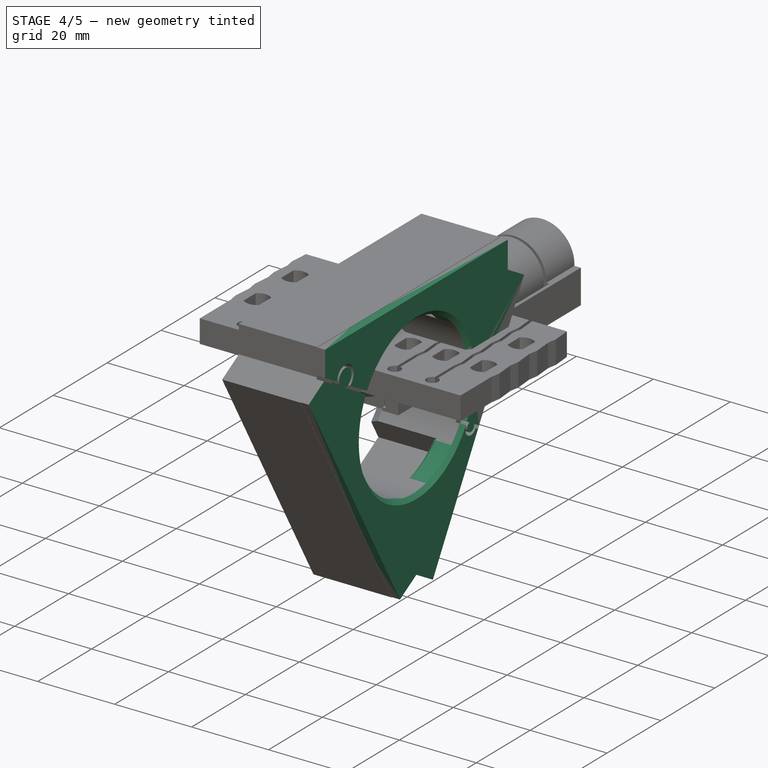
[diagram: stage 4 of 5 — iso view after this stage's code; geometry added in this stage tinted green]
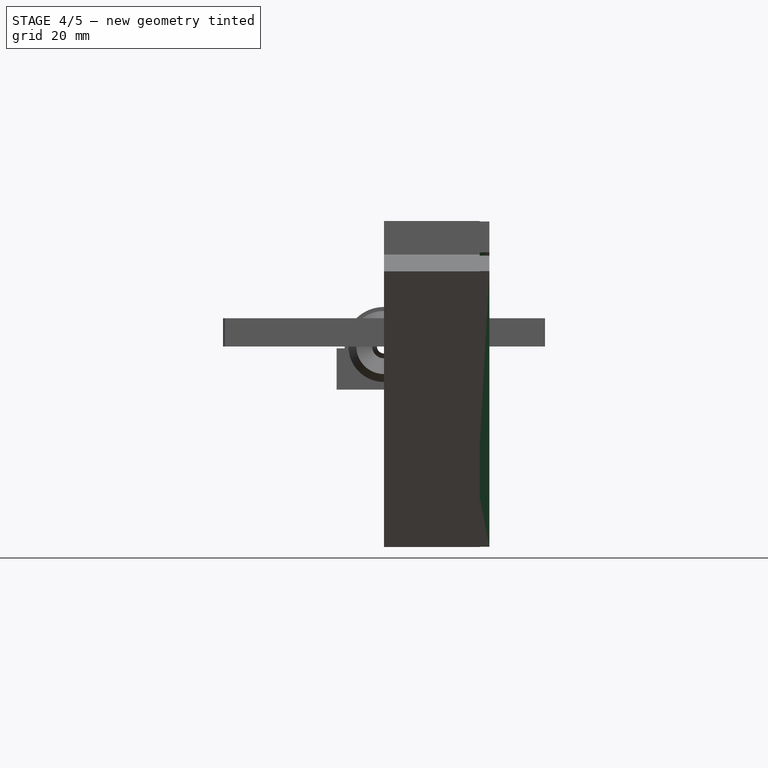
[diagram: stage 4 of 5 — front view after this stage's code; geometry added in this stage tinted green]
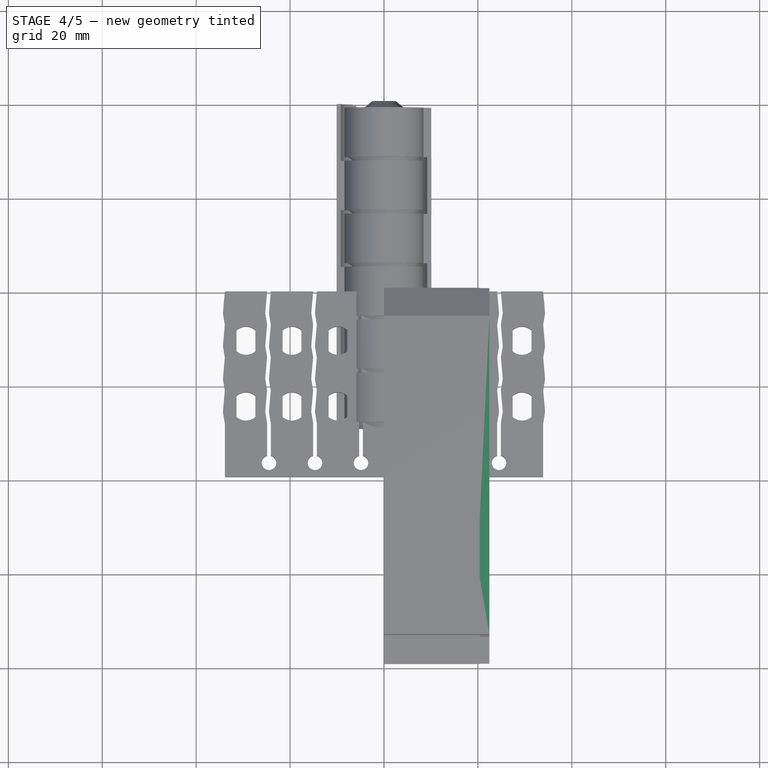
[diagram: stage 4 of 5 — top view after this stage's code; geometry added in this stage tinted green]
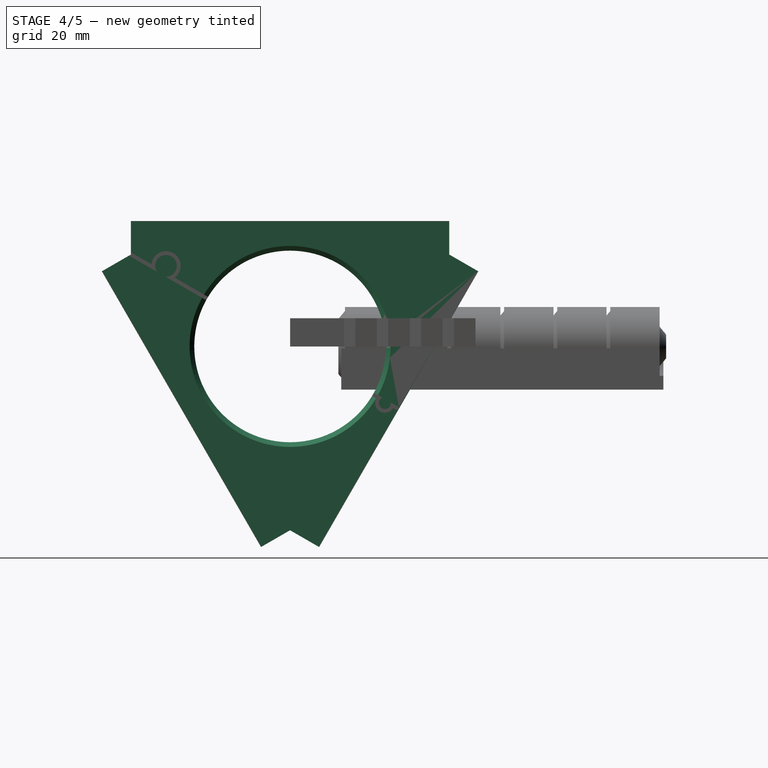
[diagram: stage 4 of 5 — right view after this stage's code; geometry added in this stage tinted green]
FEATURE [Sketcher::SketchObject] Sketch035  label="CommonFixatorScatch001"
  AttachmentOffset = pos=(0,0,16.32) rot=(0,0,1;0rad)
  FullyConstrained = false
  MapMode = 5
  Placement = pos=(16.32,-3.6e-15,3.6e-15) rot=(0.57735,0.57735,0.57735;2.0944rad)
  Support = -> [YZ_Plane013]
  expr: .AttachmentOffset.Base.z = Spreadsheet.mmFixatorHight * 0.8
  expr: Constraints[0] = Spreadsheet.mmAxisTubeDia + 2 * Spreadsheet.mmFixatorThick
  expr: Constraints[24] = Spreadsheet.mmBaseWidth
  expr: Constraints[3] = Spreadsheet.mmAxisTubeDia
  sketch-geometry (9):
    g0: Circle CenterX=0 CenterY=0 CenterZ=0 NormalX=0 NormalY=0 NormalZ=1 AngleXU=0 Radius=26.62
    g1: LineSegment StartX=0 StartY=0 StartZ=0 EndX=49.303 EndY=28.4651 EndZ=0
    g2: ArcOfCircle CenterX=0 CenterY=0 CenterZ=0 NormalX=0 NormalY=0 NormalZ=1 AngleXU=0 Radius=20.4 StartAngle=4.71235 EndAngle=6.7955
    g3: LineSegment StartX=0 StartY=-20.4 StartZ=0 EndX=0 EndY=-39.1443 EndZ=0
    g4: LineSegment StartX=0 StartY=-39.1443 StartZ=0 EndX=6.1036 EndY=-42.6683 EndZ=0
    g5: LineSegment StartX=6.1036 StartY=-42.6683 StartZ=0 EndX=40.0036 EndY=16.0483 EndZ=0
    g6: LineSegment StartX=40.0036 StartY=16.0483 StartZ=0 EndX=33.9 EndY=19.5722 EndZ=0
    g7: LineSegment StartX=33.9 StartY=19.5722 StartZ=0 EndX=17.6669 EndY=10.2 EndZ=0
    g8: ArcOfCircle CenterX=0 CenterY=0 CenterZ=0 NormalX=0 NormalY=0 NormalZ=1 AngleXU=0 Radius=20.4 StartAngle=4.71239 EndAngle=6.80678
  constraints (25):
    c: Diameter(g0) = 53.24
    c: Angle(g-1,g1) = 0.523599
    c: PointOnObject(g6,g1)
    c: Diameter(g2) = 40.8
    c: Vertical(g3)
    c: Coincident(g3,g4)
    c: Coincident(g4,g5)
    c: Coincident(g5,g6)
    c: Coincident(g6,g7)
    c: PointOnObject(g3,g-2)
    c: Parallel(g4,g6)
    c: Perpendicular(g5,g4)
    c: Tangent(g0,g5)
    c: PointOnObject(g8,g1)
    c: Coincident(g8,g7)
    c: PointOnObject(g8,g-2)
    c: PointOnObject(g8,g-1)
    c: PointOnObject(g8,g2)
    c: Coincident(g3,g8)
    c: Equal(g4,g6)
    c: Equal(g7,g3)
    c: Coincident(g2,g1)
    c: Coincident(g8,g1)
    c: Coincident(g8,g0)
    c: Distance(g4,g5) = 67.8
FEATURE [PartDesign::Pad] Pad013  label="AxisFixatorBodyPad001"
  Direction = (1,-2e-16,3e-16)
  Length = 6.12
  Length2 = 10
  Placement = pos=(0,0,0) rot=(0.57735,0.57735,0.57735;2.0944rad)
  Profile = -> Sketch035
  ReferenceAxis = -> Sketch035 [N_Axis]
  Type = 0
  expr: Length = Spreadsheet.mmFixatorHight * 0.3
FEATURE [Sketcher::SketchObject] Sketch038  label="MaxPetalBase004"
  FullyConstrained = false
  MapMode = 5
  Placement = pos=(0,0,0) rot=(0.57735,0.57735,0.57735;2.0944rad)
  Support = -> [YZ_Plane013]
  expr: Constraints[0] = Spreadsheet.mmAxisTubeDia + 2 * Spreadsheet.mmFixatorThick
  expr: Constraints[10] = Spreadsheet.mmAxisTubeDia
  expr: Constraints[15] = Spreadsheet.mmPetalPocketWidth
  expr: Constraints[1] = Spreadsheet.mmAxisTubeDia
  expr: Constraints[6] = Spreadsheet.mmAxisTubeDia * 2
  sketch-geometry (7):
    g0: Circle CenterX=0 CenterY=2.5e-15 CenterZ=0 NormalX=0 NormalY=0 NormalZ=1 AngleXU=0 Radius=39.855
    g1: Circle CenterX=0 CenterY=-1.1e-15 CenterZ=0 NormalX=0 NormalY=0 NormalZ=1 AngleXU=0 Radius=26.62
    g2: ArcOfCircle CenterX=0 CenterY=2.5e-15 CenterZ=0 NormalX=0 NormalY=0 NormalZ=1 AngleXU=0 Radius=20.4 StartAngle=5.6709 EndAngle=6.80795
    g3: LineSegment StartX=19.5933 StartY=5.67991 StartZ=0 EndX=81.6 EndY=5.67991 EndZ=0
    g4: LineSegment StartX=81.6 StartY=5.67991 StartZ=0 EndX=81.6 EndY=-5.67991 EndZ=0
    g5: LineSegment StartX=81.6 StartY=-5.67991 StartZ=0 EndX=19.5933 EndY=-5.67991 EndZ=0
    g6: ArcOfCircle CenterX=0 CenterY=2.5e-15 CenterZ=0 NormalX=0 NormalY=0 NormalZ=1 AngleXU=0 Radius=20.4 StartAngle=6.00103 EndAngle=6.56534
  constraints (16):
    c: Diameter(g1) = 53.24
    c: Diameter(g2) = 40.8
    c: Coincident(g3,g4)
    c: Coincident(g4,g5)
    c: Coincident(g0,g2)
    c: Vertical(g4)
    c: DistanceX(g-1,g4) = 81.6
    c: Coincident(g6,g0)
    c: Coincident(g6,g3)
    c: Coincident(g6,g5)
    c: Diameter(g6) = 40.8
    c: Horizontal(g3)
    c: Horizontal(g5)
    c: PointOnObject(g6,g-2)
    c: Symmetric(g3,g5,g-1)
    c: DistanceY(g5,g3) = 11.3598
FEATURE [Sketcher::SketchObject] Sketch039  label="MinPetalBase003"
  AttachmentOffset = pos=(0,0,20.4) rot=(0,0,1;0rad)
  FullyConstrained = false
  MapMode = 5
  Placement = pos=(20.4,-4.5e-15,4.5e-15) rot=(0.57735,0.57735,0.57735;2.0944rad)
  Support = -> [YZ_Plane013]
  expr: .AttachmentOffset.Base.z = Spreadsheet.mmFixatorHight
  expr: Constraints[0] = Spreadsheet.mmAxisTubeDia + 2 * Spreadsheet.mmFixatorThick
  expr: Constraints[10] = Spreadsheet.mmAxisTubeDia
  expr: Constraints[11] = Spreadsheet.mmPetalPocketWidth
  expr: Constraints[1] = Spreadsheet.mmAxisTubeDia
  expr: Constraints[6] = Spreadsheet.mmAxisTubeDia * 2
  sketch-geometry (7):
    g0: Circle CenterX=0 CenterY=2.1e-15 CenterZ=0 NormalX=0 NormalY=0 NormalZ=1 AngleXU=0 Radius=39.844
    g1: Circle CenterX=0 CenterY=2.1e-15 CenterZ=0 NormalX=0 NormalY=0 NormalZ=1 AngleXU=0 Radius=26.62
    g2: ArcOfCircle CenterX=0 CenterY=2.1e-15 CenterZ=0 NormalX=0 NormalY=0 NormalZ=1 AngleXU=0 Radius=20.4 StartAngle=3.90517 EndAngle=6.76925
    g3: LineSegment StartX=19.5933 StartY=5.67991 StartZ=0 EndX=81.6 EndY=5.67991 EndZ=0
    g4: LineSegment StartX=81.6 StartY=5.67991 StartZ=0 EndX=81.6 EndY=-5.67991 EndZ=0
    g5: LineSegment StartX=81.6 StartY=-5.67991 StartZ=0 EndX=19.5933 EndY=-5.67991 EndZ=0
    g6: ArcOfCircle CenterX=0 CenterY=2.1e-15 CenterZ=0 NormalX=0 NormalY=0 NormalZ=1 AngleXU=0 Radius=20.4 StartAngle=6.00103 EndAngle=6.56534
  constraints (17):
    c: Diameter(g1) = 53.24
    c: Diameter(g2) = 40.8
    c: Coincident(g3,g4)
    c: Coincident(g4,g5)
    c: Coincident(g0,g2)
    c: Vertical(g4)
    c: DistanceX(g-1,g4) = 81.6
    c: Coincident(g6,g0)
    c: Coincident(g6,g3)
    c: Coincident(g6,g5)
    c: Diameter(g6) = 40.8
    c: DistanceY(g5,g3) = 11.3598
    c: Symmetric(g3,g5,g-1)
    c: Coincident(g1,g6)
    c: Coincident(g-1,g6)
    c: Horizontal(g3)
    c: Horizontal(g5)
FEATURE [PartDesign::SubtractiveLoft] SubtractiveLoft001  label="PetalBodySubtractiveLoft001"
  BaseFeature = -> Pad013
  Closed = false
  Placement = pos=(0,0,0) rot=(0.57735,0.57735,0.57735;2.0944rad)
  Profile = -> Sketch038
  Ruled = false
  Sections = -> [Sketch039]
FEATURE [PartDesign::PolarPattern] PolarPattern001  label="ExisFixatorBodyPolarPattern001"
  Angle = 360
  Axis = -> Sketch035 [N_Axis]
  BaseFeature = -> SubtractiveLoft001
  Occurrences = 3
  Originals = -> [Pad013,SubtractiveLoft001]
  Placement = pos=(0,0,0) rot=(0.57735,0.57735,0.57735;2.0944rad)
FEATURE [Sketcher::SketchObject] Sketch040  label="CommonFixatorScatch002"
  AttachmentOffset = pos=(0,0,16.32) rot=(0,0,1;0rad)
  FullyConstrained = true
  MapMode = 5
  Placement = pos=(16.32,-3.6e-15,3.6e-15) rot=(0.57735,0.57735,0.57735;2.0944rad)
  Support = -> [YZ_Plane013]
  expr: .AttachmentOffset.Base.z = Spreadsheet.mmFixatorHight * 0.8
  expr: Constraints[11] = Spreadsheet.mmAxisTubeDia * 2
  expr: Constraints[14] = Spreadsheet.mmTemplatePartsConnectorDia - 2 * Spreadsheet.mmAirSpace
  expr: Constraints[15] = Spreadsheet.mmTemplatePartsConnectorDia * 3 / 2
  expr: Constraints[1] = Spreadsheet.mmAxisTubeDia + 2 * Spreadsheet.mmFixatorThick
  expr: Constraints[27] = Spreadsheet.mmAirSpace
  expr: Constraints[33] = Spreadsheet.mmTemplatePartsConnectorDia / 3
  expr: Constraints[41] = Spreadsheet.mmTemplatePartsConnectorDia
  expr: Constraints[43] = Spreadsheet.mmTemplatePartsConnectorDia * 2 / 3
  expr: Constraints[45] = Spreadsheet.mmTemplatePartsConnectorDia * 2 / 3 - 2 * Spreadsheet.mmAirSpace
  expr: Constraints[52] = Spreadsheet.mmTemplatePartsConnectorDia / 3
  expr: Constraints[55] = Spreadsheet.mmTemplatePartsConnectorDia / 2
  sketch-geometry (19):
    g0: Circle CenterX=0 CenterY=0 CenterZ=0 NormalX=0 NormalY=0 NormalZ=1 AngleXU=0 Radius=40.8
    g1: Circle CenterX=0 CenterY=0 CenterZ=0 NormalX=0 NormalY=0 NormalZ=1 AngleXU=0 Radius=26.62
    g2: LineSegment StartX=-35.5321 StartY=20.0526 StartZ=0 EndX=-28.3499 EndY=15.9059 EndZ=0
    g3: LineSegment StartX=22.767 StartY=-13.6064 StartZ=0 EndX=23.167 EndY=-12.9136 EndZ=0
    g4: LineSegment StartX=23.167 StartY=-12.9136 StartZ=0 EndX=21.4554 EndY=-11.9254 EndZ=0
    g5: LineSegment StartX=-35.1321 StartY=20.7454 StartZ=0 EndX=-35.5321 EndY=20.0526 EndZ=0
    g6: LineSegment StartX=23.0536 StartY=-13.31 StartZ=0 EndX=-35.3338 EndY=20.4 EndZ=0
    g7: ArcOfCircle CenterX=-26.42 CenterY=17.1754 CenterZ=0 NormalX=0 NormalY=0 NormalZ=1 AngleXU=0 Radius=2.31 StartAngle=4.65418 EndAngle=10.0066
    g8: LineSegment StartX=-26.5543 StartY=14.8693 StartZ=0 EndX=18.3629 EndY=-11.0637 EndZ=0
    g9: LineSegment StartX=-29.5129 StartY=17.5011 StartZ=0 EndX=-35.1321 EndY=20.7454 EndZ=0
    g10: LineSegment StartX=-35.1321 StartY=20.7454 StartZ=0 EndX=-35.5321 EndY=20.0526 EndZ=0
    g11: LineSegment StartX=-35.5321 StartY=20.0526 StartZ=0 EndX=22.851 EndY=-13.6549 EndZ=0
    g12: LineSegment StartX=22.851 StartY=-13.6549 StartZ=0 EndX=23.251 EndY=-12.9621 EndZ=0
    g13: LineSegment StartX=23.251 StartY=-12.9621 StartZ=0 EndX=-35.1321 EndY=20.7454 EndZ=0
    g14: ArcOfCircle CenterX=-26.42 CenterY=17.1754 CenterZ=0 NormalX=0 NormalY=0 NormalZ=1 AngleXU=0 Radius=3.11 StartAngle=5.34093 EndAngle=9.31984
    g15: ArcOfCircle CenterX=20.188 CenterY=-12.0474 CenterZ=0 NormalX=0 NormalY=0 NormalZ=1 AngleXU=0 Radius=2.07333 StartAngle=2.64723 EndAngle=5.73035
    g16: ArcOfCircle CenterX=20.188 CenterY=-12.0474 CenterZ=0 NormalX=0 NormalY=0 NormalZ=1 AngleXU=0 Radius=1.27333 StartAngle=1.99844 EndAngle=6.37914
    g17: LineSegment StartX=21.9524 StartY=-13.1361 StartZ=0 EndX=22.767 EndY=-13.6064 EndZ=0
    g18: LineSegment StartX=19.6599 StartY=-10.8888 StartZ=0 EndX=-24.5914 EndY=14.6597 EndZ=0
  constraints (56):
    c: PointOnObject(g6,g0)
    c: Diameter(g1) = 53.24
    c: Coincident(g0,g1)
    c: Coincident(g0,g-1)
    c: Coincident(g3,g4)
    c: Coincident(g9,g5)
    c: Coincident(g5,g2)
    c: Perpendicular(g3,g2)
    c: Symmetric(g2,g9,g6)
    c: Symmetric(g17,g3,g6)
    c: PointOnObject(g0,g6)
    c: Diameter(g0) = 81.6
    c: PointOnObject(g6,g1)
    c: Angle(g-1,g6) = 2.61799
    c: Diameter(g7) = 4.62
    c: Distance(g7,g5) = 9.33
    c: Parallel(g9,g4)
    c: Parallel(g2,g8)
    c: Coincident(g10,g11)
    c: Coincident(g11,g12)
    c: Coincident(g12,g13)
    c: Coincident(g13,g10)
    c: PointOnObject(g10,g0)
    c: Symmetric(g10,g10,g6)
    c: Parallel(g6,g13)
    c: Parallel(g11,g13)
    c: Coincident(g5,g10)
    c: Distance(g3,g3) = 0.8
    c: Coincident(g3,g17)
    c: PointOnObject(g11,g1)
    c: PointOnObject(g12,g1)
    c: PointOnObject(g3,g13)
    c: Distance(g6,g3) = 0.1
    c: Distance(g2,g8) = 2.07333
    c: PointOnObject(g14,g13)
    c: PointOnObject(g14,g13)
    c: PointOnObject(g18,g14)
    c: PointOnObject(g9,g14)
    c: Coincident(g7,g8)
    c: Coincident(g7,g2)
    c: Coincident(g14,g7)
    c: Diameter(g14) = 6.22
    c: PointOnObject(g18,g13)
    c: Diameter(g15) = 4.14667
    c: Coincident(g15,g16)
    c: Diameter(g16) = 2.54667
    c: Coincident(g15,g8)
    c: PointOnObject(g8,g11)
    c: Coincident(g17,g15)
    c: PointOnObject(g15,g11)
    c: Coincident(g4,g16)
    c: Coincident(g18,g16)
    c: Distance(g16,g4) = 2.07333
    c: PointOnObject(g4,g13)
    c: PointOnObject(g16,g13)
    c: Distance(g15,g12) = 3.11
FEATURE [PartDesign::Pocket] Pocket003
  BaseFeature = -> PolarPattern001
  Direction = (-1,2e-16,-3e-16)
  Length = 40.8
  Length2 = 5
  Midplane = true
  Placement = pos=(0,0,0) rot=(0.57735,0.57735,0.57735;2.0944rad)
  Profile = -> Sketch040
  ReferenceAxis = -> Sketch040 [N_Axis]
  Type = 0
  expr: Length = Spreadsheet.mmAxisTubeDia
FEATURE [PartDesign::Body] Body007  label="AxisFixatorBody"
  Group = -> [Sketch027,Pad012,Sketch031,Sketch032,SubtractiveLoft,PolarPattern,Chamfer001]
  Origin = -> Origin013
  Tip = -> Chamfer001
FEATURE [PartDesign::Chamfer] Chamfer002
  Angle = 45
  Base = -> Pocket003 [Edge1,Edge35,Edge31,Edge98,Edge94,Edge47,Edge12]
  BaseFeature = -> Pocket003
  ChamferType = 0
  FlipDirection = false
  Placement = pos=(0,0,0) rot=(0.57735,0.57735,0.57735;2.0944rad)
  Size = 1
  Size2 = 1
  SupportTransform = false
  UseAllEdges = false
FEATURE [PartDesign::Chamfer] Chamfer003
  Angle = 45
  Base = -> Chamfer002 [Edge56,Edge17,Edge3,Edge28]
  BaseFeature = -> Chamfer002
  ChamferType = 0
  FlipDirection = false
  Placement = pos=(0,0,0) rot=(0.57735,0.57735,0.57735;2.0944rad)
  Size = 1
  Size2 = 1
  SupportTransform = false
  UseAllEdges = false
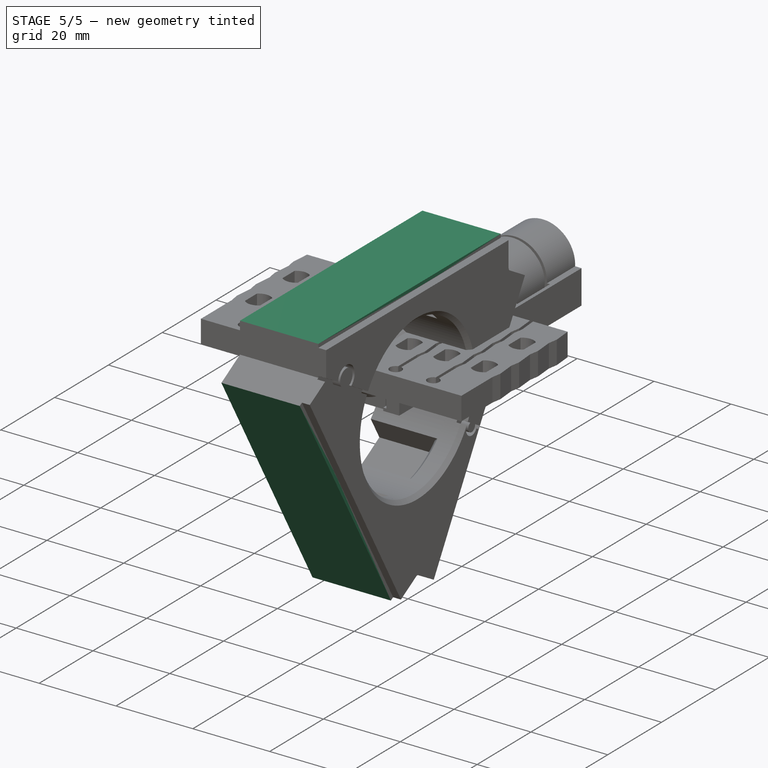
[diagram: stage 5 of 5 — iso view after this stage's code; geometry added in this stage tinted green]
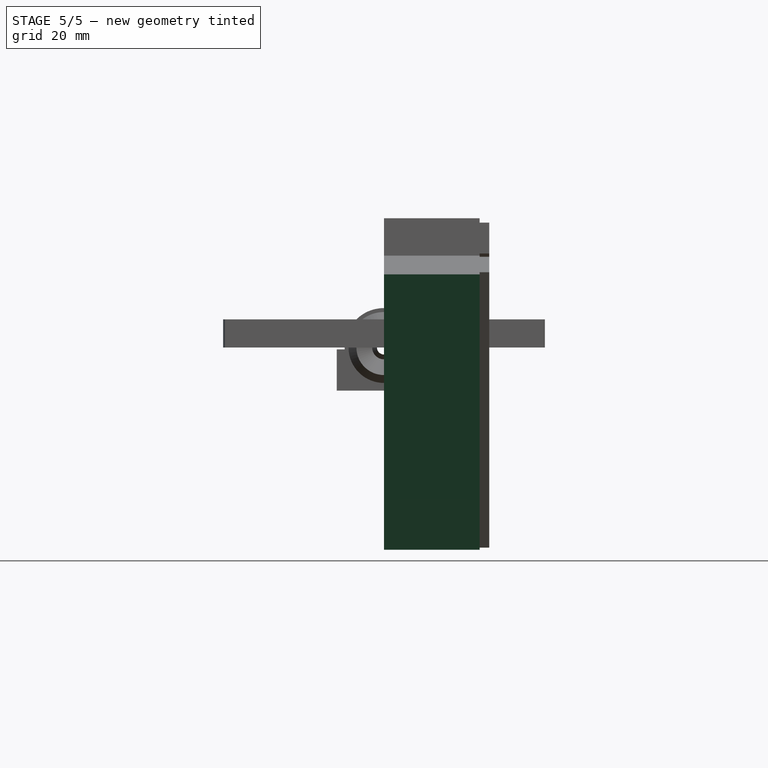
[diagram: stage 5 of 5 — front view after this stage's code; geometry added in this stage tinted green]
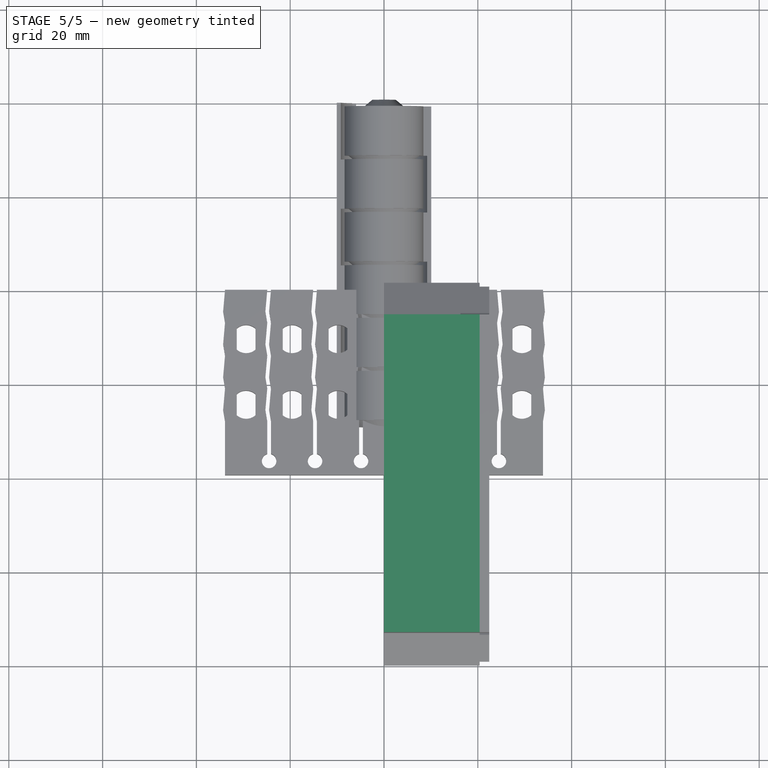
[diagram: stage 5 of 5 — top view after this stage's code; geometry added in this stage tinted green]
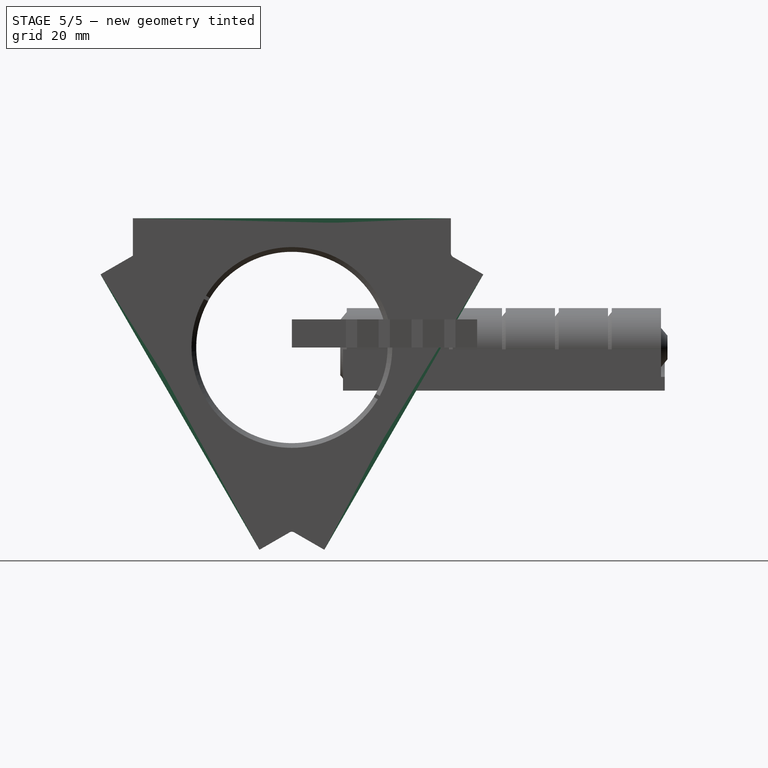
[diagram: stage 5 of 5 — right view after this stage's code; geometry added in this stage tinted green]
FEATURE [Sketcher::SketchObject] Sketch041  label="CommonFixatorScatch003"
  FullyConstrained = false
  MapMode = 5
  Placement = pos=(0,0,0) rot=(0.57735,0.57735,0.57735;2.0944rad)
  Support = -> [YZ_Plane013]
  expr: Constraints[22] = 2 * (Spreadsheet.mmAxisTubeDia / 2 + Spreadsheet.mmFixatorThick) / cos(Spreadsheet.angPetal / 2)
  expr: Constraints[23] = Spreadsheet.mmHingeHight
  expr: Constraints[31] = Spreadsheet.mmAxisTubeDia
  expr: Constraints[64] = Spreadsheet.mmPetalWidth + Spreadsheet.mmAirSpace
  expr: Constraints[67] = Spreadsheet.mmAxisTubeDia / 2 + Spreadsheet.mmPetalHightMax + Spreadsheet.mmTwoSideTapeThick + Spreadsheet.mmAirSpace
  sketch-geometry (24):
    g0: LineSegment StartX=33.9 StartY=19.5722 StartZ=0 EndX=-33.9 EndY=19.5722 EndZ=0
    g1: LineSegment StartX=-33.9 StartY=19.5722 StartZ=0 EndX=0 EndY=-39.1443 EndZ=0
    g2: LineSegment StartX=0 StartY=-39.1443 StartZ=0 EndX=33.9 EndY=19.5722 EndZ=0
    g3: Circle CenterX=0 CenterY=0 CenterZ=0 NormalX=0 NormalY=0 NormalZ=1 AngleXU=0 Radius=39.1443
    g4: LineSegment StartX=-23.8668 StartY=13.7795 StartZ=0 EndX=-23.8668 EndY=-13.7795 EndZ=0
    g5: LineSegment StartX=-23.8668 StartY=-13.7795 StartZ=0 EndX=0 EndY=-27.5591 EndZ=0
    g6: LineSegment StartX=0 StartY=-27.5591 StartZ=0 EndX=23.8668 EndY=-13.7795 EndZ=0
    g7: LineSegment StartX=23.8668 StartY=-13.7795 StartZ=0 EndX=23.8668 EndY=13.7795 EndZ=0
    g8: LineSegment StartX=23.8668 StartY=13.7795 StartZ=0 EndX=0 EndY=27.5591 EndZ=0
    g9: LineSegment StartX=-1e-16 StartY=27.5591 StartZ=0 EndX=-23.8668 EndY=13.7795 EndZ=0
    g10: Circle CenterX=0 CenterY=0 CenterZ=0 NormalX=0 NormalY=0 NormalZ=1 AngleXU=0 Radius=27.5591
    g11: LineSegment StartX=0 StartY=0 StartZ=0 EndX=33.9 EndY=19.5722 EndZ=0
    g12: ArcOfCircle CenterX=0 CenterY=0 CenterZ=0 NormalX=0 NormalY=0 NormalZ=1 AngleXU=0 Radius=20.4 StartAngle=4.5996 EndAngle=6.79538
    g13: LineSegment StartX=0 StartY=-20.4 StartZ=0 EndX=0 EndY=-39.1443 EndZ=0
    g14: LineSegment StartX=0 StartY=-39.1443 StartZ=0 EndX=6.91684 EndY=-43.1378 EndZ=0
    g15: LineSegment StartX=6.91684 StartY=-43.1378 StartZ=0 EndX=40.8168 EndY=15.5787 EndZ=0
    g16: LineSegment StartX=40.8168 StartY=15.5787 StartZ=0 EndX=33.9 EndY=19.5722 EndZ=0
    g17: LineSegment StartX=33.9 StartY=19.5722 StartZ=0 EndX=17.6669 EndY=10.2 EndZ=0
    g18: LineSegment StartX=14.7156 StartY=-14.1284 StartZ=0 EndX=18.6289 EndY=-20.9065 EndZ=0
    g19: LineSegment StartX=18.6289 StartY=-20.9065 StartZ=0 EndX=8.79105 EndY=-26.5864 EndZ=0
    g20: LineSegment StartX=8.79105 StartY=-26.5864 StartZ=0 EndX=4.87772 EndY=-19.8083 EndZ=0
    g21: ArcOfCircle CenterX=0 CenterY=0 CenterZ=0 NormalX=0 NormalY=0 NormalZ=1 AngleXU=0 Radius=20.4 StartAngle=4.71239 EndAngle=4.95383
    g22: ArcOfCircle CenterX=0 CenterY=0 CenterZ=0 NormalX=0 NormalY=0 NormalZ=1 AngleXU=0 Radius=20.4 StartAngle=5.51814 EndAngle=6.80678
    g23: LineSegment StartX=0 StartY=0 StartZ=0 EndX=19.5722 EndY=-33.9 EndZ=0
  constraints (64):
    c: Coincident(g0,g1)
    c: Coincident(g1,g2)
    c: Coincident(g2,g0)
    c: Equal(g0,g1)
    c: Equal(g0,g2)
    c: PointOnObject(g0,g3)
    c: Coincident(g4,g5)
    c: Coincident(g5,g6)
    c: Coincident(g6,g7)
    c: Coincident(g7,g8)
    c: Coincident(g8,g9)
    c: Coincident(g9,g4)
    c: Equal(g4, g5-g9) x5
    c: PointOnObject(g4,g10)
    c: PointOnObject(g5,g10)
    c: PointOnObject(g6,g10)
    c: PointOnObject(g7,g10)
    c: PointOnObject(g8,g10)
    c: Diameter(g10) = 55.1181
    c: Distance(g2) = 67.8
    c: PointOnObject(g5,g-2)
    c: PointOnObject(g4,g10)
    c: Angle(g-1,g11) = 0.523599
    c: Coincident(g3,g10)
    c: Coincident(g3,g11)
    c: Coincident(g3,g-1)
    c: PointOnObject(g0,g11)
    c: Diameter(g12) = 40.8
    c: Coincident(g12,g3)
    c: Vertical(g13)
    c: Coincident(g13,g14)
    c: Coincident(g14,g15)
    c: Coincident(g15,g16)
    c: Coincident(g16,g17)
    c: Coincident(g19,g20)
    c: Coincident(g1,g13)
    c: Coincident(g0,g16)
    c: Equal(g12,g21)
    c: Coincident(g12,g21)
    c: PointOnObject(g13,g-2)
    c: PointOnObject(g13,g3)
    c: Parallel(g2,g15)
    c: Parallel(g14,g16)
    c: Perpendicular(g15,g14)
    c: Tangent(g10,g15)
    c: PointOnObject(g11,g3)
    c: Coincident(g21,g22)
    c: PointOnObject(g17,g11)
    c: Coincident(g20,g21)
    c: Coincident(g21,g13)
    c: Coincident(g22,g18)
    c: PointOnObject(g22,g11)
    c: Coincident(g22,g17)
    c: PointOnObject(g17,g11)
    c: Perpendicular(g20,g19)
    c: Perpendicular(g19,g18)
    c: Coincident(g23,g21)
    c: Angle(g23,g-2) = 2.61799
    c: PointOnObject(g23,g3)
    c: Symmetric(g20,g18,g23)
    c: Distance(g20,g18) = 11.3598
    c: Perpendicular(g23,g19)
    c: Coincident(g18,g19)
    c: Distance(g21,g19) = 27.42
FEATURE [PartDesign::Pad] Pad014  label="AxisFixatorBodyPad002"
  Direction = (1,-2e-16,3e-16)
  Length = 20.4
  Length2 = 10
  Placement = pos=(0,0,0) rot=(0.57735,0.57735,0.57735;2.0944rad)
  Profile = -> Sketch041
  ReferenceAxis = -> Sketch041 [N_Axis]
  Type = 0
  expr: Length = Spreadsheet.mmFixatorHight
FEATURE [Sketcher::SketchObject] Sketch044  label="MaxPetalBase006"
  FullyConstrained = false
  MapMode = 5
  Placement = pos=(0,0,0) rot=(0.57735,0.57735,0.57735;2.0944rad)
  Support = -> [YZ_Plane013]
  expr: Constraints[0] = Spreadsheet.mmAxisTubeDia + 2 * Spreadsheet.mmFixatorThick
  expr: Constraints[14] = Spreadsheet.mmPetalWidth + Spreadsheet.mmAirSpace
  expr: Constraints[1] = Spreadsheet.mmAxisTubeDia
  expr: Constraints[5] = Spreadsheet.mmAxisTubeDia / 2 + Spreadsheet.mmPetalHightMax
  expr: Constraints[9] = Spreadsheet.mmAxisTubeDia
  sketch-geometry (7):
    g0: Circle CenterX=0 CenterY=0 CenterZ=0 NormalX=0 NormalY=0 NormalZ=1 AngleXU=0 Radius=39.855
    g1: Circle CenterX=0 CenterY=0 CenterZ=0 NormalX=0 NormalY=0 NormalZ=1 AngleXU=0 Radius=26.62
    g2: ArcOfCircle CenterX=0 CenterY=0 CenterZ=0 NormalX=0 NormalY=0 NormalZ=1 AngleXU=0 Radius=20.4 StartAngle=5.86249 EndAngle=6.74499
    g3: LineSegment StartX=19.5933 StartY=5.67991 StartZ=0 EndX=26.52 EndY=5.67991 EndZ=0
    g4: LineSegment StartX=26.52 StartY=5.67991 StartZ=0 EndX=26.52 EndY=-5.67991 EndZ=0
    g5: LineSegment StartX=26.52 StartY=-5.67991 StartZ=0 EndX=19.5933 EndY=-5.67991 EndZ=0
    g6: ArcOfCircle CenterX=0 CenterY=0 CenterZ=0 NormalX=0 NormalY=0 NormalZ=1 AngleXU=0 Radius=20.4 StartAngle=6.00103 EndAngle=6.56534
  constraints (22):
    c: Diameter(g1) = 53.24
    c: Diameter(g2) = 40.8
    c: Coincident(g3,g4)
    c: Coincident(g4,g5)
    c: Coincident(g0,g2)
    c: DistanceX(g-1,g4) = 26.52
    c: Coincident(g6,g0)
    c: Coincident(g6,g3)
    c: Coincident(g6,g5)
    c: Diameter(g6) = 40.8
    c: Coincident(g6,g-1)
    c: Symmetric(g3,g5,g-1)
    c: Horizontal(g5)
    c: Horizontal(g3)
    c: DistanceY(g5,g3) = 11.3598
    c: Coincident(g6,g1)
    c: PointOnObject(g6,g-2)
    c: PointOnObject(g6,g-1)
    c: PointOnObject(g6,g5)
    c: PointOnObject(g6,g3)
    c: PointOnObject(g3,g6)
    c: Vertical(g4)
FEATURE [Sketcher::SketchObject] Sketch045  label="MinPetalBase005"
  AttachmentOffset = pos=(0,0,18.36) rot=(0,0,1;0rad)
  FullyConstrained = false
  MapMode = 5
  Placement = pos=(18.36,-4.1e-15,4.1e-15) rot=(0.57735,0.57735,0.57735;2.0944rad)
  Support = -> [YZ_Plane013]
  expr: .AttachmentOffset.Base.z = Spreadsheet.mmFixatorHight * 0.9
  expr: Constraints[0] = Spreadsheet.mmAxisTubeDia + 2 * Spreadsheet.mmFixatorThick
  expr: Constraints[10] = Spreadsheet.mmAxisTubeDia
  expr: Constraints[12] = Spreadsheet.mmPetalWidth + Spreadsheet.mmAirSpace
  expr: Constraints[1] = Spreadsheet.mmAxisTubeDia
  expr: Constraints[6] = Spreadsheet.mmAxisTubeDia / 2 + Spreadsheet.mmPetalHightMin
  sketch-geometry (7):
    g0: Circle CenterX=0 CenterY=2.3e-15 CenterZ=0 NormalX=0 NormalY=0 NormalZ=1 AngleXU=0 Radius=39.844
    g1: Circle CenterX=0 CenterY=2.3e-15 CenterZ=0 NormalX=0 NormalY=0 NormalZ=1 AngleXU=0 Radius=26.62
    g2: ArcOfCircle CenterX=0 CenterY=2.3e-15 CenterZ=0 NormalX=0 NormalY=0 NormalZ=1 AngleXU=0 Radius=20.4 StartAngle=3.8687 EndAngle=6.82101
    g3: LineSegment StartX=19.5933 StartY=5.67991 StartZ=0 EndX=23.46 EndY=5.67991 EndZ=0
    g4: LineSegment StartX=23.46 StartY=5.67991 StartZ=0 EndX=23.46 EndY=-5.67991 EndZ=0
    g5: LineSegment StartX=23.46 StartY=-5.67991 StartZ=0 EndX=19.5933 EndY=-5.67991 EndZ=0
    g6: ArcOfCircle CenterX=0 CenterY=2.3e-15 CenterZ=0 NormalX=0 NormalY=0 NormalZ=1 AngleXU=0 Radius=20.4 StartAngle=6.00103 EndAngle=6.56534
  constraints (17):
    c: Diameter(g1) = 53.24
    c: Diameter(g2) = 40.8
    c: Coincident(g3,g4)
    c: Coincident(g4,g5)
    c: Coincident(g0,g2)
    c: Vertical(g4)
    c: DistanceX(g-1,g4) = 23.46
    c: Coincident(g6,g0)
    c: Coincident(g6,g3)
    c: Coincident(g6,g5)
    c: Diameter(g6) = 40.8
    c: Symmetric(g3,g5,g-1)
    c: DistanceY(g5,g3) = 11.3598
    c: Horizontal(g3)
    c: Horizontal(g5)
    c: Coincident(g6,g1)
    c: Coincident(g6,g-1)
FEATURE [PartDesign::SubtractiveLoft] SubtractiveLoft002  label="PetalBodySubtractiveLoft002"
  BaseFeature = -> Pad014
  Closed = false
  Placement = pos=(0,0,0) rot=(0.57735,0.57735,0.57735;2.0944rad)
  Profile = -> Sketch044
  Ruled = false
  Sections = -> [Sketch045]
FEATURE [PartDesign::PolarPattern] PolarPattern002  label="ExisFixatorBodyPolarPattern002"
  Angle = 360
  Axis = -> Sketch041 [N_Axis]
  BaseFeature = -> SubtractiveLoft002
  Occurrences = 3
  Originals = -> [Pad014,SubtractiveLoft002]
  Placement = pos=(0,0,0) rot=(0.57735,0.57735,0.57735;2.0944rad)
FEATURE [PartDesign::Body] Body011  label="AxisFixatorBody001"
  Group = -> [Sketch041,Pad014,Sketch044,Sketch045,SubtractiveLoft002,PolarPattern002]
  Origin = -> Origin021
  Tip = -> PolarPattern002
FEATURE [PartDesign::CoordinateSystem] BottomCenterSide_004
  AttacherType = Attacher::AttachEngine3D
  AttachmentOffset = pos=(-10.2,0,0) rot=(0.707107,0,0.707107;3.14159rad)
  MapMode = 45
  Placement = pos=(-8.9e-15,4.7e-15,27.5591) rot=(0.707107,0,0.707107;3.14159rad)
  Support = -> [PolarPattern002]
  expr: .AttachmentOffset.Base.x = -Spreadsheet.mmFixatorHight / 2
FEATURE [PartDesign::CoordinateSystem] BottomCenterSide_005
  AttacherType = Attacher::AttachEngine3D
  AttachmentOffset = pos=(-10.2,0,0) rot=(0,1,0;1.5708rad)
  MapMode = 45
  Placement = pos=(-5.3e-15,-23.8668,-13.7795) rot=(-0.447214,0.774597,-0.447214;1.82348rad)
  Support = -> [PolarPattern002]
  expr: .AttachmentOffset.Base.x = -Spreadsheet.mmFixatorHight / 2
FEATURE [PartDesign::CoordinateSystem] BottomCenterSide_006
  AttacherType = Attacher::AttachEngine3D
  AttachmentOffset = pos=(-10.2,0,0) rot=(0.707107,0,0.707107;3.14159rad)
  MapMode = 45
  Placement = pos=(1.24e-14,23.8668,-13.7795) rot=(-0.447214,-0.774597,-0.447214;4.45971rad)
  Support = -> [PolarPattern002]
  expr: .AttachmentOffset.Base.x = -Spreadsheet.mmFixatorHight / 2
FEATURE [App::Part] Part006  label="AxisFixatorAbsolete"
  Group = -> [Body011,BottomCenterSide_004,BottomCenterSide_005,BottomCenterSide_006]
  Origin = -> Origin020
FEATURE [PartDesign::Chamfer] Chamfer
  Angle = 45
  Base = -> AdditiveLoft [Edge8,Edge9,Edge6,Edge3,Edge2,Edge1,Edge11,Edge5]
  BaseFeature = -> AdditiveLoft
  ChamferType = 0
  FlipDirection = false
  Placement = pos=(0,0,0) rot=(0.57735,0.57735,0.57735;2.0944rad)
  Size = 1
  Size2 = 1
  SupportTransform = false
  UseAllEdges = false
FEATURE [PartDesign::Chamfer] Chamfer004
  Angle = 45
  Base = -> Chamfer003 [Edge56,Edge61,Edge130,Edge128,Edge73,Edge75]
  BaseFeature = -> Chamfer003
  ChamferType = 0
  FlipDirection = false
  Placement = pos=(0,0,0) rot=(0.57735,0.57735,0.57735;2.0944rad)
  Size = 1
  Size2 = 1
  SupportTransform = false
  UseAllEdges = false
FEATURE [PartDesign::Fillet] Fillet
  Base = -> Chamfer004 [Edge66,Edge26]
  BaseFeature = -> Chamfer004
  Placement = pos=(0,0,0) rot=(0.57735,0.57735,0.57735;2.0944rad)
  Radius = 1
  SupportTransform = false
  UseAllEdges = false
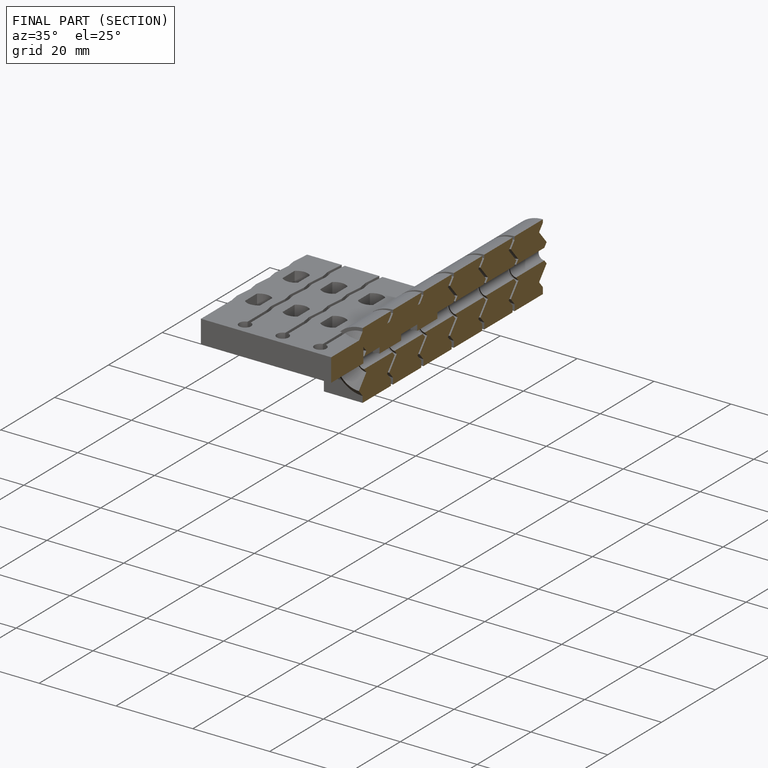
[diagram: finished part — half-section view (interior)]
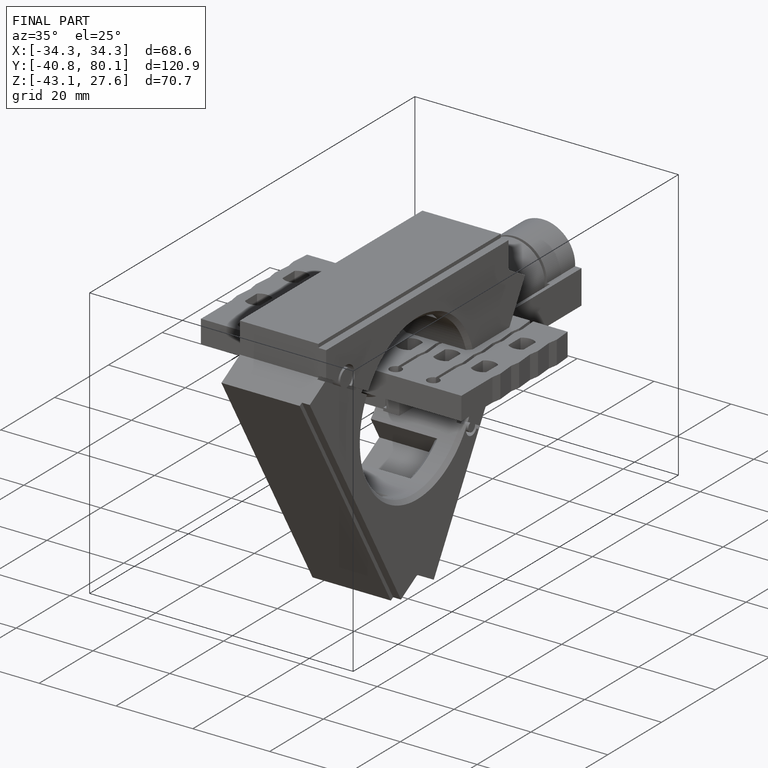
[diagram: finished part — iso view with bounding-box wireframe]
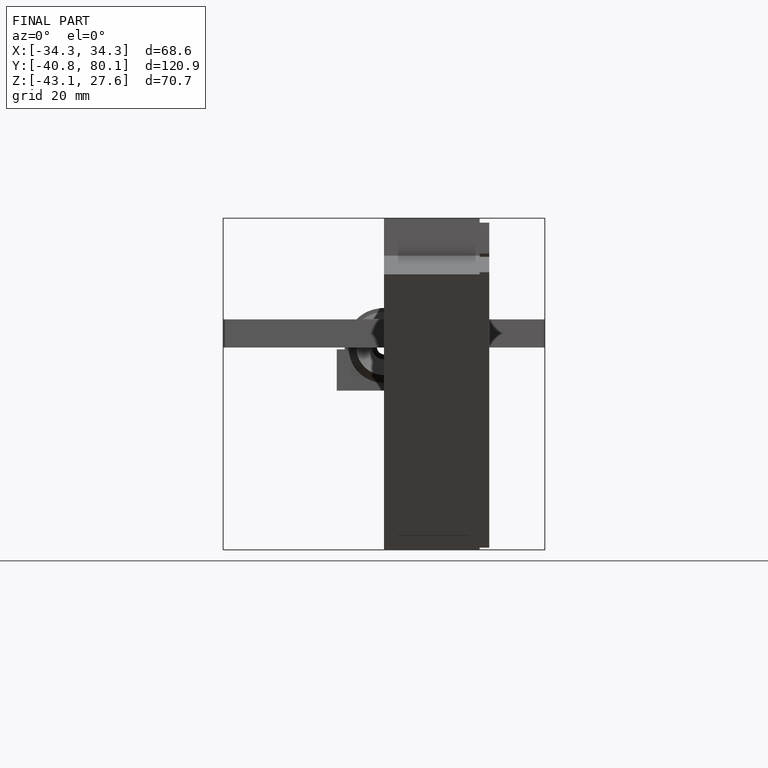
[diagram: finished part — front view with bounding-box wireframe]
